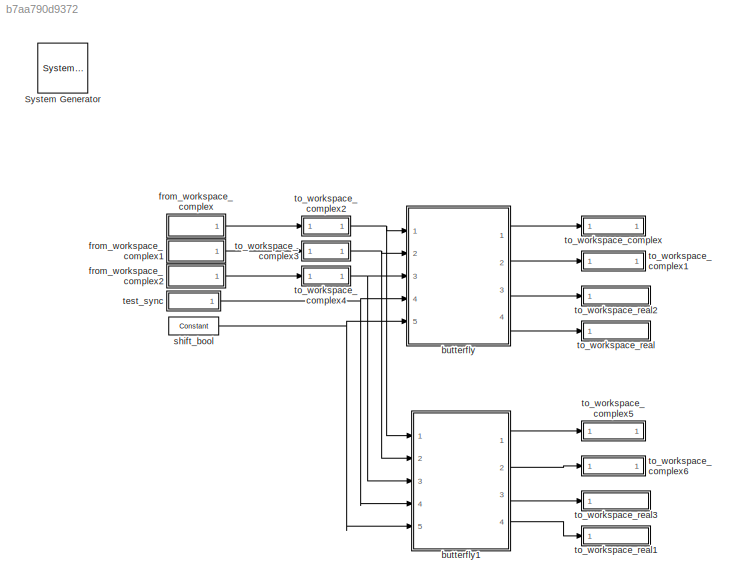
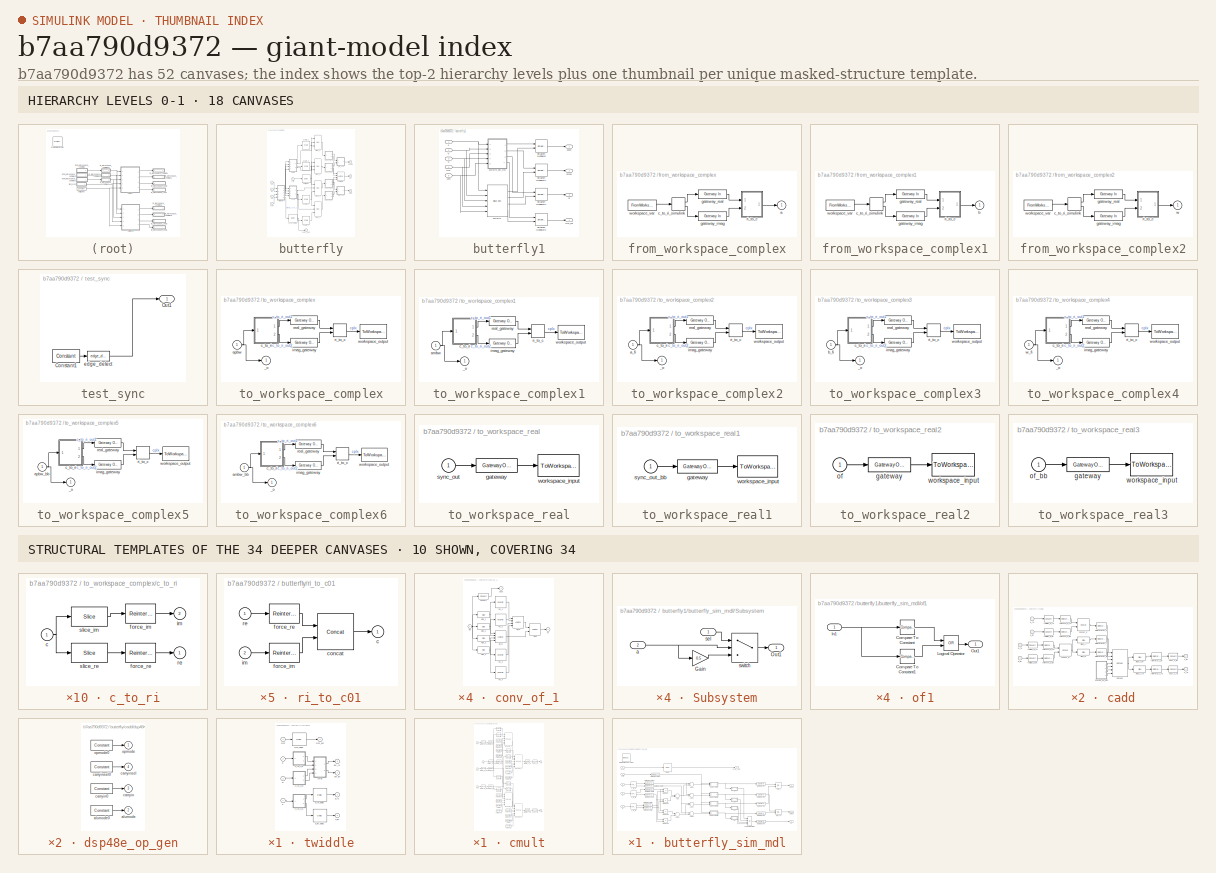
[diagram: thumbnail index - top-2 hierarchy levels (18 canvases) + 10 structural-template representatives of the remaining 34 canvases]
MODEL slx_b7aa790d9372
KIND model
BLOCK [Reference]  System Generator  REF=xbsIndex_r4/ System Generator
  AttributesFormatString = System\nGenerator
  Impl_file = ISE Defaults
  Ports = []
  SourceBlock = xbsIndex_r4/ System Generator
  SourceType = Xilinx System Generator Block
  Synth_file = XST Defaults
  Tag = genX
  UserDataPersistent = on
  block_type = sysgen
  clock_wrapper = Clock Enables
  core_generation = According to Block Masks
  dbl_ovrd = According to Block Masks
  dcm_input_clock_period = 10
  deprecated_control = off
  directory = ./netlist
  eval_field = 0
  has_advanced_control = 0
  incr_netlist = off
  infoedit = System Generator
  package = fbg676
  part = xc7k325t
  proj_type = Project Navigator
  run_coregen = off
  sg_icon_stat = 50,50,0,0,token,white,0,58c5b5770fe5f7c311f53dbc6e73f0f6,right,,[ ],[ ]
  sg_mask_display = fprintf('','COMMENT: begin icon graphics');\npatch([0 50 50 0 0 ],[0 0 50 50 0 ],[1 1 1 ]);\npatch([1.6375 16.81 27.31 37.81 48.31 27.31 12.1375 1.6375 ],[36.655 36.655 47.155 36.655 47.155 47.155 47.155 36.655 ],[0.933333 0.203922 0.141176 ]);\npatch([12.1375 27.31 16.81 1.6375 12.1375 ],[26.155 26.155 36.655 36.655 26.155 ],[0.698039 0.0313725 0.219608 ]);\npatch([1.6375 16.81 27.31 12.1375 1.6375 ]...<+327ch>
  sggui_pos = -1,-1,-1,-1
  simulink_period = 1
  speed = -3
  synthesis_tool = XST
  sysclk_period = 10
  testbench = off
  trim_vbits = Everywhere in SubSystem
  xilinxfamily = Kintex7
BLOCK [SubSystem] butterfly
  AttributesFormatString = twiddle_general_dsp48e\ncoeffs in slices\nBit growth:0
  FunctionWithSeparateData = off
  MaskHideContents = off
  MinAlgLoopOccurrences = off
  Opaque = off
  Ports = [5, 4]
  PropExecContextOutsideSubsystem = off
  RTWSystemCode = Auto
  RequestExecContextInheritance = off
BLOCK [Reference] butterfly/Logical  REF=xbsIndex_r4/Logical
  Ports = [4, 1]
  SourceBlock = xbsIndex_r4/Logical
  SourceType = Xilinx Logical Block Block
  align_bp = on
  arith_type = Unsigned
  bin_pt = 0
  block_type = logical
  dbl_ovrd = off
  en = off
  has_advanced_control = 0
  inputs = 4
  latency = 0
  logical_function = OR
  n_bits = 16
  precision = Full
  sg_icon_stat = 50,63,4,1,white,blue,0,4f3eee2e,right,,[ ],[ ]
  sg_mask_display = fprintf('','COMMENT: begin icon graphics');\npatch([0 50 50 0 0 ],[0 0 63 63 0 ],[0.77 0.82 0.91 ]);\nplot([0 50 50 0 0 ],[0 0 63 63 0 ]);\npatch([9.425 19.54 26.54 33.54 40.54 26.54 16.425 9.425 ],[38.77 38.77 45.77 38.77 45.77 45.77 45.77 38.77 ],[1 1 1 ]);\npatch([16.425 26.54 19.54 9.425 16.425 ],[31.77 31.77 38.77 38.77 31.77 ],[0.931 0.946 0.973 ]);\npatch([9.425 19.54 26.54 16.425 9.425 ],[24.77...<+310ch>
  sggui_pos = -1,-1,-1,-1
  xl_area = [0,0,0,0,0,0,0]
  xl_use_area = off
BLOCK [Inport] butterfly/a
  IconDisplay = Port number
BLOCK [Outport] butterfly/a+bw
  IconDisplay = Port number
BLOCK [Outport] butterfly/a-bw
  IconDisplay = Port number
  Port = 2
BLOCK [Inport] butterfly/b
  IconDisplay = Port number
  Port = 2
BLOCK [SubSystem] butterfly/cadd
  FunctionWithSeparateData = off
  MaskHideContents = off
  MinAlgLoopOccurrences = off
  Opaque = off
  Ports = [4, 2]
  PropExecContextOutsideSubsystem = off
  RTWSystemCode = Auto
  RequestExecContextInheritance = off
BLOCK [Reference] butterfly/cadd/DSP48E  REF=xbsIndex_r4/DSP48E
  Ports = [7, 1]
  SourceBlock = xbsIndex_r4/DSP48E
  SourceType = Xilinx DSP48E Block
  addsub_mode = ONE48
  block_type = dsp48e
  en_a1 = off
  en_a2 = off
  en_all = off
  en_alumode = off
  en_b1 = off
  en_b2 = off
  en_c = off
  en_carry_in = off
  en_ctrl = off
  en_mult = off
  en_multcarryin = off
  en_p = off
  has_advanced_control = 0
  mask_from_creg = on
  pattern = '000000000000'
  pattern_from_creg = on
  pattern_mask = '000000000000'
  pipeline_a = 1
  pipeline_acout = 1
  pipeline_alumode = on
  pipeline_b = 1
  pipeline_bcout = 1
  pipeline_c = on
  pipeline_carryin = on
  pipeline_carryinsel = on
  pipeline_mult = on
  pipeline_opmode = on
  pipeline_p = on
  reset_preg = off
  rst_a = off
  rst_all = off
  rst_alumode = off
  rst_b = off
  rst_c = off
  rst_carry_in = off
  rst_ctrl = off
  rst_mult = off
  rst_p = off
  sel_rounding_mask = Select mask
  sg_icon_stat = 75,136,7,1,white,blue,0,51584ea8,right,,[ ],[ ]
  sg_mask_display = fprintf('','COMMENT: begin icon graphics');\npatch([0 75 75 0 0 ],[0 0 136 136 0 ],[0.77 0.82 0.91 ]);\nplot([0 75 75 0 0 ],[0 0 136 136 0 ]);\npatch([14.75 29.2 39.2 49.2 59.2 39.2 24.75 14.75 ],[79.1 79.1 89.1 79.1 89.1 89.1 89.1 79.1 ],[1 1 1 ]);\npatch([24.75 39.2 29.2 14.75 24.75 ],[69.1 69.1 79.1 79.1 69.1 ],[0.931 0.946 0.973 ]);\npatch([14.75 29.2 39.2 24.75 14.75 ],[59.1 59.1 69.1 69.1 59.1 ],...<+601ch>
  sggui_pos = -1,-1,-1,-1
  use_a = Direct from A Port
  use_acout = off
  use_b = Direct from B Port
  use_bcout = off
  use_carrycascin = off
  use_carrycascout = off
  use_carryout = off
  use_creg = on
  use_multsignin = off
  use_multsignout = off
  use_op = off
  use_overflow = off
  use_patternbdetect = off
  use_patterndetect = off
  use_pcin = off
  use_pcout = off
  use_synth_model = off
  use_underflow = off
  xl_area = [0,0,0,0,0,0,0]
  xl_use_area = off
  xl_useadderonly = off
BLOCK [Reference] butterfly/cadd/Reinterpret_A  REF=xbsIndex_r4/Reinterpret
  Ports = [1, 1]
  SourceBlock = xbsIndex_r4/Reinterpret
  SourceType = Xilinx Type Reinterpreter Block
  arith_type = Signed  (2's comp)
  bin_pt = 0
  block_type = reinterpret
  force_arith_type = on
  force_bin_pt = on
  has_advanced_control = 0
  infoedit = Changes signal type without altering the binary representation.   You can change the signal between signed and unsigned, and relocate the binary point.<br><br>Hardware notes: In hardware this block costs nothing.<br><br>Example:  Suppose the input is 6 bits wide, signed, with 2 fractional bits, and the output is forced to unsigned with 0 fractional bits.  Then an input of -2.0 (1110.00 in binary 2...<+58ch>  <repeated x54 — deduplicated; at blocks: Reinterpret_A, Reinterpret_B, Reinterpret_C, reinterp_a_im, reinterp_a_re, reinterp_b_im, reinterp_b_re, reinterp_c_im, reinterp_c_re, force_im, force_re>
  sg_icon_stat = 50,32,1,1,white,blue,0,6b04d0b0,right,,[ ],[ ]
  sg_mask_display = fprintf('','COMMENT: begin icon graphics');\npatch([0 50 50 0 0 ],[0 0 32 32 0 ],[0.77 0.82 0.91 ]);\nplot([0 50 50 0 0 ],[0 0 32 32 0 ]);\npatch([16.1 21.88 25.88 29.88 33.88 25.88 20.1 16.1 ],[20.44 20.44 24.44 20.44 24.44 24.44 24.44 20.44 ],[1 1 1 ]);\npatch([20.1 25.88 21.88 16.1 20.1 ],[16.44 16.44 20.44 20.44 16.44 ],[0.931 0.946 0.973 ]);\npatch([16.1 21.88 25.88 20.1 16.1 ],[12.44 12.44 16.44 ...<+294ch>  <repeated x54 — deduplicated; at blocks: Reinterpret_A, Reinterpret_B, Reinterpret_C, reinterp_a_im, reinterp_a_re, reinterp_b_im, reinterp_b_re, reinterp_c_im, reinterp_c_re, force_im, force_re>
  sggui_pos = -1,-1,-1,-1
BLOCK [Reference] butterfly/cadd/Reinterpret_B  REF=xbsIndex_r4/Reinterpret
  Ports = [1, 1]
  SourceBlock = xbsIndex_r4/Reinterpret
  SourceType = Xilinx Type Reinterpreter Block
  arith_type = Signed  (2's comp)
  bin_pt = 0
  block_type = reinterpret
  force_arith_type = on
  force_bin_pt = on
  has_advanced_control = 0
  sg_icon_stat = 50,32,1,1,white,blue,0,6b04d0b0,right,,[ ],[ ]
  sggui_pos = -1,-1,-1,-1
BLOCK [Reference] butterfly/cadd/Reinterpret_C  REF=xbsIndex_r4/Reinterpret
  Ports = [1, 1]
  SourceBlock = xbsIndex_r4/Reinterpret
  SourceType = Xilinx Type Reinterpreter Block
  arith_type = Signed  (2's comp)
  bin_pt = 0
  block_type = reinterpret
  force_arith_type = on
  force_bin_pt = on
  has_advanced_control = 0
  sg_icon_stat = 50,32,1,1,white,blue,0,6b04d0b0,right,,[ ],[ ]
  sggui_pos = -1,-1,-1,-1
BLOCK [Reference] butterfly/cadd/Slice_A  REF=xbsIndex_r4/Slice
  Ports = [1, 1]
  SourceBlock = xbsIndex_r4/Slice
  SourceType = Xilinx Bit Slice Extractor Block
  base0 = LSB of Input
  base1 = MSB of Input
  bit0 = 0
  bit1 = 0
  block_type = slice
  boolean_output = off
  dbl_ovrd = off
  has_advanced_control = 0
  infoedit = Extracts a given range of bits from each input sample and presents it at the output.  The output type is ordinarily unsigned with binary point at zero, but can be Boolean when the slice is one bit wide.<br><br>Hardware notes: In hardware this block costs nothing.  <repeated x44 — deduplicated; at blocks: Slice_A, Slice_B, slice_c_im, slice_c_re, slice_1, slice_2, slice_3, slice_4, slice_im, slice_re>
  mode = Upper Bit Location + Width
  nbits = 30
  sg_icon_stat = 60,30,1,1,white,blue,0,1fd851a7,right,,[ ],[ ]
  sg_mask_display = fprintf('','COMMENT: begin icon graphics');\npatch([0 60 60 0 0 ],[0 0 30 30 0 ],[0.77 0.82 0.91 ]);\nplot([0 60 60 0 0 ],[0 0 30 30 0 ]);\npatch([21.1 26.88 30.88 34.88 38.88 30.88 25.1 21.1 ],[19.44 19.44 23.44 19.44 23.44 23.44 23.44 19.44 ],[1 1 1 ]);\npatch([25.1 30.88 26.88 21.1 25.1 ],[15.44 15.44 19.44 19.44 15.44 ],[0.931 0.946 0.973 ]);\npatch([21.1 26.88 30.88 25.1 21.1 ],[11.44 11.44 15.44 ...<+304ch>  <repeated x14 — deduplicated; at blocks: Slice_A, Slice_B, slice_im, slice_re>
  sggui_pos = -1,-1,-1,-1
BLOCK [Reference] butterfly/cadd/Slice_B  REF=xbsIndex_r4/Slice
  Ports = [1, 1]
  SourceBlock = xbsIndex_r4/Slice
  SourceType = Xilinx Bit Slice Extractor Block
  base0 = LSB of Input
  base1 = MSB of Input
  bit0 = 0
  bit1 = 0
  block_type = slice
  boolean_output = off
  dbl_ovrd = off
  has_advanced_control = 0
  mode = Lower Bit Location + Width
  nbits = 18
  sg_icon_stat = 60,30,1,1,white,blue,0,1fd851a7,right,,[ ],[ ]
  sggui_pos = -1,-1,-1,-1
BLOCK [Inport] butterfly/cadd/a_im
  IconDisplay = Port number
  Port = 2
BLOCK [Inport] butterfly/cadd/a_re
  IconDisplay = Port number
BLOCK [Inport] butterfly/cadd/b_im
  IconDisplay = Port number
  Port = 4
BLOCK [Inport] butterfly/cadd/b_re
  IconDisplay = Port number
  Port = 3
BLOCK [Outport] butterfly/cadd/c_im
  IconDisplay = Port number
  Port = 2
BLOCK [Outport] butterfly/cadd/c_re
  IconDisplay = Port number
BLOCK [Reference] butterfly/cadd/cast_c_im  REF=xbsIndex_r4/Convert
  Ports = [1, 1]
  SourceBlock = xbsIndex_r4/Convert
  SourceType = Xilinx Type Converter Block
  arith_type = Signed  (2's comp)
  bin_pt = 19
  block_type = convert
  dbl_ovrd = off
  en = off
  exp_bits = 8
  float_type = Single
  fraction_bits = 24
  gui_display_data_type = Fixed-point
  has_advanced_control = 0
  infoedit = Hardware notes: rounding and saturating require hardware resources; truncating and wrapping do not.
  latency = 0
  n_bits = 23
  overflow = Wrap
  pipeline = on
  quantization = Truncate
  sg_icon_stat = 45,30,1,1,white,blue,0,edca21da,right,,[ ],[ ]
  sg_mask_display = fprintf('','COMMENT: begin icon graphics');\npatch([0 45 45 0 0 ],[0 0 30 30 0 ],[0.77 0.82 0.91 ]);\nplot([0 45 45 0 0 ],[0 0 30 30 0 ]);\npatch([13.1 18.88 22.88 26.88 30.88 22.88 17.1 13.1 ],[19.44 19.44 23.44 19.44 23.44 23.44 23.44 19.44 ],[1 1 1 ]);\npatch([17.1 22.88 18.88 13.1 17.1 ],[15.44 15.44 19.44 19.44 15.44 ],[0.931 0.946 0.973 ]);\npatch([13.1 18.88 22.88 17.1 13.1 ],[11.44 11.44 15.44 ...<+303ch>  <repeated x7 — deduplicated; at blocks: cast_c_im, realign_b_re, Convert1, Convert6, Convert7>
  sggui_pos = -1,-1,-1,-1
  xl_area = [0,0,0,0,0,0,0]
  xl_use_area = off
BLOCK [Reference] butterfly/cadd/cast_c_re  REF=xbsIndex_r4/Convert
  Ports = [1, 1]
  SourceBlock = xbsIndex_r4/Convert
  SourceType = Xilinx Type Converter Block
  arith_type = Signed  (2's comp)
  bin_pt = 19
  block_type = convert
  dbl_ovrd = off
  en = off
  exp_bits = 8
  float_type = Single
  fraction_bits = 24
  gui_display_data_type = Fixed-point
  has_advanced_control = 0
  infoedit = Hardware notes: rounding and saturating require hardware resources; truncating and wrapping do not.
  latency = 0
  n_bits = 23
  overflow = Wrap
  pipeline = on
  quantization = Truncate
  sg_icon_stat = 45,32,1,1,white,blue,0,edca21da,right,,[ ],[ ]
  sg_mask_display = fprintf('','COMMENT: begin icon graphics');\npatch([0 45 45 0 0 ],[0 0 32 32 0 ],[0.77 0.82 0.91 ]);\nplot([0 45 45 0 0 ],[0 0 32 32 0 ]);\npatch([13.1 18.88 22.88 26.88 30.88 22.88 17.1 13.1 ],[20.44 20.44 24.44 20.44 24.44 24.44 24.44 20.44 ],[1 1 1 ]);\npatch([17.1 22.88 18.88 13.1 17.1 ],[16.44 16.44 20.44 20.44 16.44 ],[0.931 0.946 0.973 ]);\npatch([13.1 18.88 22.88 17.1 13.1 ],[12.44 12.44 16.44 ...<+303ch>  <repeated x17 — deduplicated; at blocks: cast_c_re, realign_a_im, realign_a_re, realign_b_im, Convert, Convert2, Convert3, Convert4, Convert5, realign_b_re>
  sggui_pos = -1,-1,-1,-1
  xl_area = [0,0,0,0,0,0,0]
  xl_use_area = off
BLOCK [Reference] butterfly/cadd/concat_a  REF=xbsIndex_r4/Concat
  Ports = [2, 1]
  SourceBlock = xbsIndex_r4/Concat
  SourceType = Xilinx Bus Concatenator Block
  block_type = concat
  dbl_ovrd = off
  has_advanced_control = 0
  infoedit = Concatenates two or more inputs.  Output will be cast to an unsigned value with the binary point at zero.
  num_inputs = 2
  sg_icon_stat = 60,60,2,1,white,blue,0,16398980,right,,[ ],[ ]
  sg_mask_display = fprintf('','COMMENT: begin icon graphics');\npatch([0 60 60 0 0 ],[0 0 60 60 0 ],[0.77 0.82 0.91 ]);\nplot([0 60 60 0 0 ],[0 0 60 60 0 ]);\npatch([12.2 23.76 31.76 39.76 47.76 31.76 20.2 12.2 ],[38.88 38.88 46.88 38.88 46.88 46.88 46.88 38.88 ],[1 1 1 ]);\npatch([20.2 31.76 23.76 12.2 20.2 ],[30.88 30.88 38.88 38.88 30.88 ],[0.931 0.946 0.973 ]);\npatch([12.2 23.76 31.76 20.2 12.2 ],[22.88 22.88 30.88 ...<+402ch>  <repeated x9 — deduplicated; at blocks: concat_a, concat_b, concat>
  sggui_pos = -1,-1,-1,-1
BLOCK [Reference] butterfly/cadd/concat_b  REF=xbsIndex_r4/Concat
  Ports = [2, 1]
  SourceBlock = xbsIndex_r4/Concat
  SourceType = Xilinx Bus Concatenator Block
  block_type = concat
  dbl_ovrd = off
  has_advanced_control = 0
  infoedit = Concatenates two or more inputs.  Output will be cast to an unsigned value with the binary point at zero.
  num_inputs = 2
  sg_icon_stat = 60,60,2,1,white,blue,0,16398980,right,,[ ],[ ]
  sggui_pos = -1,-1,-1,-1
BLOCK [SubSystem] butterfly/cadd/dsp48e_op_gen
  FunctionWithSeparateData = off
  MaskHideContents = off
  MinAlgLoopOccurrences = off
  Opaque = off
  Ports = [0, 4]
  PropExecContextOutsideSubsystem = off
  RTWSystemCode = Auto
  RequestExecContextInheritance = off
BLOCK [Outport] butterfly/cadd/dsp48e_op_gen/alumode
  IconDisplay = Port number
  Port = 2
BLOCK [Reference] butterfly/cadd/dsp48e_op_gen/alumode0  REF=xbsIndex_r4/Constant
  Ports = [0, 1]
  SourceBlock = xbsIndex_r4/Constant
  SourceType = Xilinx Constant Block Block
  arith_type = Unsigned
  bin_pt = 0
  block_type = constant
  carry = CIN
  const = 0
  dbl_ovrd = off
  dsp48_infoedit = The use of this block for DSP48 instructions is deprecated.  Please use the Opmode block.
  equ = P=C
  exp_width = 8
  explicit_period = off
  frac_width = 24
  gui_display_data_type = Fixed-point
  has_advanced_control = 0
  inp1 = P
  inp2 = PCIN>>17
  n_bits = 4
  opr = +
  opselect = C
  period = 1
  preci_type = Single
  sg_icon_stat = 55,26,0,1,white,blue,0,bf4ddd8b,right,,[ ],[ ]
  sg_mask_display = fprintf('','COMMENT: begin icon graphics');\npatch([0 55 55 0 0 ],[0 0 26 26 0 ],[0.77 0.82 0.91 ]);\nplot([0 55 55 0 0 ],[0 0 26 26 0 ]);\npatch([20.325 24.66 27.66 30.66 33.66 27.66 23.325 20.325 ],[16.33 16.33 19.33 16.33 19.33 19.33 19.33 16.33 ],[1 1 1 ]);\npatch([23.325 27.66 24.66 20.325 23.325 ],[13.33 13.33 16.33 16.33 13.33 ],[0.931 0.946 0.973 ]);\npatch([20.325 24.66 27.66 23.325 20.325 ],[...<+323ch>  <repeated x21 — deduplicated; at blocks: alumode0, carryin0, carryinsel0, alumode1, alumode2, alumode3, carryin1, carryin2, carryin3, carryinsel1, carryinsel2, carryinsel3, opmode0, opmode2, Constant1>
  sggui_pos = -1,-1,-1,-1
BLOCK [Outport] butterfly/cadd/dsp48e_op_gen/carryin
  IconDisplay = Port number
  Port = 3
BLOCK [Reference] butterfly/cadd/dsp48e_op_gen/carryin0  REF=xbsIndex_r4/Constant
  Ports = [0, 1]
  SourceBlock = xbsIndex_r4/Constant
  SourceType = Xilinx Constant Block Block
  arith_type = Unsigned
  bin_pt = 0
  block_type = constant
  carry = CIN
  const = 0
  dbl_ovrd = off
  dsp48_infoedit = The use of this block for DSP48 instructions is deprecated.  Please use the Opmode block.
  equ = P=C
  exp_width = 8
  explicit_period = off
  frac_width = 24
  gui_display_data_type = Fixed-point
  has_advanced_control = 0
  inp1 = P
  inp2 = PCIN>>17
  n_bits = 1
  opr = +
  opselect = C
  period = 1
  preci_type = Single
  sg_icon_stat = 55,26,0,1,white,blue,0,bf4ddd8b,right,,[ ],[ ]
  sggui_pos = -1,-1,-1,-1
BLOCK [Outport] butterfly/cadd/dsp48e_op_gen/carryinsel
  IconDisplay = Port number
  Port = 4
BLOCK [Reference] butterfly/cadd/dsp48e_op_gen/carryinsel0  REF=xbsIndex_r4/Constant
  Ports = [0, 1]
  SourceBlock = xbsIndex_r4/Constant
  SourceType = Xilinx Constant Block Block
  arith_type = Unsigned
  bin_pt = 0
  block_type = constant
  carry = CIN
  const = 0
  dbl_ovrd = off
  dsp48_infoedit = The use of this block for DSP48 instructions is deprecated.  Please use the Opmode block.
  equ = P=C
  exp_width = 8
  explicit_period = off
  frac_width = 24
  gui_display_data_type = Fixed-point
  has_advanced_control = 0
  inp1 = P
  inp2 = PCIN>>17
  n_bits = 3
  opr = +
  opselect = C
  period = 1
  preci_type = Single
  sg_icon_stat = 55,26,0,1,white,blue,0,bf4ddd8b,right,,[ ],[ ]
  sggui_pos = -1,-1,-1,-1
BLOCK [Outport] butterfly/cadd/dsp48e_op_gen/opmode
  IconDisplay = Port number
BLOCK [Reference] butterfly/cadd/dsp48e_op_gen/opmode0  REF=xbsIndex_r4/Constant
  Ports = [0, 1]
  SourceBlock = xbsIndex_r4/Constant
  SourceType = Xilinx Constant Block Block
  arith_type = Unsigned
  bin_pt = 0
  block_type = constant
  carry = CIN
  const = 51
  dbl_ovrd = off
  dsp48_infoedit = The use of this block for DSP48 instructions is deprecated.  Please use the Opmode block.
  equ = P=C
  exp_width = 8
  explicit_period = off
  frac_width = 24
  gui_display_data_type = Fixed-point
  has_advanced_control = 0
  inp1 = P
  inp2 = PCIN>>17
  n_bits = 7
  opr = +
  opselect = C
  period = 1
  preci_type = Single
  sg_icon_stat = 55,26,0,1,white,blue,0,b654bd3a,right,,[ ],[ ]
  sg_mask_display = fprintf('','COMMENT: begin icon graphics');\npatch([0 55 55 0 0 ],[0 0 26 26 0 ],[0.77 0.82 0.91 ]);\nplot([0 55 55 0 0 ],[0 0 26 26 0 ]);\npatch([20.325 24.66 27.66 30.66 33.66 27.66 23.325 20.325 ],[16.33 16.33 19.33 16.33 19.33 19.33 19.33 16.33 ],[1 1 1 ]);\npatch([23.325 27.66 24.66 20.325 23.325 ],[13.33 13.33 16.33 16.33 13.33 ],[0.931 0.946 0.973 ]);\npatch([20.325 24.66 27.66 23.325 20.325 ],[...<+324ch>  <repeated x4 — deduplicated; at blocks: opmode0, opmode1, opmode3>
  sggui_pos = -1,-1,-1,-1
BLOCK [Reference] butterfly/cadd/realign_a_im  REF=xbsIndex_r4/Convert
  Ports = [1, 1]
  SourceBlock = xbsIndex_r4/Convert
  SourceType = Xilinx Type Converter Block
  arith_type = Signed  (2's comp)
  bin_pt = 19
  block_type = convert
  dbl_ovrd = off
  en = off
  exp_bits = 8
  float_type = Single
  fraction_bits = 24
  gui_display_data_type = Fixed-point
  has_advanced_control = 0
  infoedit = Hardware notes: rounding and saturating require hardware resources; truncating and wrapping do not.
  latency = 0
  n_bits = 24
  overflow = Wrap
  pipeline = on
  quantization = Truncate
  sg_icon_stat = 45,32,1,1,white,blue,0,edca21da,right,,[ ],[ ]
  sggui_pos = -1,-1,-1,-1
  xl_area = [0,0,0,0,0,0,0]
  xl_use_area = off
BLOCK [Reference] butterfly/cadd/realign_a_re  REF=xbsIndex_r4/Convert
  Ports = [1, 1]
  SourceBlock = xbsIndex_r4/Convert
  SourceType = Xilinx Type Converter Block
  arith_type = Signed  (2's comp)
  bin_pt = 19
  block_type = convert
  dbl_ovrd = off
  en = off
  exp_bits = 8
  float_type = Single
  fraction_bits = 24
  gui_display_data_type = Fixed-point
  has_advanced_control = 0
  infoedit = Hardware notes: rounding and saturating require hardware resources; truncating and wrapping do not.
  latency = 0
  n_bits = 24
  overflow = Wrap
  pipeline = on
  quantization = Truncate
  sg_icon_stat = 45,32,1,1,white,blue,0,edca21da,right,,[ ],[ ]
  sggui_pos = -1,-1,-1,-1
  xl_area = [0,0,0,0,0,0,0]
  xl_use_area = off
BLOCK [Reference] butterfly/cadd/realign_b_im  REF=xbsIndex_r4/Convert
  Ports = [1, 1]
  SourceBlock = xbsIndex_r4/Convert
  SourceType = Xilinx Type Converter Block
  arith_type = Signed  (2's comp)
  bin_pt = 19
  block_type = convert
  dbl_ovrd = off
  en = off
  exp_bits = 8
  float_type = Single
  fraction_bits = 24
  gui_display_data_type = Fixed-point
  has_advanced_control = 0
  infoedit = Hardware notes: rounding and saturating require hardware resources; truncating and wrapping do not.
  latency = 0
  n_bits = 24
  overflow = Wrap
  pipeline = on
  quantization = Truncate
  sg_icon_stat = 45,32,1,1,white,blue,0,edca21da,right,,[ ],[ ]
  sggui_pos = -1,-1,-1,-1
  xl_area = [0,0,0,0,0,0,0]
  xl_use_area = off
BLOCK [Reference] butterfly/cadd/realign_b_re  REF=xbsIndex_r4/Convert
  Ports = [1, 1]
  SourceBlock = xbsIndex_r4/Convert
  SourceType = Xilinx Type Converter Block
  arith_type = Signed  (2's comp)
  bin_pt = 19
  block_type = convert
  dbl_ovrd = off
  en = off
  exp_bits = 8
  float_type = Single
  fraction_bits = 24
  gui_display_data_type = Fixed-point
  has_advanced_control = 0
  infoedit = Hardware notes: rounding and saturating require hardware resources; truncating and wrapping do not.
  latency = 0
  n_bits = 24
  overflow = Wrap
  pipeline = on
  quantization = Truncate
  sg_icon_stat = 45,30,1,1,white,blue,0,edca21da,right,,[ ],[ ]
  sggui_pos = -1,-1,-1,-1
  xl_area = [0,0,0,0,0,0,0]
  xl_use_area = off
BLOCK [Reference] butterfly/cadd/reinterp_a_im  REF=xbsIndex_r4/Reinterpret
  Ports = [1, 1]
  SourceBlock = xbsIndex_r4/Reinterpret
  SourceType = Xilinx Type Reinterpreter Block
  arith_type = Unsigned
  bin_pt = 0
  block_type = reinterpret
  force_arith_type = on
  force_bin_pt = on
  has_advanced_control = 0
  sg_icon_stat = 50,32,1,1,white,blue,0,6b04d0b0,right,,[ ],[ ]
  sggui_pos = -1,-1,-1,-1
BLOCK [Reference] butterfly/cadd/reinterp_a_re  REF=xbsIndex_r4/Reinterpret
  Ports = [1, 1]
  SourceBlock = xbsIndex_r4/Reinterpret
  SourceType = Xilinx Type Reinterpreter Block
  arith_type = Unsigned
  bin_pt = 0
  block_type = reinterpret
  force_arith_type = on
  force_bin_pt = on
  has_advanced_control = 0
  sg_icon_stat = 50,32,1,1,white,blue,0,6b04d0b0,right,,[ ],[ ]
  sggui_pos = -1,-1,-1,-1
BLOCK [Reference] butterfly/cadd/reinterp_b_im  REF=xbsIndex_r4/Reinterpret
  Ports = [1, 1]
  SourceBlock = xbsIndex_r4/Reinterpret
  SourceType = Xilinx Type Reinterpreter Block
  arith_type = Unsigned
  bin_pt = 0
  block_type = reinterpret
  force_arith_type = on
  force_bin_pt = on
  has_advanced_control = 0
  sg_icon_stat = 50,32,1,1,white,blue,0,6b04d0b0,right,,[ ],[ ]
  sggui_pos = -1,-1,-1,-1
BLOCK [Reference] butterfly/cadd/reinterp_b_re  REF=xbsIndex_r4/Reinterpret
  Ports = [1, 1]
  SourceBlock = xbsIndex_r4/Reinterpret
  SourceType = Xilinx Type Reinterpreter Block
  arith_type = Unsigned
  bin_pt = 0
  block_type = reinterpret
  force_arith_type = on
  force_bin_pt = on
  has_advanced_control = 0
  sg_icon_stat = 50,32,1,1,white,blue,0,6b04d0b0,right,,[ ],[ ]
  sggui_pos = -1,-1,-1,-1
BLOCK [Reference] butterfly/cadd/reinterp_c_im  REF=xbsIndex_r4/Reinterpret
  Ports = [1, 1]
  SourceBlock = xbsIndex_r4/Reinterpret
  SourceType = Xilinx Type Reinterpreter Block
  arith_type = Signed  (2's comp)
  bin_pt = 19
  block_type = reinterpret
  force_arith_type = on
  force_bin_pt = on
  has_advanced_control = 0
  sg_icon_stat = 50,32,1,1,white,blue,0,6b04d0b0,right,,[ ],[ ]
  sggui_pos = -1,-1,-1,-1
BLOCK [Reference] butterfly/cadd/reinterp_c_re  REF=xbsIndex_r4/Reinterpret
  Ports = [1, 1]
  SourceBlock = xbsIndex_r4/Reinterpret
  SourceType = Xilinx Type Reinterpreter Block
  arith_type = Signed  (2's comp)
  bin_pt = 19
  block_type = reinterpret
  force_arith_type = on
  force_bin_pt = on
  has_advanced_control = 0
  sg_icon_stat = 50,32,1,1,white,blue,0,6b04d0b0,right,,[ ],[ ]
  sggui_pos = -1,-1,-1,-1
BLOCK [Reference] butterfly/cadd/slice_c_im  REF=xbsIndex_r4/Slice
  Ports = [1, 1]
  SourceBlock = xbsIndex_r4/Slice
  SourceType = Xilinx Bit Slice Extractor Block
  base0 = LSB of Input
  base1 = MSB of Input
  bit0 = 0
  bit1 = 0
  block_type = slice
  boolean_output = off
  dbl_ovrd = off
  has_advanced_control = 0
  mode = Lower Bit Location + Width
  nbits = 24
  sg_icon_stat = 60,32,1,1,white,blue,0,1fd851a7,right,,[ ],[ ]
  sg_mask_display = fprintf('','COMMENT: begin icon graphics');\npatch([0 60 60 0 0 ],[0 0 32 32 0 ],[0.77 0.82 0.91 ]);\nplot([0 60 60 0 0 ],[0 0 32 32 0 ]);\npatch([21.1 26.88 30.88 34.88 38.88 30.88 25.1 21.1 ],[20.44 20.44 24.44 20.44 24.44 24.44 24.44 20.44 ],[1 1 1 ]);\npatch([25.1 30.88 26.88 21.1 25.1 ],[16.44 16.44 20.44 20.44 16.44 ],[0.931 0.946 0.973 ]);\npatch([21.1 26.88 30.88 25.1 21.1 ],[12.44 12.44 16.44 ...<+304ch>  <repeated x30 — deduplicated; at blocks: slice_c_im, slice_c_re, slice_1, slice_2, slice_3, slice_4, slice_im, slice_re>
  sggui_pos = -1,-1,-1,-1
BLOCK [Reference] butterfly/cadd/slice_c_re  REF=xbsIndex_r4/Slice
  Ports = [1, 1]
  SourceBlock = xbsIndex_r4/Slice
  SourceType = Xilinx Bit Slice Extractor Block
  base0 = LSB of Input
  base1 = MSB of Input
  bit0 = 24
  bit1 = 0
  block_type = slice
  boolean_output = off
  dbl_ovrd = off
  has_advanced_control = 0
  mode = Lower Bit Location + Width
  nbits = 24
  sg_icon_stat = 60,32,1,1,white,blue,0,1fd851a7,right,,[ ],[ ]
  sggui_pos = -1,-1,-1,-1
BLOCK [SubSystem] butterfly/conv_of_1
  AttributesFormatString = [24,20]->[18,17]
  FunctionWithSeparateData = off
  MaskHideContents = off
  MinAlgLoopOccurrences = off
  Opaque = off
  Ports = [1, 2]
  PropExecContextOutsideSubsystem = off
  RTWSystemCode = Auto
  RequestExecContextInheritance = off
BLOCK [Reference] butterfly/conv_of_1/all_0s  REF=xbsIndex_r4/Logical
  Ports = [4, 1]
  SourceBlock = xbsIndex_r4/Logical
  SourceType = Xilinx Logical Block Block
  align_bp = on
  arith_type = Unsigned
  bin_pt = 0
  block_type = logical
  dbl_ovrd = off
  en = off
  has_advanced_control = 0
  inputs = 4
  latency = 1
  logical_function = NAND
  n_bits = 16
  precision = Full
  sg_icon_stat = 55,61,4,1,white,blue,0,179a3c8b,right,,[ ],[ ]
  sg_mask_display = fprintf('','COMMENT: begin icon graphics');\npatch([0 55 55 0 0 ],[0 0 61 61 0 ],[0.77 0.82 0.91 ]);\nplot([0 55 55 0 0 ],[0 0 61 61 0 ]);\npatch([11.425 21.54 28.54 35.54 42.54 28.54 18.425 11.425 ],[37.77 37.77 44.77 37.77 44.77 44.77 44.77 37.77 ],[1 1 1 ]);\npatch([18.425 28.54 21.54 11.425 18.425 ],[30.77 30.77 37.77 37.77 30.77 ],[0.931 0.946 0.973 ]);\npatch([11.425 21.54 28.54 18.425 11.425 ],[...<+376ch>  <repeated x8 — deduplicated; at blocks: all_0s, all_1s>
  sggui_pos = -1,-1,-1,-1
  xl_area = [0,0,0,0,0,0,0]
  xl_use_area = off
BLOCK [Reference] butterfly/conv_of_1/all_1s  REF=xbsIndex_r4/Logical
  Ports = [4, 1]
  SourceBlock = xbsIndex_r4/Logical
  SourceType = Xilinx Logical Block Block
  align_bp = on
  arith_type = Unsigned
  bin_pt = 0
  block_type = logical
  dbl_ovrd = off
  en = off
  has_advanced_control = 0
  inputs = 4
  latency = 1
  logical_function = NAND
  n_bits = 16
  precision = Full
  sg_icon_stat = 55,61,4,1,white,blue,0,179a3c8b,right,,[ ],[ ]
  sggui_pos = -1,-1,-1,-1
  xl_area = [0,0,0,0,0,0,0]
  xl_use_area = off
BLOCK [Reference] butterfly/conv_of_1/and  REF=xbsIndex_r4/Logical
  Ports = [2, 1]
  SourceBlock = xbsIndex_r4/Logical
  SourceType = Xilinx Logical Block Block
  align_bp = on
  arith_type = Unsigned
  bin_pt = 0
  block_type = logical
  dbl_ovrd = off
  en = off
  has_advanced_control = 0
  inputs = 2
  latency = 0
  logical_function = AND
  n_bits = 16
  precision = Full
  sg_icon_stat = 55,60,2,1,white,blue,0,83a4b621,right,,[ ],[ ]
  sg_mask_display = fprintf('','COMMENT: begin icon graphics');\npatch([0 55 55 0 0 ],[0 0 60 60 0 ],[0.77 0.82 0.91 ]);\nplot([0 55 55 0 0 ],[0 0 60 60 0 ]);\npatch([11.425 21.54 28.54 35.54 42.54 28.54 18.425 11.425 ],[37.77 37.77 44.77 37.77 44.77 44.77 44.77 37.77 ],[1 1 1 ]);\npatch([18.425 28.54 21.54 11.425 18.425 ],[30.77 30.77 37.77 37.77 30.77 ],[0.931 0.946 0.973 ]);\npatch([11.425 21.54 28.54 18.425 11.425 ],[...<+315ch>  <repeated x4 — deduplicated; at blocks: and>
  sggui_pos = -1,-1,-1,-1
  xl_area = [0,0,0,0,0,0,0]
  xl_use_area = off
BLOCK [Reference] butterfly/conv_of_1/convert  REF=xbsIndex_r4/Convert
  Ports = [1, 1]
  SourceBlock = xbsIndex_r4/Convert
  SourceType = Xilinx Type Converter Block
  arith_type = Signed  (2's comp)
  bin_pt = 17
  block_type = convert
  dbl_ovrd = off
  en = off
  exp_bits = 8
  float_type = Single
  fraction_bits = 24
  gui_display_data_type = Fixed-point
  has_advanced_control = 0
  infoedit = Hardware notes: rounding and saturating require hardware resources; truncating and wrapping do not.
  latency = 1
  n_bits = 18
  overflow = Saturate
  pipeline = on
  quantization = Round  (unbiased: +/- Inf)
  sg_icon_stat = 50,30,1,1,white,blue,0,0c6bad53,right,,[ ],[ ]
  sg_mask_display = fprintf('','COMMENT: begin icon graphics');\npatch([0 50 50 0 0 ],[0 0 30 30 0 ],[0.77 0.82 0.91 ]);\nplot([0 50 50 0 0 ],[0 0 30 30 0 ]);\npatch([16.1 21.88 25.88 29.88 33.88 25.88 20.1 16.1 ],[19.44 19.44 23.44 19.44 23.44 23.44 23.44 19.44 ],[1 1 1 ]);\npatch([20.1 25.88 21.88 16.1 20.1 ],[15.44 15.44 19.44 19.44 15.44 ],[0.931 0.946 0.973 ]);\npatch([16.1 21.88 25.88 20.1 16.1 ],[11.44 11.44 15.44 ...<+387ch>  <repeated x4 — deduplicated; at blocks: convert>
  sggui_pos = -1,-1,-1,-1
  xl_area = [0,0,0,0,0,0,0]
  xl_use_area = off
BLOCK [Inport] butterfly/conv_of_1/din
  IconDisplay = Port number
BLOCK [Outport] butterfly/conv_of_1/dout
  IconDisplay = Port number
BLOCK [Reference] butterfly/conv_of_1/inv_1  REF=xbsIndex_r4/Inverter
  Ports = [1, 1]
  SourceBlock = xbsIndex_r4/Inverter
  SourceType = Xilinx Inverter Block
  block_type = inv
  dbl_ovrd = off
  en = off
  has_advanced_control = 0
  infoedit = Bitwise logical negation (one's complement) operator.
  latency = 0
  sg_icon_stat = 55,60,1,1,white,blue,0,267846e5,right,,[ ],[ ]
  sg_mask_display = fprintf('','COMMENT: begin icon graphics');\npatch([0 55 55 0 0 ],[0 0 60 60 0 ],[0.77 0.82 0.91 ]);\nplot([0 55 55 0 0 ],[0 0 60 60 0 ]);\npatch([11.425 21.54 28.54 35.54 42.54 28.54 18.425 11.425 ],[37.77 37.77 44.77 37.77 44.77 44.77 44.77 37.77 ],[1 1 1 ]);\npatch([18.425 28.54 21.54 11.425 18.425 ],[30.77 30.77 37.77 37.77 30.77 ],[0.931 0.946 0.973 ]);\npatch([11.425 21.54 28.54 18.425 11.425 ],[...<+314ch>  <repeated x12 — deduplicated; at blocks: inv_1, inv_3, inv_4>
  sggui_pos = -1,-1,-1,-1
  xl_area = [0,0,0,0,0,0,0]
  xl_use_area = off
BLOCK [Reference] butterfly/conv_of_1/inv_2  REF=xbsIndex_r4/Inverter
  Ports = [1, 1]
  SourceBlock = xbsIndex_r4/Inverter
  SourceType = Xilinx Inverter Block
  block_type = inv
  dbl_ovrd = off
  en = off
  has_advanced_control = 0
  infoedit = Bitwise logical negation (one's complement) operator.
  latency = 0
  sg_icon_stat = 55,58,1,1,white,blue,0,267846e5,right,,[ ],[ ]
  sg_mask_display = fprintf('','COMMENT: begin icon graphics');\npatch([0 55 55 0 0 ],[0 0 58 58 0 ],[0.77 0.82 0.91 ]);\nplot([0 55 55 0 0 ],[0 0 58 58 0 ]);\npatch([11.425 21.54 28.54 35.54 42.54 28.54 18.425 11.425 ],[36.77 36.77 43.77 36.77 43.77 43.77 43.77 36.77 ],[1 1 1 ]);\npatch([18.425 28.54 21.54 11.425 18.425 ],[29.77 29.77 36.77 36.77 29.77 ],[0.931 0.946 0.973 ]);\npatch([11.425 21.54 28.54 18.425 11.425 ],[...<+314ch>  <repeated x4 — deduplicated; at blocks: inv_2>
  sggui_pos = -1,-1,-1,-1
  xl_area = [0,0,0,0,0,0,0]
  xl_use_area = off
BLOCK [Reference] butterfly/conv_of_1/inv_3  REF=xbsIndex_r4/Inverter
  Ports = [1, 1]
  SourceBlock = xbsIndex_r4/Inverter
  SourceType = Xilinx Inverter Block
  block_type = inv
  dbl_ovrd = off
  en = off
  has_advanced_control = 0
  infoedit = Bitwise logical negation (one's complement) operator.
  latency = 0
  sg_icon_stat = 55,60,1,1,white,blue,0,267846e5,right,,[ ],[ ]
  sggui_pos = -1,-1,-1,-1
  xl_area = [0,0,0,0,0,0,0]
  xl_use_area = off
BLOCK [Reference] butterfly/conv_of_1/inv_4  REF=xbsIndex_r4/Inverter
  Ports = [1, 1]
  SourceBlock = xbsIndex_r4/Inverter
  SourceType = Xilinx Inverter Block
  block_type = inv
  dbl_ovrd = off
  en = off
  has_advanced_control = 0
  infoedit = Bitwise logical negation (one's complement) operator.
  latency = 0
  sg_icon_stat = 55,60,1,1,white,blue,0,267846e5,right,,[ ],[ ]
  sggui_pos = -1,-1,-1,-1
  xl_area = [0,0,0,0,0,0,0]
  xl_use_area = off
BLOCK [Outport] butterfly/conv_of_1/of
  IconDisplay = Port number
  Port = 2
BLOCK [Reference] butterfly/conv_of_1/slice_1  REF=xbsIndex_r4/Slice
  Ports = [1, 1]
  SourceBlock = xbsIndex_r4/Slice
  SourceType = Xilinx Bit Slice Extractor Block
  base0 = LSB of Input
  base1 = MSB of Input
  bit0 = 0
  bit1 = 0
  block_type = slice
  boolean_output = on
  dbl_ovrd = off
  has_advanced_control = 0
  mode = Upper Bit Location + Width
  nbits = 1
  sg_icon_stat = 60,32,1,1,white,blue,0,1fd851a7,right,,[ ],[ ]
  sggui_pos = -1,-1,-1,-1
BLOCK [Reference] butterfly/conv_of_1/slice_2  REF=xbsIndex_r4/Slice
  Ports = [1, 1]
  SourceBlock = xbsIndex_r4/Slice
  SourceType = Xilinx Bit Slice Extractor Block
  base0 = LSB of Input
  base1 = MSB of Input
  bit0 = 0
  bit1 = -1
  block_type = slice
  boolean_output = on
  dbl_ovrd = off
  has_advanced_control = 0
  mode = Upper Bit Location + Width
  nbits = 1
  sg_icon_stat = 60,32,1,1,white,blue,0,1fd851a7,right,,[ ],[ ]
  sggui_pos = -1,-1,-1,-1
BLOCK [Reference] butterfly/conv_of_1/slice_3  REF=xbsIndex_r4/Slice
  Ports = [1, 1]
  SourceBlock = xbsIndex_r4/Slice
  SourceType = Xilinx Bit Slice Extractor Block
  base0 = LSB of Input
  base1 = MSB of Input
  bit0 = 0
  bit1 = -2
  block_type = slice
  boolean_output = on
  dbl_ovrd = off
  has_advanced_control = 0
  mode = Upper Bit Location + Width
  nbits = 1
  sg_icon_stat = 60,32,1,1,white,blue,0,1fd851a7,right,,[ ],[ ]
  sggui_pos = -1,-1,-1,-1
BLOCK [Reference] butterfly/conv_of_1/slice_4  REF=xbsIndex_r4/Slice
  Ports = [1, 1]
  SourceBlock = xbsIndex_r4/Slice
  SourceType = Xilinx Bit Slice Extractor Block
  base0 = LSB of Input
  base1 = MSB of Input
  bit0 = 0
  bit1 = -3
  block_type = slice
  boolean_output = on
  dbl_ovrd = off
  has_advanced_control = 0
  mode = Upper Bit Location + Width
  nbits = 1
  sg_icon_stat = 60,32,1,1,white,blue,0,1fd851a7,right,,[ ],[ ]
  sggui_pos = -1,-1,-1,-1
BLOCK [SubSystem] butterfly/conv_of_2
  AttributesFormatString = [24,20]->[18,17]
  FunctionWithSeparateData = off
  MaskHideContents = off
  MinAlgLoopOccurrences = off
  Opaque = off
  Ports = [1, 2]
  PropExecContextOutsideSubsystem = off
  RTWSystemCode = Auto
  RequestExecContextInheritance = off
BLOCK [Reference] butterfly/conv_of_2/all_0s  REF=xbsIndex_r4/Logical
  Ports = [4, 1]
  SourceBlock = xbsIndex_r4/Logical
  SourceType = Xilinx Logical Block Block
  align_bp = on
  arith_type = Unsigned
  bin_pt = 0
  block_type = logical
  dbl_ovrd = off
  en = off
  has_advanced_control = 0
  inputs = 4
  latency = 1
  logical_function = NAND
  n_bits = 16
  precision = Full
  sg_icon_stat = 55,61,4,1,white,blue,0,179a3c8b,right,,[ ],[ ]
  sggui_pos = -1,-1,-1,-1
  xl_area = [0,0,0,0,0,0,0]
  xl_use_area = off
BLOCK [Reference] butterfly/conv_of_2/all_1s  REF=xbsIndex_r4/Logical
  Ports = [4, 1]
  SourceBlock = xbsIndex_r4/Logical
  SourceType = Xilinx Logical Block Block
  align_bp = on
  arith_type = Unsigned
  bin_pt = 0
  block_type = logical
  dbl_ovrd = off
  en = off
  has_advanced_control = 0
  inputs = 4
  latency = 1
  logical_function = NAND
  n_bits = 16
  precision = Full
  sg_icon_stat = 55,61,4,1,white,blue,0,179a3c8b,right,,[ ],[ ]
  sggui_pos = -1,-1,-1,-1
  xl_area = [0,0,0,0,0,0,0]
  xl_use_area = off
BLOCK [Reference] butterfly/conv_of_2/and  REF=xbsIndex_r4/Logical
  Ports = [2, 1]
  SourceBlock = xbsIndex_r4/Logical
  SourceType = Xilinx Logical Block Block
  align_bp = on
  arith_type = Unsigned
  bin_pt = 0
  block_type = logical
  dbl_ovrd = off
  en = off
  has_advanced_control = 0
  inputs = 2
  latency = 0
  logical_function = AND
  n_bits = 16
  precision = Full
  sg_icon_stat = 55,60,2,1,white,blue,0,83a4b621,right,,[ ],[ ]
  sggui_pos = -1,-1,-1,-1
  xl_area = [0,0,0,0,0,0,0]
  xl_use_area = off
BLOCK [Reference] butterfly/conv_of_2/convert  REF=xbsIndex_r4/Convert
  Ports = [1, 1]
  SourceBlock = xbsIndex_r4/Convert
  SourceType = Xilinx Type Converter Block
  arith_type = Signed  (2's comp)
  bin_pt = 17
  block_type = convert
  dbl_ovrd = off
  en = off
  exp_bits = 8
  float_type = Single
  fraction_bits = 24
  gui_display_data_type = Fixed-point
  has_advanced_control = 0
  infoedit = Hardware notes: rounding and saturating require hardware resources; truncating and wrapping do not.
  latency = 1
  n_bits = 18
  overflow = Saturate
  pipeline = on
  quantization = Round  (unbiased: +/- Inf)
  sg_icon_stat = 50,30,1,1,white,blue,0,0c6bad53,right,,[ ],[ ]
  sggui_pos = -1,-1,-1,-1
  xl_area = [0,0,0,0,0,0,0]
  xl_use_area = off
BLOCK [Inport] butterfly/conv_of_2/din
  IconDisplay = Port number
BLOCK [Outport] butterfly/conv_of_2/dout
  IconDisplay = Port number
BLOCK [Reference] butterfly/conv_of_2/inv_1  REF=xbsIndex_r4/Inverter
  Ports = [1, 1]
  SourceBlock = xbsIndex_r4/Inverter
  SourceType = Xilinx Inverter Block
  block_type = inv
  dbl_ovrd = off
  en = off
  has_advanced_control = 0
  infoedit = Bitwise logical negation (one's complement) operator.
  latency = 0
  sg_icon_stat = 55,60,1,1,white,blue,0,267846e5,right,,[ ],[ ]
  sggui_pos = -1,-1,-1,-1
  xl_area = [0,0,0,0,0,0,0]
  xl_use_area = off
BLOCK [Reference] butterfly/conv_of_2/inv_2  REF=xbsIndex_r4/Inverter
  Ports = [1, 1]
  SourceBlock = xbsIndex_r4/Inverter
  SourceType = Xilinx Inverter Block
  block_type = inv
  dbl_ovrd = off
  en = off
  has_advanced_control = 0
  infoedit = Bitwise logical negation (one's complement) operator.
  latency = 0
  sg_icon_stat = 55,58,1,1,white,blue,0,267846e5,right,,[ ],[ ]
  sggui_pos = -1,-1,-1,-1
  xl_area = [0,0,0,0,0,0,0]
  xl_use_area = off
BLOCK [Reference] butterfly/conv_of_2/inv_3  REF=xbsIndex_r4/Inverter
  Ports = [1, 1]
  SourceBlock = xbsIndex_r4/Inverter
  SourceType = Xilinx Inverter Block
  block_type = inv
  dbl_ovrd = off
  en = off
  has_advanced_control = 0
  infoedit = Bitwise logical negation (one's complement) operator.
  latency = 0
  sg_icon_stat = 55,60,1,1,white,blue,0,267846e5,right,,[ ],[ ]
  sggui_pos = -1,-1,-1,-1
  xl_area = [0,0,0,0,0,0,0]
  xl_use_area = off
BLOCK [Reference] butterfly/conv_of_2/inv_4  REF=xbsIndex_r4/Inverter
  Ports = [1, 1]
  SourceBlock = xbsIndex_r4/Inverter
  SourceType = Xilinx Inverter Block
  block_type = inv
  dbl_ovrd = off
  en = off
  has_advanced_control = 0
  infoedit = Bitwise logical negation (one's complement) operator.
  latency = 0
  sg_icon_stat = 55,60,1,1,white,blue,0,267846e5,right,,[ ],[ ]
  sggui_pos = -1,-1,-1,-1
  xl_area = [0,0,0,0,0,0,0]
  xl_use_area = off
BLOCK [Outport] butterfly/conv_of_2/of
  IconDisplay = Port number
  Port = 2
BLOCK [Reference] butterfly/conv_of_2/slice_1  REF=xbsIndex_r4/Slice
  Ports = [1, 1]
  SourceBlock = xbsIndex_r4/Slice
  SourceType = Xilinx Bit Slice Extractor Block
  base0 = LSB of Input
  base1 = MSB of Input
  bit0 = 0
  bit1 = 0
  block_type = slice
  boolean_output = on
  dbl_ovrd = off
  has_advanced_control = 0
  mode = Upper Bit Location + Width
  nbits = 1
  sg_icon_stat = 60,32,1,1,white,blue,0,1fd851a7,right,,[ ],[ ]
  sggui_pos = -1,-1,-1,-1
BLOCK [Reference] butterfly/conv_of_2/slice_2  REF=xbsIndex_r4/Slice
  Ports = [1, 1]
  SourceBlock = xbsIndex_r4/Slice
  SourceType = Xilinx Bit Slice Extractor Block
  base0 = LSB of Input
  base1 = MSB of Input
  bit0 = 0
  bit1 = -1
  block_type = slice
  boolean_output = on
  dbl_ovrd = off
  has_advanced_control = 0
  mode = Upper Bit Location + Width
  nbits = 1
  sg_icon_stat = 60,32,1,1,white,blue,0,1fd851a7,right,,[ ],[ ]
  sggui_pos = -1,-1,-1,-1
BLOCK [Reference] butterfly/conv_of_2/slice_3  REF=xbsIndex_r4/Slice
  Ports = [1, 1]
  SourceBlock = xbsIndex_r4/Slice
  SourceType = Xilinx Bit Slice Extractor Block
  base0 = LSB of Input
  base1 = MSB of Input
  bit0 = 0
  bit1 = -2
  block_type = slice
  boolean_output = on
  dbl_ovrd = off
  has_advanced_control = 0
  mode = Upper Bit Location + Width
  nbits = 1
  sg_icon_stat = 60,32,1,1,white,blue,0,1fd851a7,right,,[ ],[ ]
  sggui_pos = -1,-1,-1,-1
BLOCK [Reference] butterfly/conv_of_2/slice_4  REF=xbsIndex_r4/Slice
  Ports = [1, 1]
  SourceBlock = xbsIndex_r4/Slice
  SourceType = Xilinx Bit Slice Extractor Block
  base0 = LSB of Input
  base1 = MSB of Input
  bit0 = 0
  bit1 = -3
  block_type = slice
  boolean_output = on
  dbl_ovrd = off
  has_advanced_control = 0
  mode = Upper Bit Location + Width
  nbits = 1
  sg_icon_stat = 60,32,1,1,white,blue,0,1fd851a7,right,,[ ],[ ]
  sggui_pos = -1,-1,-1,-1
BLOCK [SubSystem] butterfly/conv_of_3
  AttributesFormatString = [24,20]->[18,17]
  FunctionWithSeparateData = off
  MaskHideContents = off
  MinAlgLoopOccurrences = off
  Opaque = off
  Ports = [1, 2]
  PropExecContextOutsideSubsystem = off
  RTWSystemCode = Auto
  RequestExecContextInheritance = off
BLOCK [Reference] butterfly/conv_of_3/all_0s  REF=xbsIndex_r4/Logical
  Ports = [4, 1]
  SourceBlock = xbsIndex_r4/Logical
  SourceType = Xilinx Logical Block Block
  align_bp = on
  arith_type = Unsigned
  bin_pt = 0
  block_type = logical
  dbl_ovrd = off
  en = off
  has_advanced_control = 0
  inputs = 4
  latency = 1
  logical_function = NAND
  n_bits = 16
  precision = Full
  sg_icon_stat = 55,61,4,1,white,blue,0,179a3c8b,right,,[ ],[ ]
  sggui_pos = -1,-1,-1,-1
  xl_area = [0,0,0,0,0,0,0]
  xl_use_area = off
BLOCK [Reference] butterfly/conv_of_3/all_1s  REF=xbsIndex_r4/Logical
  Ports = [4, 1]
  SourceBlock = xbsIndex_r4/Logical
  SourceType = Xilinx Logical Block Block
  align_bp = on
  arith_type = Unsigned
  bin_pt = 0
  block_type = logical
  dbl_ovrd = off
  en = off
  has_advanced_control = 0
  inputs = 4
  latency = 1
  logical_function = NAND
  n_bits = 16
  precision = Full
  sg_icon_stat = 55,61,4,1,white,blue,0,179a3c8b,right,,[ ],[ ]
  sggui_pos = -1,-1,-1,-1
  xl_area = [0,0,0,0,0,0,0]
  xl_use_area = off
BLOCK [Reference] butterfly/conv_of_3/and  REF=xbsIndex_r4/Logical
  Ports = [2, 1]
  SourceBlock = xbsIndex_r4/Logical
  SourceType = Xilinx Logical Block Block
  align_bp = on
  arith_type = Unsigned
  bin_pt = 0
  block_type = logical
  dbl_ovrd = off
  en = off
  has_advanced_control = 0
  inputs = 2
  latency = 0
  logical_function = AND
  n_bits = 16
  precision = Full
  sg_icon_stat = 55,60,2,1,white,blue,0,83a4b621,right,,[ ],[ ]
  sggui_pos = -1,-1,-1,-1
  xl_area = [0,0,0,0,0,0,0]
  xl_use_area = off
BLOCK [Reference] butterfly/conv_of_3/convert  REF=xbsIndex_r4/Convert
  Ports = [1, 1]
  SourceBlock = xbsIndex_r4/Convert
  SourceType = Xilinx Type Converter Block
  arith_type = Signed  (2's comp)
  bin_pt = 17
  block_type = convert
  dbl_ovrd = off
  en = off
  exp_bits = 8
  float_type = Single
  fraction_bits = 24
  gui_display_data_type = Fixed-point
  has_advanced_control = 0
  infoedit = Hardware notes: rounding and saturating require hardware resources; truncating and wrapping do not.
  latency = 1
  n_bits = 18
  overflow = Saturate
  pipeline = on
  quantization = Round  (unbiased: +/- Inf)
  sg_icon_stat = 50,30,1,1,white,blue,0,0c6bad53,right,,[ ],[ ]
  sggui_pos = -1,-1,-1,-1
  xl_area = [0,0,0,0,0,0,0]
  xl_use_area = off
BLOCK [Inport] butterfly/conv_of_3/din
  IconDisplay = Port number
BLOCK [Outport] butterfly/conv_of_3/dout
  IconDisplay = Port number
BLOCK [Reference] butterfly/conv_of_3/inv_1  REF=xbsIndex_r4/Inverter
  Ports = [1, 1]
  SourceBlock = xbsIndex_r4/Inverter
  SourceType = Xilinx Inverter Block
  block_type = inv
  dbl_ovrd = off
  en = off
  has_advanced_control = 0
  infoedit = Bitwise logical negation (one's complement) operator.
  latency = 0
  sg_icon_stat = 55,60,1,1,white,blue,0,267846e5,right,,[ ],[ ]
  sggui_pos = -1,-1,-1,-1
  xl_area = [0,0,0,0,0,0,0]
  xl_use_area = off
BLOCK [Reference] butterfly/conv_of_3/inv_2  REF=xbsIndex_r4/Inverter
  Ports = [1, 1]
  SourceBlock = xbsIndex_r4/Inverter
  SourceType = Xilinx Inverter Block
  block_type = inv
  dbl_ovrd = off
  en = off
  has_advanced_control = 0
  infoedit = Bitwise logical negation (one's complement) operator.
  latency = 0
  sg_icon_stat = 55,58,1,1,white,blue,0,267846e5,right,,[ ],[ ]
  sggui_pos = -1,-1,-1,-1
  xl_area = [0,0,0,0,0,0,0]
  xl_use_area = off
BLOCK [Reference] butterfly/conv_of_3/inv_3  REF=xbsIndex_r4/Inverter
  Ports = [1, 1]
  SourceBlock = xbsIndex_r4/Inverter
  SourceType = Xilinx Inverter Block
  block_type = inv
  dbl_ovrd = off
  en = off
  has_advanced_control = 0
  infoedit = Bitwise logical negation (one's complement) operator.
  latency = 0
  sg_icon_stat = 55,60,1,1,white,blue,0,267846e5,right,,[ ],[ ]
  sggui_pos = -1,-1,-1,-1
  xl_area = [0,0,0,0,0,0,0]
  xl_use_area = off
BLOCK [Reference] butterfly/conv_of_3/inv_4  REF=xbsIndex_r4/Inverter
  Ports = [1, 1]
  SourceBlock = xbsIndex_r4/Inverter
  SourceType = Xilinx Inverter Block
  block_type = inv
  dbl_ovrd = off
  en = off
  has_advanced_control = 0
  infoedit = Bitwise logical negation (one's complement) operator.
  latency = 0
  sg_icon_stat = 55,60,1,1,white,blue,0,267846e5,right,,[ ],[ ]
  sggui_pos = -1,-1,-1,-1
  xl_area = [0,0,0,0,0,0,0]
  xl_use_area = off
BLOCK [Outport] butterfly/conv_of_3/of
  IconDisplay = Port number
  Port = 2
BLOCK [Reference] butterfly/conv_of_3/slice_1  REF=xbsIndex_r4/Slice
  Ports = [1, 1]
  SourceBlock = xbsIndex_r4/Slice
  SourceType = Xilinx Bit Slice Extractor Block
  base0 = LSB of Input
  base1 = MSB of Input
  bit0 = 0
  bit1 = 0
  block_type = slice
  boolean_output = on
  dbl_ovrd = off
  has_advanced_control = 0
  mode = Upper Bit Location + Width
  nbits = 1
  sg_icon_stat = 60,32,1,1,white,blue,0,1fd851a7,right,,[ ],[ ]
  sggui_pos = -1,-1,-1,-1
BLOCK [Reference] butterfly/conv_of_3/slice_2  REF=xbsIndex_r4/Slice
  Ports = [1, 1]
  SourceBlock = xbsIndex_r4/Slice
  SourceType = Xilinx Bit Slice Extractor Block
  base0 = LSB of Input
  base1 = MSB of Input
  bit0 = 0
  bit1 = -1
  block_type = slice
  boolean_output = on
  dbl_ovrd = off
  has_advanced_control = 0
  mode = Upper Bit Location + Width
  nbits = 1
  sg_icon_stat = 60,32,1,1,white,blue,0,1fd851a7,right,,[ ],[ ]
  sggui_pos = -1,-1,-1,-1
BLOCK [Reference] butterfly/conv_of_3/slice_3  REF=xbsIndex_r4/Slice
  Ports = [1, 1]
  SourceBlock = xbsIndex_r4/Slice
  SourceType = Xilinx Bit Slice Extractor Block
  base0 = LSB of Input
  base1 = MSB of Input
  bit0 = 0
  bit1 = -2
  block_type = slice
  boolean_output = on
  dbl_ovrd = off
  has_advanced_control = 0
  mode = Upper Bit Location + Width
  nbits = 1
  sg_icon_stat = 60,32,1,1,white,blue,0,1fd851a7,right,,[ ],[ ]
  sggui_pos = -1,-1,-1,-1
BLOCK [Reference] butterfly/conv_of_3/slice_4  REF=xbsIndex_r4/Slice
  Ports = [1, 1]
  SourceBlock = xbsIndex_r4/Slice
  SourceType = Xilinx Bit Slice Extractor Block
  base0 = LSB of Input
  base1 = MSB of Input
  bit0 = 0
  bit1 = -3
  block_type = slice
  boolean_output = on
  dbl_ovrd = off
  has_advanced_control = 0
  mode = Upper Bit Location + Width
  nbits = 1
  sg_icon_stat = 60,32,1,1,white,blue,0,1fd851a7,right,,[ ],[ ]
  sggui_pos = -1,-1,-1,-1
BLOCK [SubSystem] butterfly/conv_of_4
  AttributesFormatString = [24,20]->[18,17]
  FunctionWithSeparateData = off
  MaskHideContents = off
  MinAlgLoopOccurrences = off
  Opaque = off
  Ports = [1, 2]
  PropExecContextOutsideSubsystem = off
  RTWSystemCode = Auto
  RequestExecContextInheritance = off
BLOCK [Reference] butterfly/conv_of_4/all_0s  REF=xbsIndex_r4/Logical
  Ports = [4, 1]
  SourceBlock = xbsIndex_r4/Logical
  SourceType = Xilinx Logical Block Block
  align_bp = on
  arith_type = Unsigned
  bin_pt = 0
  block_type = logical
  dbl_ovrd = off
  en = off
  has_advanced_control = 0
  inputs = 4
  latency = 1
  logical_function = NAND
  n_bits = 16
  precision = Full
  sg_icon_stat = 55,61,4,1,white,blue,0,179a3c8b,right,,[ ],[ ]
  sggui_pos = -1,-1,-1,-1
  xl_area = [0,0,0,0,0,0,0]
  xl_use_area = off
BLOCK [Reference] butterfly/conv_of_4/all_1s  REF=xbsIndex_r4/Logical
  Ports = [4, 1]
  SourceBlock = xbsIndex_r4/Logical
  SourceType = Xilinx Logical Block Block
  align_bp = on
  arith_type = Unsigned
  bin_pt = 0
  block_type = logical
  dbl_ovrd = off
  en = off
  has_advanced_control = 0
  inputs = 4
  latency = 1
  logical_function = NAND
  n_bits = 16
  precision = Full
  sg_icon_stat = 55,61,4,1,white,blue,0,179a3c8b,right,,[ ],[ ]
  sggui_pos = -1,-1,-1,-1
  xl_area = [0,0,0,0,0,0,0]
  xl_use_area = off
BLOCK [Reference] butterfly/conv_of_4/and  REF=xbsIndex_r4/Logical
  Ports = [2, 1]
  SourceBlock = xbsIndex_r4/Logical
  SourceType = Xilinx Logical Block Block
  align_bp = on
  arith_type = Unsigned
  bin_pt = 0
  block_type = logical
  dbl_ovrd = off
  en = off
  has_advanced_control = 0
  inputs = 2
  latency = 0
  logical_function = AND
  n_bits = 16
  precision = Full
  sg_icon_stat = 55,60,2,1,white,blue,0,83a4b621,right,,[ ],[ ]
  sggui_pos = -1,-1,-1,-1
  xl_area = [0,0,0,0,0,0,0]
  xl_use_area = off
BLOCK [Reference] butterfly/conv_of_4/convert  REF=xbsIndex_r4/Convert
  Ports = [1, 1]
  SourceBlock = xbsIndex_r4/Convert
  SourceType = Xilinx Type Converter Block
  arith_type = Signed  (2's comp)
  bin_pt = 17
  block_type = convert
  dbl_ovrd = off
  en = off
  exp_bits = 8
  float_type = Single
  fraction_bits = 24
  gui_display_data_type = Fixed-point
  has_advanced_control = 0
  infoedit = Hardware notes: rounding and saturating require hardware resources; truncating and wrapping do not.
  latency = 1
  n_bits = 18
  overflow = Saturate
  pipeline = on
  quantization = Round  (unbiased: +/- Inf)
  sg_icon_stat = 50,30,1,1,white,blue,0,0c6bad53,right,,[ ],[ ]
  sggui_pos = -1,-1,-1,-1
  xl_area = [0,0,0,0,0,0,0]
  xl_use_area = off
BLOCK [Inport] butterfly/conv_of_4/din
  IconDisplay = Port number
BLOCK [Outport] butterfly/conv_of_4/dout
  IconDisplay = Port number
BLOCK [Reference] butterfly/conv_of_4/inv_1  REF=xbsIndex_r4/Inverter
  Ports = [1, 1]
  SourceBlock = xbsIndex_r4/Inverter
  SourceType = Xilinx Inverter Block
  block_type = inv
  dbl_ovrd = off
  en = off
  has_advanced_control = 0
  infoedit = Bitwise logical negation (one's complement) operator.
  latency = 0
  sg_icon_stat = 55,60,1,1,white,blue,0,267846e5,right,,[ ],[ ]
  sggui_pos = -1,-1,-1,-1
  xl_area = [0,0,0,0,0,0,0]
  xl_use_area = off
BLOCK [Reference] butterfly/conv_of_4/inv_2  REF=xbsIndex_r4/Inverter
  Ports = [1, 1]
  SourceBlock = xbsIndex_r4/Inverter
  SourceType = Xilinx Inverter Block
  block_type = inv
  dbl_ovrd = off
  en = off
  has_advanced_control = 0
  infoedit = Bitwise logical negation (one's complement) operator.
  latency = 0
  sg_icon_stat = 55,58,1,1,white,blue,0,267846e5,right,,[ ],[ ]
  sggui_pos = -1,-1,-1,-1
  xl_area = [0,0,0,0,0,0,0]
  xl_use_area = off
BLOCK [Reference] butterfly/conv_of_4/inv_3  REF=xbsIndex_r4/Inverter
  Ports = [1, 1]
  SourceBlock = xbsIndex_r4/Inverter
  SourceType = Xilinx Inverter Block
  block_type = inv
  dbl_ovrd = off
  en = off
  has_advanced_control = 0
  infoedit = Bitwise logical negation (one's complement) operator.
  latency = 0
  sg_icon_stat = 55,60,1,1,white,blue,0,267846e5,right,,[ ],[ ]
  sggui_pos = -1,-1,-1,-1
  xl_area = [0,0,0,0,0,0,0]
  xl_use_area = off
BLOCK [Reference] butterfly/conv_of_4/inv_4  REF=xbsIndex_r4/Inverter
  Ports = [1, 1]
  SourceBlock = xbsIndex_r4/Inverter
  SourceType = Xilinx Inverter Block
  block_type = inv
  dbl_ovrd = off
  en = off
  has_advanced_control = 0
  infoedit = Bitwise logical negation (one's complement) operator.
  latency = 0
  sg_icon_stat = 55,60,1,1,white,blue,0,267846e5,right,,[ ],[ ]
  sggui_pos = -1,-1,-1,-1
  xl_area = [0,0,0,0,0,0,0]
  xl_use_area = off
BLOCK [Outport] butterfly/conv_of_4/of
  IconDisplay = Port number
  Port = 2
BLOCK [Reference] butterfly/conv_of_4/slice_1  REF=xbsIndex_r4/Slice
  Ports = [1, 1]
  SourceBlock = xbsIndex_r4/Slice
  SourceType = Xilinx Bit Slice Extractor Block
  base0 = LSB of Input
  base1 = MSB of Input
  bit0 = 0
  bit1 = 0
  block_type = slice
  boolean_output = on
  dbl_ovrd = off
  has_advanced_control = 0
  mode = Upper Bit Location + Width
  nbits = 1
  sg_icon_stat = 60,32,1,1,white,blue,0,1fd851a7,right,,[ ],[ ]
  sggui_pos = -1,-1,-1,-1
BLOCK [Reference] butterfly/conv_of_4/slice_2  REF=xbsIndex_r4/Slice
  Ports = [1, 1]
  SourceBlock = xbsIndex_r4/Slice
  SourceType = Xilinx Bit Slice Extractor Block
  base0 = LSB of Input
  base1 = MSB of Input
  bit0 = 0
  bit1 = -1
  block_type = slice
  boolean_output = on
  dbl_ovrd = off
  has_advanced_control = 0
  mode = Upper Bit Location + Width
  nbits = 1
  sg_icon_stat = 60,32,1,1,white,blue,0,1fd851a7,right,,[ ],[ ]
  sggui_pos = -1,-1,-1,-1
BLOCK [Reference] butterfly/conv_of_4/slice_3  REF=xbsIndex_r4/Slice
  Ports = [1, 1]
  SourceBlock = xbsIndex_r4/Slice
  SourceType = Xilinx Bit Slice Extractor Block
  base0 = LSB of Input
  base1 = MSB of Input
  bit0 = 0
  bit1 = -2
  block_type = slice
  boolean_output = on
  dbl_ovrd = off
  has_advanced_control = 0
  mode = Upper Bit Location + Width
  nbits = 1
  sg_icon_stat = 60,32,1,1,white,blue,0,1fd851a7,right,,[ ],[ ]
  sggui_pos = -1,-1,-1,-1
BLOCK [Reference] butterfly/conv_of_4/slice_4  REF=xbsIndex_r4/Slice
  Ports = [1, 1]
  SourceBlock = xbsIndex_r4/Slice
  SourceType = Xilinx Bit Slice Extractor Block
  base0 = LSB of Input
  base1 = MSB of Input
  bit0 = 0
  bit1 = -3
  block_type = slice
  boolean_output = on
  dbl_ovrd = off
  has_advanced_control = 0
  mode = Upper Bit Location + Width
  nbits = 1
  sg_icon_stat = 60,32,1,1,white,blue,0,1fd851a7,right,,[ ],[ ]
  sggui_pos = -1,-1,-1,-1
BLOCK [SubSystem] butterfly/csub
  FunctionWithSeparateData = off
  MaskHideContents = off
  MinAlgLoopOccurrences = off
  Opaque = off
  Ports = [4, 2]
  PropExecContextOutsideSubsystem = off
  RTWSystemCode = Auto
  RequestExecContextInheritance = off
BLOCK [Reference] butterfly/csub/DSP48E  REF=xbsIndex_r4/DSP48E
  Ports = [7, 1]
  SourceBlock = xbsIndex_r4/DSP48E
  SourceType = Xilinx DSP48E Block
  addsub_mode = ONE48
  block_type = dsp48e
  en_a1 = off
  en_a2 = off
  en_all = off
  en_alumode = off
  en_b1 = off
  en_b2 = off
  en_c = off
  en_carry_in = off
  en_ctrl = off
  en_mult = off
  en_multcarryin = off
  en_p = off
  has_advanced_control = 0
  mask_from_creg = on
  pattern = '000000000000'
  pattern_from_creg = on
  pattern_mask = '000000000000'
  pipeline_a = 1
  pipeline_acout = 1
  pipeline_alumode = on
  pipeline_b = 1
  pipeline_bcout = 1
  pipeline_c = on
  pipeline_carryin = on
  pipeline_carryinsel = on
  pipeline_mult = on
  pipeline_opmode = on
  pipeline_p = on
  reset_preg = off
  rst_a = off
  rst_all = off
  rst_alumode = off
  rst_b = off
  rst_c = off
  rst_carry_in = off
  rst_ctrl = off
  rst_mult = off
  rst_p = off
  sel_rounding_mask = Select mask
  sg_icon_stat = 75,136,7,1,white,blue,0,51584ea8,right,,[ ],[ ]
  sg_mask_display = fprintf('','COMMENT: begin icon graphics');\npatch([0 75 75 0 0 ],[0 0 136 136 0 ],[0.77 0.82 0.91 ]);\nplot([0 75 75 0 0 ],[0 0 136 136 0 ]);\npatch([14.75 29.2 39.2 49.2 59.2 39.2 24.75 14.75 ],[79.1 79.1 89.1 79.1 89.1 89.1 89.1 79.1 ],[1 1 1 ]);\npatch([24.75 39.2 29.2 14.75 24.75 ],[69.1 69.1 79.1 79.1 69.1 ],[0.931 0.946 0.973 ]);\npatch([14.75 29.2 39.2 24.75 14.75 ],[59.1 59.1 69.1 69.1 59.1 ],...<+601ch>
  sggui_pos = -1,-1,-1,-1
  use_a = Direct from A Port
  use_acout = off
  use_b = Direct from B Port
  use_bcout = off
  use_carrycascin = off
  use_carrycascout = off
  use_carryout = off
  use_creg = on
  use_multsignin = off
  use_multsignout = off
  use_op = off
  use_overflow = off
  use_patternbdetect = off
  use_patterndetect = off
  use_pcin = off
  use_pcout = off
  use_synth_model = off
  use_underflow = off
  xl_area = [0,0,0,0,0,0,0]
  xl_use_area = off
  xl_useadderonly = off
BLOCK [Reference] butterfly/csub/Reinterpret_A  REF=xbsIndex_r4/Reinterpret
  Ports = [1, 1]
  SourceBlock = xbsIndex_r4/Reinterpret
  SourceType = Xilinx Type Reinterpreter Block
  arith_type = Signed  (2's comp)
  bin_pt = 0
  block_type = reinterpret
  force_arith_type = on
  force_bin_pt = on
  has_advanced_control = 0
  sg_icon_stat = 50,32,1,1,white,blue,0,6b04d0b0,right,,[ ],[ ]
  sggui_pos = -1,-1,-1,-1
BLOCK [Reference] butterfly/csub/Reinterpret_B  REF=xbsIndex_r4/Reinterpret
  Ports = [1, 1]
  SourceBlock = xbsIndex_r4/Reinterpret
  SourceType = Xilinx Type Reinterpreter Block
  arith_type = Signed  (2's comp)
  bin_pt = 0
  block_type = reinterpret
  force_arith_type = on
  force_bin_pt = on
  has_advanced_control = 0
  sg_icon_stat = 50,32,1,1,white,blue,0,6b04d0b0,right,,[ ],[ ]
  sggui_pos = -1,-1,-1,-1
BLOCK [Reference] butterfly/csub/Reinterpret_C  REF=xbsIndex_r4/Reinterpret
  Ports = [1, 1]
  SourceBlock = xbsIndex_r4/Reinterpret
  SourceType = Xilinx Type Reinterpreter Block
  arith_type = Signed  (2's comp)
  bin_pt = 0
  block_type = reinterpret
  force_arith_type = on
  force_bin_pt = on
  has_advanced_control = 0
  sg_icon_stat = 50,32,1,1,white,blue,0,6b04d0b0,right,,[ ],[ ]
  sggui_pos = -1,-1,-1,-1
BLOCK [Reference] butterfly/csub/Slice_A  REF=xbsIndex_r4/Slice
  Ports = [1, 1]
  SourceBlock = xbsIndex_r4/Slice
  SourceType = Xilinx Bit Slice Extractor Block
  base0 = LSB of Input
  base1 = MSB of Input
  bit0 = 0
  bit1 = 0
  block_type = slice
  boolean_output = off
  dbl_ovrd = off
  has_advanced_control = 0
  mode = Upper Bit Location + Width
  nbits = 30
  sg_icon_stat = 60,30,1,1,white,blue,0,1fd851a7,right,,[ ],[ ]
  sggui_pos = -1,-1,-1,-1
BLOCK [Reference] butterfly/csub/Slice_B  REF=xbsIndex_r4/Slice
  Ports = [1, 1]
  SourceBlock = xbsIndex_r4/Slice
  SourceType = Xilinx Bit Slice Extractor Block
  base0 = LSB of Input
  base1 = MSB of Input
  bit0 = 0
  bit1 = 0
  block_type = slice
  boolean_output = off
  dbl_ovrd = off
  has_advanced_control = 0
  mode = Lower Bit Location + Width
  nbits = 18
  sg_icon_stat = 60,30,1,1,white,blue,0,1fd851a7,right,,[ ],[ ]
  sggui_pos = -1,-1,-1,-1
BLOCK [Inport] butterfly/csub/a_im
  IconDisplay = Port number
  Port = 2
BLOCK [Inport] butterfly/csub/a_re
  IconDisplay = Port number
BLOCK [Inport] butterfly/csub/b_im
  IconDisplay = Port number
  Port = 4
BLOCK [Inport] butterfly/csub/b_re
  IconDisplay = Port number
  Port = 3
BLOCK [Outport] butterfly/csub/c_im
  IconDisplay = Port number
  Port = 2
BLOCK [Outport] butterfly/csub/c_re
  IconDisplay = Port number
BLOCK [Reference] butterfly/csub/cast_c_im  REF=xbsIndex_r4/Convert
  Ports = [1, 1]
  SourceBlock = xbsIndex_r4/Convert
  SourceType = Xilinx Type Converter Block
  arith_type = Signed  (2's comp)
  bin_pt = 19
  block_type = convert
  dbl_ovrd = off
  en = off
  exp_bits = 8
  float_type = Single
  fraction_bits = 24
  gui_display_data_type = Fixed-point
  has_advanced_control = 0
  infoedit = Hardware notes: rounding and saturating require hardware resources; truncating and wrapping do not.
  latency = 0
  n_bits = 23
  overflow = Wrap
  pipeline = on
  quantization = Truncate
  sg_icon_stat = 45,30,1,1,white,blue,0,edca21da,right,,[ ],[ ]
  sggui_pos = -1,-1,-1,-1
  xl_area = [0,0,0,0,0,0,0]
  xl_use_area = off
BLOCK [Reference] butterfly/csub/cast_c_re  REF=xbsIndex_r4/Convert
  Ports = [1, 1]
  SourceBlock = xbsIndex_r4/Convert
  SourceType = Xilinx Type Converter Block
  arith_type = Signed  (2's comp)
  bin_pt = 19
  block_type = convert
  dbl_ovrd = off
  en = off
  exp_bits = 8
  float_type = Single
  fraction_bits = 24
  gui_display_data_type = Fixed-point
  has_advanced_control = 0
  infoedit = Hardware notes: rounding and saturating require hardware resources; truncating and wrapping do not.
  latency = 0
  n_bits = 23
  overflow = Wrap
  pipeline = on
  quantization = Truncate
  sg_icon_stat = 45,32,1,1,white,blue,0,edca21da,right,,[ ],[ ]
  sggui_pos = -1,-1,-1,-1
  xl_area = [0,0,0,0,0,0,0]
  xl_use_area = off
BLOCK [Reference] butterfly/csub/concat_a  REF=xbsIndex_r4/Concat
  Ports = [2, 1]
  SourceBlock = xbsIndex_r4/Concat
  SourceType = Xilinx Bus Concatenator Block
  block_type = concat
  dbl_ovrd = off
  has_advanced_control = 0
  infoedit = Concatenates two or more inputs.  Output will be cast to an unsigned value with the binary point at zero.
  num_inputs = 2
  sg_icon_stat = 60,60,2,1,white,blue,0,16398980,right,,[ ],[ ]
  sggui_pos = -1,-1,-1,-1
BLOCK [Reference] butterfly/csub/concat_b  REF=xbsIndex_r4/Concat
  Ports = [2, 1]
  SourceBlock = xbsIndex_r4/Concat
  SourceType = Xilinx Bus Concatenator Block
  block_type = concat
  dbl_ovrd = off
  has_advanced_control = 0
  infoedit = Concatenates two or more inputs.  Output will be cast to an unsigned value with the binary point at zero.
  num_inputs = 2
  sg_icon_stat = 60,60,2,1,white,blue,0,16398980,right,,[ ],[ ]
  sggui_pos = -1,-1,-1,-1
BLOCK [SubSystem] butterfly/csub/dsp48e_op_gen
  FunctionWithSeparateData = off
  MaskHideContents = off
  MinAlgLoopOccurrences = off
  Opaque = off
  Ports = [0, 4]
  PropExecContextOutsideSubsystem = off
  RTWSystemCode = Auto
  RequestExecContextInheritance = off
BLOCK [Outport] butterfly/csub/dsp48e_op_gen/alumode
  IconDisplay = Port number
  Port = 2
BLOCK [Reference] butterfly/csub/dsp48e_op_gen/alumode0  REF=xbsIndex_r4/Constant
  Ports = [0, 1]
  SourceBlock = xbsIndex_r4/Constant
  SourceType = Xilinx Constant Block Block
  arith_type = Unsigned
  bin_pt = 0
  block_type = constant
  carry = CIN
  const = 3
  dbl_ovrd = off
  dsp48_infoedit = The use of this block for DSP48 instructions is deprecated.  Please use the Opmode block.
  equ = P=C
  exp_width = 8
  explicit_period = off
  frac_width = 24
  gui_display_data_type = Fixed-point
  has_advanced_control = 0
  inp1 = P
  inp2 = PCIN>>17
  n_bits = 4
  opr = +
  opselect = C
  period = 1
  preci_type = Single
  sg_icon_stat = 55,26,0,1,white,blue,0,279a71c8,right,,[ ],[ ]
  sggui_pos = -1,-1,-1,-1
BLOCK [Outport] butterfly/csub/dsp48e_op_gen/carryin
  IconDisplay = Port number
  Port = 3
BLOCK [Reference] butterfly/csub/dsp48e_op_gen/carryin0  REF=xbsIndex_r4/Constant
  Ports = [0, 1]
  SourceBlock = xbsIndex_r4/Constant
  SourceType = Xilinx Constant Block Block
  arith_type = Unsigned
  bin_pt = 0
  block_type = constant
  carry = CIN
  const = 0
  dbl_ovrd = off
  dsp48_infoedit = The use of this block for DSP48 instructions is deprecated.  Please use the Opmode block.
  equ = P=C
  exp_width = 8
  explicit_period = off
  frac_width = 24
  gui_display_data_type = Fixed-point
  has_advanced_control = 0
  inp1 = P
  inp2 = PCIN>>17
  n_bits = 1
  opr = +
  opselect = C
  period = 1
  preci_type = Single
  sg_icon_stat = 55,26,0,1,white,blue,0,bf4ddd8b,right,,[ ],[ ]
  sggui_pos = -1,-1,-1,-1
BLOCK [Outport] butterfly/csub/dsp48e_op_gen/carryinsel
  IconDisplay = Port number
  Port = 4
BLOCK [Reference] butterfly/csub/dsp48e_op_gen/carryinsel0  REF=xbsIndex_r4/Constant
  Ports = [0, 1]
  SourceBlock = xbsIndex_r4/Constant
  SourceType = Xilinx Constant Block Block
  arith_type = Unsigned
  bin_pt = 0
  block_type = constant
  carry = CIN
  const = 0
  dbl_ovrd = off
  dsp48_infoedit = The use of this block for DSP48 instructions is deprecated.  Please use the Opmode block.
  equ = P=C
  exp_width = 8
  explicit_period = off
  frac_width = 24
  gui_display_data_type = Fixed-point
  has_advanced_control = 0
  inp1 = P
  inp2 = PCIN>>17
  n_bits = 3
  opr = +
  opselect = C
  period = 1
  preci_type = Single
  sg_icon_stat = 55,26,0,1,white,blue,0,bf4ddd8b,right,,[ ],[ ]
  sggui_pos = -1,-1,-1,-1
BLOCK [Outport] butterfly/csub/dsp48e_op_gen/opmode
  IconDisplay = Port number
BLOCK [Reference] butterfly/csub/dsp48e_op_gen/opmode0  REF=xbsIndex_r4/Constant
  Ports = [0, 1]
  SourceBlock = xbsIndex_r4/Constant
  SourceType = Xilinx Constant Block Block
  arith_type = Unsigned
  bin_pt = 0
  block_type = constant
  carry = CIN
  const = 51
  dbl_ovrd = off
  dsp48_infoedit = The use of this block for DSP48 instructions is deprecated.  Please use the Opmode block.
  equ = P=C
  exp_width = 8
  explicit_period = off
  frac_width = 24
  gui_display_data_type = Fixed-point
  has_advanced_control = 0
  inp1 = P
  inp2 = PCIN>>17
  n_bits = 7
  opr = +
  opselect = C
  period = 1
  preci_type = Single
  sg_icon_stat = 55,26,0,1,white,blue,0,b654bd3a,right,,[ ],[ ]
  sggui_pos = -1,-1,-1,-1
BLOCK [Reference] butterfly/csub/realign_a_im  REF=xbsIndex_r4/Convert
  Ports = [1, 1]
  SourceBlock = xbsIndex_r4/Convert
  SourceType = Xilinx Type Converter Block
  arith_type = Signed  (2's comp)
  bin_pt = 19
  block_type = convert
  dbl_ovrd = off
  en = off
  exp_bits = 8
  float_type = Single
  fraction_bits = 24
  gui_display_data_type = Fixed-point
  has_advanced_control = 0
  infoedit = Hardware notes: rounding and saturating require hardware resources; truncating and wrapping do not.
  latency = 0
  n_bits = 24
  overflow = Wrap
  pipeline = on
  quantization = Truncate
  sg_icon_stat = 45,32,1,1,white,blue,0,edca21da,right,,[ ],[ ]
  sggui_pos = -1,-1,-1,-1
  xl_area = [0,0,0,0,0,0,0]
  xl_use_area = off
BLOCK [Reference] butterfly/csub/realign_a_re  REF=xbsIndex_r4/Convert
  Ports = [1, 1]
  SourceBlock = xbsIndex_r4/Convert
  SourceType = Xilinx Type Converter Block
  arith_type = Signed  (2's comp)
  bin_pt = 19
  block_type = convert
  dbl_ovrd = off
  en = off
  exp_bits = 8
  float_type = Single
  fraction_bits = 24
  gui_display_data_type = Fixed-point
  has_advanced_control = 0
  infoedit = Hardware notes: rounding and saturating require hardware resources; truncating and wrapping do not.
  latency = 0
  n_bits = 24
  overflow = Wrap
  pipeline = on
  quantization = Truncate
  sg_icon_stat = 45,32,1,1,white,blue,0,edca21da,right,,[ ],[ ]
  sggui_pos = -1,-1,-1,-1
  xl_area = [0,0,0,0,0,0,0]
  xl_use_area = off
BLOCK [Reference] butterfly/csub/realign_b_im  REF=xbsIndex_r4/Convert
  Ports = [1, 1]
  SourceBlock = xbsIndex_r4/Convert
  SourceType = Xilinx Type Converter Block
  arith_type = Signed  (2's comp)
  bin_pt = 19
  block_type = convert
  dbl_ovrd = off
  en = off
  exp_bits = 8
  float_type = Single
  fraction_bits = 24
  gui_display_data_type = Fixed-point
  has_advanced_control = 0
  infoedit = Hardware notes: rounding and saturating require hardware resources; truncating and wrapping do not.
  latency = 0
  n_bits = 24
  overflow = Wrap
  pipeline = on
  quantization = Truncate
  sg_icon_stat = 45,32,1,1,white,blue,0,edca21da,right,,[ ],[ ]
  sggui_pos = -1,-1,-1,-1
  xl_area = [0,0,0,0,0,0,0]
  xl_use_area = off
BLOCK [Reference] butterfly/csub/realign_b_re  REF=xbsIndex_r4/Convert
  Ports = [1, 1]
  SourceBlock = xbsIndex_r4/Convert
  SourceType = Xilinx Type Converter Block
  arith_type = Signed  (2's comp)
  bin_pt = 19
  block_type = convert
  dbl_ovrd = off
  en = off
  exp_bits = 8
  float_type = Single
  fraction_bits = 24
  gui_display_data_type = Fixed-point
  has_advanced_control = 0
  infoedit = Hardware notes: rounding and saturating require hardware resources; truncating and wrapping do not.
  latency = 0
  n_bits = 24
  overflow = Wrap
  pipeline = on
  quantization = Truncate
  sg_icon_stat = 45,30,1,1,white,blue,0,edca21da,right,,[ ],[ ]
  sggui_pos = -1,-1,-1,-1
  xl_area = [0,0,0,0,0,0,0]
  xl_use_area = off
BLOCK [Reference] butterfly/csub/reinterp_a_im  REF=xbsIndex_r4/Reinterpret
  Ports = [1, 1]
  SourceBlock = xbsIndex_r4/Reinterpret
  SourceType = Xilinx Type Reinterpreter Block
  arith_type = Unsigned
  bin_pt = 0
  block_type = reinterpret
  force_arith_type = on
  force_bin_pt = on
  has_advanced_control = 0
  sg_icon_stat = 50,32,1,1,white,blue,0,6b04d0b0,right,,[ ],[ ]
  sggui_pos = -1,-1,-1,-1
BLOCK [Reference] butterfly/csub/reinterp_a_re  REF=xbsIndex_r4/Reinterpret
  Ports = [1, 1]
  SourceBlock = xbsIndex_r4/Reinterpret
  SourceType = Xilinx Type Reinterpreter Block
  arith_type = Unsigned
  bin_pt = 0
  block_type = reinterpret
  force_arith_type = on
  force_bin_pt = on
  has_advanced_control = 0
  sg_icon_stat = 50,32,1,1,white,blue,0,6b04d0b0,right,,[ ],[ ]
  sggui_pos = -1,-1,-1,-1
BLOCK [Reference] butterfly/csub/reinterp_b_im  REF=xbsIndex_r4/Reinterpret
  Ports = [1, 1]
  SourceBlock = xbsIndex_r4/Reinterpret
  SourceType = Xilinx Type Reinterpreter Block
  arith_type = Unsigned
  bin_pt = 0
  block_type = reinterpret
  force_arith_type = on
  force_bin_pt = on
  has_advanced_control = 0
  sg_icon_stat = 50,32,1,1,white,blue,0,6b04d0b0,right,,[ ],[ ]
  sggui_pos = -1,-1,-1,-1
BLOCK [Reference] butterfly/csub/reinterp_b_re  REF=xbsIndex_r4/Reinterpret
  Ports = [1, 1]
  SourceBlock = xbsIndex_r4/Reinterpret
  SourceType = Xilinx Type Reinterpreter Block
  arith_type = Unsigned
  bin_pt = 0
  block_type = reinterpret
  force_arith_type = on
  force_bin_pt = on
  has_advanced_control = 0
  sg_icon_stat = 50,32,1,1,white,blue,0,6b04d0b0,right,,[ ],[ ]
  sggui_pos = -1,-1,-1,-1
BLOCK [Reference] butterfly/csub/reinterp_c_im  REF=xbsIndex_r4/Reinterpret
  Ports = [1, 1]
  SourceBlock = xbsIndex_r4/Reinterpret
  SourceType = Xilinx Type Reinterpreter Block
  arith_type = Signed  (2's comp)
  bin_pt = 19
  block_type = reinterpret
  force_arith_type = on
  force_bin_pt = on
  has_advanced_control = 0
  sg_icon_stat = 50,32,1,1,white,blue,0,6b04d0b0,right,,[ ],[ ]
  sggui_pos = -1,-1,-1,-1
BLOCK [Reference] butterfly/csub/reinterp_c_re  REF=xbsIndex_r4/Reinterpret
  Ports = [1, 1]
  SourceBlock = xbsIndex_r4/Reinterpret
  SourceType = Xilinx Type Reinterpreter Block
  arith_type = Signed  (2's comp)
  bin_pt = 19
  block_type = reinterpret
  force_arith_type = on
  force_bin_pt = on
  has_advanced_control = 0
  sg_icon_stat = 50,32,1,1,white,blue,0,6b04d0b0,right,,[ ],[ ]
  sggui_pos = -1,-1,-1,-1
BLOCK [Reference] butterfly/csub/slice_c_im  REF=xbsIndex_r4/Slice
  Ports = [1, 1]
  SourceBlock = xbsIndex_r4/Slice
  SourceType = Xilinx Bit Slice Extractor Block
  base0 = LSB of Input
  base1 = MSB of Input
  bit0 = 0
  bit1 = 0
  block_type = slice
  boolean_output = off
  dbl_ovrd = off
  has_advanced_control = 0
  mode = Lower Bit Location + Width
  nbits = 24
  sg_icon_stat = 60,32,1,1,white,blue,0,1fd851a7,right,,[ ],[ ]
  sggui_pos = -1,-1,-1,-1
BLOCK [Reference] butterfly/csub/slice_c_re  REF=xbsIndex_r4/Slice
  Ports = [1, 1]
  SourceBlock = xbsIndex_r4/Slice
  SourceType = Xilinx Bit Slice Extractor Block
  base0 = LSB of Input
  base1 = MSB of Input
  bit0 = 24
  bit1 = 0
  block_type = slice
  boolean_output = off
  dbl_ovrd = off
  has_advanced_control = 0
  mode = Lower Bit Location + Width
  nbits = 24
  sg_icon_stat = 60,32,1,1,white,blue,0,1fd851a7,right,,[ ],[ ]
  sggui_pos = -1,-1,-1,-1
BLOCK [Reference] butterfly/mux_1  REF=xbsIndex_r4/Mux
  Ports = [3, 1]
  SourceBlock = xbsIndex_r4/Mux
  SourceType = Xilinx Bus Multiplexer Block
  arith_type = Unsigned
  bin_pt = 14
  block_type = mux
  dbl_ovrd = off
  en = off
  has_advanced_control = 0
  inputs = 2
  latency = 1
  n_bits = 16
  overflow = Wrap
  precision = Full
  quantization = Truncate
  sg_icon_stat = 45,104,3,1,white,blue,3,a150fb03,right,,[ ],[ ]
  sg_mask_display = fprintf('','COMMENT: begin icon graphics');\npatch([0 45 45 0 0 ],[0 14.8571 89.1429 104 0 ],[0.77 0.82 0.91 ]);\nplot([0 45 45 0 0 ],[0 14.8571 89.1429 104 0 ]);\npatch([8.65 17.32 23.32 29.32 35.32 23.32 14.65 8.65 ],[58.66 58.66 64.66 58.66 64.66 64.66 64.66 58.66 ],[1 1 1 ]);\npatch([14.65 23.32 17.32 8.65 14.65 ],[52.66 52.66 58.66 58.66 52.66 ],[0.931 0.946 0.973 ]);\npatch([8.65 17.32 23.32 14.6...<+474ch>  <repeated x4 — deduplicated; at blocks: mux_1, mux_2, mux_3, mux_4>
  sggui_pos = -1,-1,-1,-1
  xl_area = [0,0,0,0,0,0,0]
  xl_use_area = off
BLOCK [Reference] butterfly/mux_2  REF=xbsIndex_r4/Mux
  Ports = [3, 1]
  SourceBlock = xbsIndex_r4/Mux
  SourceType = Xilinx Bus Multiplexer Block
  arith_type = Unsigned
  bin_pt = 14
  block_type = mux
  dbl_ovrd = off
  en = off
  has_advanced_control = 0
  inputs = 2
  latency = 1
  n_bits = 16
  overflow = Wrap
  precision = Full
  quantization = Truncate
  sg_icon_stat = 45,104,3,1,white,blue,3,a150fb03,right,,[ ],[ ]
  sggui_pos = -1,-1,-1,-1
  xl_area = [0,0,0,0,0,0,0]
  xl_use_area = off
BLOCK [Reference] butterfly/mux_3  REF=xbsIndex_r4/Mux
  Ports = [3, 1]
  SourceBlock = xbsIndex_r4/Mux
  SourceType = Xilinx Bus Multiplexer Block
  arith_type = Unsigned
  bin_pt = 14
  block_type = mux
  dbl_ovrd = off
  en = off
  has_advanced_control = 0
  inputs = 2
  latency = 1
  n_bits = 16
  overflow = Wrap
  precision = Full
  quantization = Truncate
  sg_icon_stat = 45,104,3,1,white,blue,3,a150fb03,right,,[ ],[ ]
  sggui_pos = -1,-1,-1,-1
  xl_area = [0,0,0,0,0,0,0]
  xl_use_area = off
BLOCK [Reference] butterfly/mux_4  REF=xbsIndex_r4/Mux
  Ports = [3, 1]
  SourceBlock = xbsIndex_r4/Mux
  SourceType = Xilinx Bus Multiplexer Block
  arith_type = Unsigned
  bin_pt = 14
  block_type = mux
  dbl_ovrd = off
  en = off
  has_advanced_control = 0
  inputs = 2
  latency = 1
  n_bits = 16
  overflow = Wrap
  precision = Full
  quantization = Truncate
  sg_icon_stat = 45,104,3,1,white,blue,3,a150fb03,right,,[ ],[ ]
  sggui_pos = -1,-1,-1,-1
  xl_area = [0,0,0,0,0,0,0]
  xl_use_area = off
BLOCK [Outport] butterfly/of
  IconDisplay = Port number
  Port = 3
BLOCK [SubSystem] butterfly/ri_to_c01
  FunctionWithSeparateData = off
  MaskHideContents = off
  MinAlgLoopOccurrences = off
  Opaque = off
  Ports = [2, 1]
  PropExecContextOutsideSubsystem = off
  RTWSystemCode = Auto
  RequestExecContextInheritance = off
BLOCK [Outport] butterfly/ri_to_c01/c
  IconDisplay = Port number
BLOCK [Reference] butterfly/ri_to_c01/concat  REF=xbsIndex_r4/Concat
  Ports = [2, 1]
  SourceBlock = xbsIndex_r4/Concat
  SourceType = Xilinx Bus Concatenator Block
  block_type = concat
  dbl_ovrd = off
  has_advanced_control = 0
  infoedit = Concatenates two or more inputs.  Output will be cast to an unsigned value with the binary point at zero.
  num_inputs = 2
  sg_icon_stat = 60,60,2,1,white,blue,0,16398980,right,,[ ],[ ]
  sggui_pos = -1,-1,-1,-1
BLOCK [Reference] butterfly/ri_to_c01/force_im  REF=xbsIndex_r4/Reinterpret
  Ports = [1, 1]
  SourceBlock = xbsIndex_r4/Reinterpret
  SourceType = Xilinx Type Reinterpreter Block
  arith_type = Unsigned
  bin_pt = 0
  block_type = reinterpret
  force_arith_type = on
  force_bin_pt = on
  has_advanced_control = 0
  sg_icon_stat = 50,32,1,1,white,blue,0,6b04d0b0,right,,[ ],[ ]
  sggui_pos = -1,-1,-1,-1
BLOCK [Reference] butterfly/ri_to_c01/force_re  REF=xbsIndex_r4/Reinterpret
  Ports = [1, 1]
  SourceBlock = xbsIndex_r4/Reinterpret
  SourceType = Xilinx Type Reinterpreter Block
  arith_type = Unsigned
  bin_pt = 0
  block_type = reinterpret
  force_arith_type = on
  force_bin_pt = on
  has_advanced_control = 0
  sg_icon_stat = 50,32,1,1,white,blue,0,6b04d0b0,right,,[ ],[ ]
  sggui_pos = -1,-1,-1,-1
BLOCK [Inport] butterfly/ri_to_c01/im
  IconDisplay = Port number
  Port = 2
BLOCK [Inport] butterfly/ri_to_c01/re
  IconDisplay = Port number
BLOCK [SubSystem] butterfly/ri_to_c23
  FunctionWithSeparateData = off
  MaskHideContents = off
  MinAlgLoopOccurrences = off
  Opaque = off
  Ports = [2, 1]
  PropExecContextOutsideSubsystem = off
  RTWSystemCode = Auto
  RequestExecContextInheritance = off
BLOCK [Outport] butterfly/ri_to_c23/c
  IconDisplay = Port number
BLOCK [Reference] butterfly/ri_to_c23/concat  REF=xbsIndex_r4/Concat
  Ports = [2, 1]
  SourceBlock = xbsIndex_r4/Concat
  SourceType = Xilinx Bus Concatenator Block
  block_type = concat
  dbl_ovrd = off
  has_advanced_control = 0
  infoedit = Concatenates two or more inputs.  Output will be cast to an unsigned value with the binary point at zero.
  num_inputs = 2
  sg_icon_stat = 60,60,2,1,white,blue,0,16398980,right,,[ ],[ ]
  sggui_pos = -1,-1,-1,-1
BLOCK [Reference] butterfly/ri_to_c23/force_im  REF=xbsIndex_r4/Reinterpret
  Ports = [1, 1]
  SourceBlock = xbsIndex_r4/Reinterpret
  SourceType = Xilinx Type Reinterpreter Block
  arith_type = Unsigned
  bin_pt = 0
  block_type = reinterpret
  force_arith_type = on
  force_bin_pt = on
  has_advanced_control = 0
  sg_icon_stat = 50,32,1,1,white,blue,0,6b04d0b0,right,,[ ],[ ]
  sggui_pos = -1,-1,-1,-1
BLOCK [Reference] butterfly/ri_to_c23/force_re  REF=xbsIndex_r4/Reinterpret
  Ports = [1, 1]
  SourceBlock = xbsIndex_r4/Reinterpret
  SourceType = Xilinx Type Reinterpreter Block
  arith_type = Unsigned
  bin_pt = 0
  block_type = reinterpret
  force_arith_type = on
  force_bin_pt = on
  has_advanced_control = 0
  sg_icon_stat = 50,32,1,1,white,blue,0,6b04d0b0,right,,[ ],[ ]
  sggui_pos = -1,-1,-1,-1
BLOCK [Inport] butterfly/ri_to_c23/im
  IconDisplay = Port number
  Port = 2
BLOCK [Inport] butterfly/ri_to_c23/re
  IconDisplay = Port number
BLOCK [Reference] butterfly/scale_1  REF=xbsIndex_r4/Scale
  Ports = [1, 1]
  SourceBlock = xbsIndex_r4/Scale
  SourceType = Xilinx Input Scaler Block
  block_type = scale
  dbl_ovrd = off
  has_advanced_control = 0
  infoedit = Scales input by a power of two by adjusting the binary point position.<br><br>Hardware notes: In hardware this block costs nothing.
  scale_factor = -1
  sg_icon_stat = 55,56,1,1,white,blue,0,315b7d78,right,,[ ],[ ]
  sg_mask_display = fprintf('','COMMENT: begin icon graphics');\npatch([0 55 55 0 0 ],[0 0 56 56 0 ],[0.77 0.82 0.91 ]);\nplot([0 55 55 0 0 ],[0 0 56 56 0 ]);\npatch([11.425 21.54 28.54 35.54 42.54 28.54 18.425 11.425 ],[35.77 35.77 42.77 35.77 42.77 42.77 42.77 35.77 ],[1 1 1 ]);\npatch([18.425 28.54 21.54 11.425 18.425 ],[28.77 28.77 35.77 35.77 28.77 ],[0.931 0.946 0.973 ]);\npatch([11.425 21.54 28.54 18.425 11.425 ],[...<+337ch>  <repeated x4 — deduplicated; at blocks: scale_1, scale_2, scale_3, scale_4>
  sggui_pos = -1,-1,-1,-1
BLOCK [Reference] butterfly/scale_2  REF=xbsIndex_r4/Scale
  Ports = [1, 1]
  SourceBlock = xbsIndex_r4/Scale
  SourceType = Xilinx Input Scaler Block
  block_type = scale
  dbl_ovrd = off
  has_advanced_control = 0
  infoedit = Scales input by a power of two by adjusting the binary point position.<br><br>Hardware notes: In hardware this block costs nothing.
  scale_factor = -1
  sg_icon_stat = 55,56,1,1,white,blue,0,315b7d78,right,,[ ],[ ]
  sggui_pos = -1,-1,-1,-1
BLOCK [Reference] butterfly/scale_3  REF=xbsIndex_r4/Scale
  Ports = [1, 1]
  SourceBlock = xbsIndex_r4/Scale
  SourceType = Xilinx Input Scaler Block
  block_type = scale
  dbl_ovrd = off
  has_advanced_control = 0
  infoedit = Scales input by a power of two by adjusting the binary point position.<br><br>Hardware notes: In hardware this block costs nothing.
  scale_factor = -1
  sg_icon_stat = 55,56,1,1,white,blue,0,315b7d78,right,,[ ],[ ]
  sggui_pos = -1,-1,-1,-1
BLOCK [Reference] butterfly/scale_4  REF=xbsIndex_r4/Scale
  Ports = [1, 1]
  SourceBlock = xbsIndex_r4/Scale
  SourceType = Xilinx Input Scaler Block
  block_type = scale
  dbl_ovrd = off
  has_advanced_control = 0
  infoedit = Scales input by a power of two by adjusting the binary point position.<br><br>Hardware notes: In hardware this block costs nothing.
  scale_factor = -1
  sg_icon_stat = 55,56,1,1,white,blue,0,315b7d78,right,,[ ],[ ]
  sggui_pos = -1,-1,-1,-1
BLOCK [Inport] butterfly/shift
  IconDisplay = Port number
  Port = 5
BLOCK [Reference] butterfly/shift_del  REF=xbsIndex_r4/Delay
  Ports = [1, 1]
  SourceBlock = xbsIndex_r4/Delay
  SourceType = Xilinx Delay Block
  block_type = delay
  dbl_ovrd = off
  en = off
  has_advanced_control = 0
  infoedit = Hardware notes: A delay line is a chain, each link of which is an SRL16 followed by a flip-flop.
  infoeditControl = Selection of Reset will increase slice count due to use of real FFs and instead of SRLs
  latency = 2
  reg_retiming = off
  rst = off
  sg_icon_stat = 60,56,1,1,white,blue,0,85ce9542,right,,[ ],[ ]
  sg_mask_display = fprintf('','COMMENT: begin icon graphics');\npatch([0 60 60 0 0 ],[0 0 56 56 0 ],[0.77 0.82 0.91 ]);\nplot([0 60 60 0 0 ],[0 0 56 56 0 ]);\npatch([12.2 23.76 31.76 39.76 47.76 31.76 20.2 12.2 ],[36.88 36.88 44.88 36.88 44.88 44.88 44.88 36.88 ],[1 1 1 ]);\npatch([20.2 31.76 23.76 12.2 20.2 ],[28.88 28.88 36.88 36.88 28.88 ],[0.931 0.946 0.973 ]);\npatch([12.2 23.76 31.76 20.2 12.2 ],[20.88 20.88 28.88 ...<+308ch>  <repeated x6 — deduplicated; at blocks: shift_del, sync_delay, a_im_delay, a_re_delay, Delay>
  sggui_pos = -1,-1,-1,-1
  xl_area = [0,0,0,0,0,0,0]
  xl_use_area = off
BLOCK [Inport] butterfly/sync
  IconDisplay = Port number
  Port = 4
BLOCK [Reference] butterfly/sync_delay  REF=xbsIndex_r4/Delay
  Ports = [1, 1]
  SourceBlock = xbsIndex_r4/Delay
  SourceType = Xilinx Delay Block
  block_type = delay
  dbl_ovrd = off
  en = off
  has_advanced_control = 0
  infoedit = Hardware notes: A delay line is a chain, each link of which is an SRL16 followed by a flip-flop.
  infoeditControl = Selection of Reset will increase slice count due to use of real FFs and instead of SRLs
  latency = 4
  reg_retiming = on
  rst = off
  sg_icon_stat = 60,56,1,1,white,blue,0,d390c2d8,right,,[ ],[ ]
  sggui_pos = -1,-1,-1,-1
  xl_area = [0,0,0,0,0,0,0]
  xl_use_area = off
BLOCK [Outport] butterfly/sync_out
  IconDisplay = Port number
  Port = 4
BLOCK [SubSystem] butterfly/twiddle
  AttributesFormatString = data=(18,17)\ncoeffs=(18,16)\nVirtex5\n(Round  (unbiased: +/- Inf),Wrap)\ntwiddle_general_dsp48e
  FunctionWithSeparateData = off
  MaskHideContents = off
  MinAlgLoopOccurrences = off
  Opaque = off
  Ports = [4, 5]
  PropExecContextOutsideSubsystem = off
  RTWSystemCode = Auto
  RequestExecContextInheritance = off
BLOCK [Inport] butterfly/twiddle/a
  IconDisplay = Port number
BLOCK [Outport] butterfly/twiddle/a_im
  IconDisplay = Port number
  Port = 2
BLOCK [Reference] butterfly/twiddle/a_im_delay  REF=xbsIndex_r4/Delay
  Ports = [1, 1]
  SourceBlock = xbsIndex_r4/Delay
  SourceType = Xilinx Delay Block
  block_type = delay
  dbl_ovrd = off
  en = off
  has_advanced_control = 0
  infoedit = Hardware notes: A delay line is a chain, each link of which is an SRL16 followed by a flip-flop.
  infoeditControl = Selection of Reset will increase slice count due to use of real FFs and instead of SRLs
  latency = 5
  reg_retiming = on
  rst = off
  sg_icon_stat = 60,56,1,1,white,blue,0,ec356abf,right,,[ ],[ ]
  sggui_pos = -1,-1,-1,-1
  xl_area = [0,0,0,0,0,0,0]
  xl_use_area = off
BLOCK [Outport] butterfly/twiddle/a_re
  IconDisplay = Port number
BLOCK [Reference] butterfly/twiddle/a_re_delay  REF=xbsIndex_r4/Delay
  Ports = [1, 1]
  SourceBlock = xbsIndex_r4/Delay
  SourceType = Xilinx Delay Block
  block_type = delay
  dbl_ovrd = off
  en = off
  has_advanced_control = 0
  infoedit = Hardware notes: A delay line is a chain, each link of which is an SRL16 followed by a flip-flop.
  infoeditControl = Selection of Reset will increase slice count due to use of real FFs and instead of SRLs
  latency = 5
  reg_retiming = on
  rst = off
  sg_icon_stat = 60,56,1,1,white,blue,0,ec356abf,right,,[ ],[ ]
  sggui_pos = -1,-1,-1,-1
  xl_area = [0,0,0,0,0,0,0]
  xl_use_area = off
BLOCK [Inport] butterfly/twiddle/b
  IconDisplay = Port number
  Port = 2
BLOCK [Outport] butterfly/twiddle/bw_im
  IconDisplay = Port number
  Port = 4
BLOCK [Outport] butterfly/twiddle/bw_re
  IconDisplay = Port number
  Port = 3
BLOCK [SubSystem] butterfly/twiddle/c_to_ri_a
  FunctionWithSeparateData = off
  MaskHideContents = off
  MinAlgLoopOccurrences = off
  Opaque = off
  Ports = [1, 2]
  PropExecContextOutsideSubsystem = off
  RTWSystemCode = Auto
  RequestExecContextInheritance = off
BLOCK [Inport] butterfly/twiddle/c_to_ri_a/c
  IconDisplay = Port number
BLOCK [Reference] butterfly/twiddle/c_to_ri_a/force_im  REF=xbsIndex_r4/Reinterpret
  Ports = [1, 1]
  SourceBlock = xbsIndex_r4/Reinterpret
  SourceType = Xilinx Type Reinterpreter Block
  arith_type = Signed  (2's comp)
  bin_pt = 17
  block_type = reinterpret
  force_arith_type = on
  force_bin_pt = on
  has_advanced_control = 0
  sg_icon_stat = 50,32,1,1,white,blue,0,6b04d0b0,right,,[ ],[ ]
  sggui_pos = -1,-1,-1,-1
BLOCK [Reference] butterfly/twiddle/c_to_ri_a/force_re  REF=xbsIndex_r4/Reinterpret
  Ports = [1, 1]
  SourceBlock = xbsIndex_r4/Reinterpret
  SourceType = Xilinx Type Reinterpreter Block
  arith_type = Signed  (2's comp)
  bin_pt = 17
  block_type = reinterpret
  force_arith_type = on
  force_bin_pt = on
  has_advanced_control = 0
  sg_icon_stat = 50,32,1,1,white,blue,0,6b04d0b0,right,,[ ],[ ]
  sggui_pos = -1,-1,-1,-1
BLOCK [Outport] butterfly/twiddle/c_to_ri_a/im
  IconDisplay = Port number
  Port = 2
BLOCK [Outport] butterfly/twiddle/c_to_ri_a/re
  IconDisplay = Port number
BLOCK [Reference] butterfly/twiddle/c_to_ri_a/slice_im  REF=xbsIndex_r4/Slice
  Ports = [1, 1]
  SourceBlock = xbsIndex_r4/Slice
  SourceType = Xilinx Bit Slice Extractor Block
  base0 = LSB of Input
  base1 = MSB of Input
  bit0 = 0
  bit1 = 0
  block_type = slice
  boolean_output = off
  dbl_ovrd = off
  has_advanced_control = 0
  mode = Lower Bit Location + Width
  nbits = 18
  sg_icon_stat = 60,32,1,1,white,blue,0,1fd851a7,right,,[ ],[ ]
  sggui_pos = -1,-1,-1,-1
BLOCK [Reference] butterfly/twiddle/c_to_ri_a/slice_re  REF=xbsIndex_r4/Slice
  Ports = [1, 1]
  SourceBlock = xbsIndex_r4/Slice
  SourceType = Xilinx Bit Slice Extractor Block
  base0 = LSB of Input
  base1 = MSB of Input
  bit0 = 0
  bit1 = 0
  block_type = slice
  boolean_output = off
  dbl_ovrd = off
  has_advanced_control = 0
  mode = Upper Bit Location + Width
  nbits = 18
  sg_icon_stat = 60,32,1,1,white,blue,0,1fd851a7,right,,[ ],[ ]
  sggui_pos = -1,-1,-1,-1
BLOCK [SubSystem] butterfly/twiddle/c_to_ri_b
  FunctionWithSeparateData = off
  MaskHideContents = off
  MinAlgLoopOccurrences = off
  Opaque = off
  Ports = [1, 2]
  PropExecContextOutsideSubsystem = off
  RTWSystemCode = Auto
  RequestExecContextInheritance = off
BLOCK [Inport] butterfly/twiddle/c_to_ri_b/c
  IconDisplay = Port number
BLOCK [Reference] butterfly/twiddle/c_to_ri_b/force_im  REF=xbsIndex_r4/Reinterpret
  Ports = [1, 1]
  SourceBlock = xbsIndex_r4/Reinterpret
  SourceType = Xilinx Type Reinterpreter Block
  arith_type = Signed  (2's comp)
  bin_pt = 17
  block_type = reinterpret
  force_arith_type = on
  force_bin_pt = on
  has_advanced_control = 0
  sg_icon_stat = 50,32,1,1,white,blue,0,6b04d0b0,right,,[ ],[ ]
  sggui_pos = -1,-1,-1,-1
BLOCK [Reference] butterfly/twiddle/c_to_ri_b/force_re  REF=xbsIndex_r4/Reinterpret
  Ports = [1, 1]
  SourceBlock = xbsIndex_r4/Reinterpret
  SourceType = Xilinx Type Reinterpreter Block
  arith_type = Signed  (2's comp)
  bin_pt = 17
  block_type = reinterpret
  force_arith_type = on
  force_bin_pt = on
  has_advanced_control = 0
  sg_icon_stat = 50,32,1,1,white,blue,0,6b04d0b0,right,,[ ],[ ]
  sggui_pos = -1,-1,-1,-1
BLOCK [Outport] butterfly/twiddle/c_to_ri_b/im
  IconDisplay = Port number
  Port = 2
BLOCK [Outport] butterfly/twiddle/c_to_ri_b/re
  IconDisplay = Port number
BLOCK [Reference] butterfly/twiddle/c_to_ri_b/slice_im  REF=xbsIndex_r4/Slice
  Ports = [1, 1]
  SourceBlock = xbsIndex_r4/Slice
  SourceType = Xilinx Bit Slice Extractor Block
  base0 = LSB of Input
  base1 = MSB of Input
  bit0 = 0
  bit1 = 0
  block_type = slice
  boolean_output = off
  dbl_ovrd = off
  has_advanced_control = 0
  mode = Lower Bit Location + Width
  nbits = 18
  sg_icon_stat = 60,32,1,1,white,blue,0,1fd851a7,right,,[ ],[ ]
  sggui_pos = -1,-1,-1,-1
BLOCK [Reference] butterfly/twiddle/c_to_ri_b/slice_re  REF=xbsIndex_r4/Slice
  Ports = [1, 1]
  SourceBlock = xbsIndex_r4/Slice
  SourceType = Xilinx Bit Slice Extractor Block
  base0 = LSB of Input
  base1 = MSB of Input
  bit0 = 0
  bit1 = 0
  block_type = slice
  boolean_output = off
  dbl_ovrd = off
  has_advanced_control = 0
  mode = Upper Bit Location + Width
  nbits = 18
  sg_icon_stat = 60,32,1,1,white,blue,0,1fd851a7,right,,[ ],[ ]
  sggui_pos = -1,-1,-1,-1
BLOCK [SubSystem] butterfly/twiddle/c_to_ri_w
  FunctionWithSeparateData = off
  MaskHideContents = off
  MinAlgLoopOccurrences = off
  Opaque = off
  Ports = [1, 2]
  PropExecContextOutsideSubsystem = off
  RTWSystemCode = Auto
  RequestExecContextInheritance = off
BLOCK [Inport] butterfly/twiddle/c_to_ri_w/c
  IconDisplay = Port number
BLOCK [Reference] butterfly/twiddle/c_to_ri_w/force_im  REF=xbsIndex_r4/Reinterpret
  Ports = [1, 1]
  SourceBlock = xbsIndex_r4/Reinterpret
  SourceType = Xilinx Type Reinterpreter Block
  arith_type = Signed  (2's comp)
  bin_pt = 17
  block_type = reinterpret
  force_arith_type = on
  force_bin_pt = on
  has_advanced_control = 0
  sg_icon_stat = 50,32,1,1,white,blue,0,6b04d0b0,right,,[ ],[ ]
  sggui_pos = -1,-1,-1,-1
BLOCK [Reference] butterfly/twiddle/c_to_ri_w/force_re  REF=xbsIndex_r4/Reinterpret
  Ports = [1, 1]
  SourceBlock = xbsIndex_r4/Reinterpret
  SourceType = Xilinx Type Reinterpreter Block
  arith_type = Signed  (2's comp)
  bin_pt = 17
  block_type = reinterpret
  force_arith_type = on
  force_bin_pt = on
  has_advanced_control = 0
  sg_icon_stat = 50,32,1,1,white,blue,0,6b04d0b0,right,,[ ],[ ]
  sggui_pos = -1,-1,-1,-1
BLOCK [Outport] butterfly/twiddle/c_to_ri_w/im
  IconDisplay = Port number
  Port = 2
BLOCK [Outport] butterfly/twiddle/c_to_ri_w/re
  IconDisplay = Port number
BLOCK [Reference] butterfly/twiddle/c_to_ri_w/slice_im  REF=xbsIndex_r4/Slice
  Ports = [1, 1]
  SourceBlock = xbsIndex_r4/Slice
  SourceType = Xilinx Bit Slice Extractor Block
  base0 = LSB of Input
  base1 = MSB of Input
  bit0 = 0
  bit1 = 0
  block_type = slice
  boolean_output = off
  dbl_ovrd = off
  has_advanced_control = 0
  mode = Lower Bit Location + Width
  nbits = 18
  sg_icon_stat = 60,32,1,1,white,blue,0,1fd851a7,right,,[ ],[ ]
  sggui_pos = -1,-1,-1,-1
BLOCK [Reference] butterfly/twiddle/c_to_ri_w/slice_re  REF=xbsIndex_r4/Slice
  Ports = [1, 1]
  SourceBlock = xbsIndex_r4/Slice
  SourceType = Xilinx Bit Slice Extractor Block
  base0 = LSB of Input
  base1 = MSB of Input
  bit0 = 0
  bit1 = 0
  block_type = slice
  boolean_output = off
  dbl_ovrd = off
  has_advanced_control = 0
  mode = Upper Bit Location + Width
  nbits = 18
  sg_icon_stat = 60,32,1,1,white,blue,0,1fd851a7,right,,[ ],[ ]
  sggui_pos = -1,-1,-1,-1
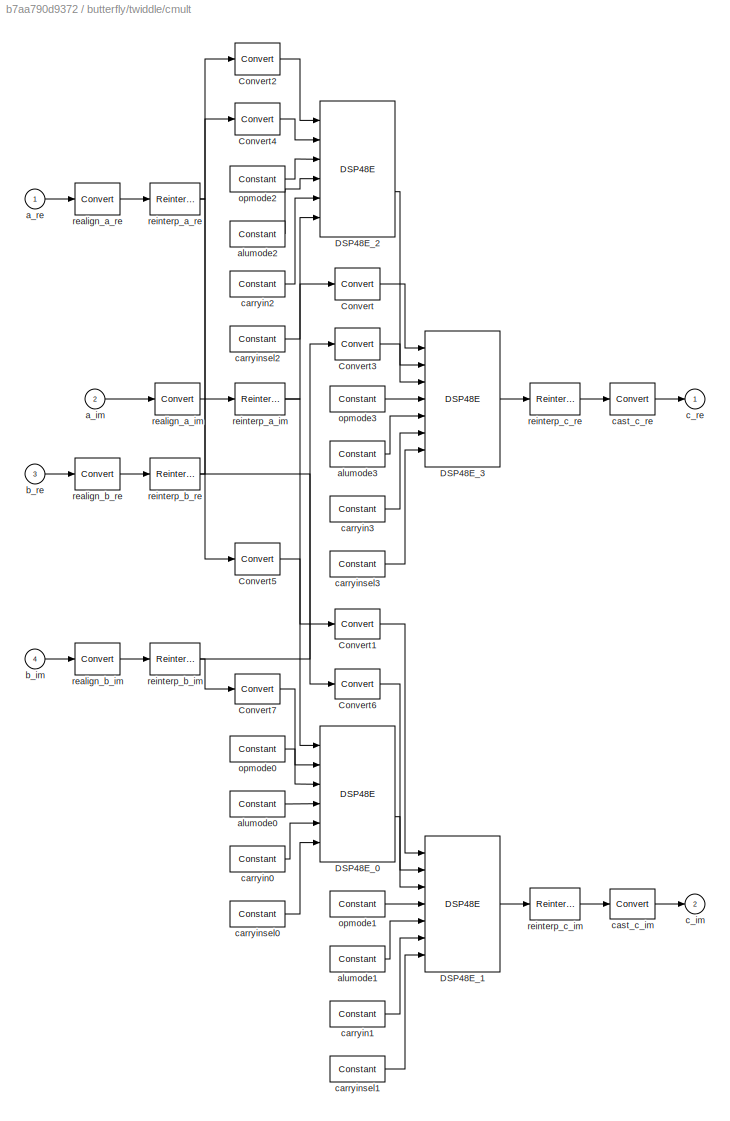
BLOCK [SubSystem] butterfly/twiddle/cmult
  FunctionWithSeparateData = off
  MaskHideContents = off
  MinAlgLoopOccurrences = off
  Opaque = off
  Ports = [4, 2]
  PropExecContextOutsideSubsystem = off
  RTWSystemCode = Auto
  RequestExecContextInheritance = off
BLOCK [Reference] butterfly/twiddle/cmult/Convert  REF=xbsIndex_r4/Convert
  Ports = [1, 1]
  SourceBlock = xbsIndex_r4/Convert
  SourceType = Xilinx Type Converter Block
  arith_type = Signed  (2's comp)
  bin_pt = 0
  block_type = convert
  dbl_ovrd = off
  en = off
  exp_bits = 8
  float_type = Single
  fraction_bits = 24
  gui_display_data_type = Fixed-point
  has_advanced_control = 0
  infoedit = Hardware notes: rounding and saturating require hardware resources; truncating and wrapping do not.
  latency = 0
  n_bits = 30
  overflow = Wrap
  pipeline = on
  quantization = Truncate
  sg_icon_stat = 45,32,1,1,white,blue,0,edca21da,right,,[ ],[ ]
  sggui_pos = -1,-1,-1,-1
  xl_area = [0,0,0,0,0,0,0]
  xl_use_area = off
BLOCK [Reference] butterfly/twiddle/cmult/Convert1  REF=xbsIndex_r4/Convert
  Ports = [1, 1]
  SourceBlock = xbsIndex_r4/Convert
  SourceType = Xilinx Type Converter Block
  arith_type = Signed  (2's comp)
  bin_pt = 0
  block_type = convert
  dbl_ovrd = off
  en = off
  exp_bits = 8
  float_type = Single
  fraction_bits = 24
  gui_display_data_type = Fixed-point
  has_advanced_control = 0
  infoedit = Hardware notes: rounding and saturating require hardware resources; truncating and wrapping do not.
  latency = 0
  n_bits = 30
  overflow = Wrap
  pipeline = on
  quantization = Truncate
  sg_icon_stat = 45,30,1,1,white,blue,0,edca21da,right,,[ ],[ ]
  sggui_pos = -1,-1,-1,-1
  xl_area = [0,0,0,0,0,0,0]
  xl_use_area = off
BLOCK [Reference] butterfly/twiddle/cmult/Convert2  REF=xbsIndex_r4/Convert
  Ports = [1, 1]
  SourceBlock = xbsIndex_r4/Convert
  SourceType = Xilinx Type Converter Block
  arith_type = Signed  (2's comp)
  bin_pt = 0
  block_type = convert
  dbl_ovrd = off
  en = off
  exp_bits = 8
  float_type = Single
  fraction_bits = 24
  gui_display_data_type = Fixed-point
  has_advanced_control = 0
  infoedit = Hardware notes: rounding and saturating require hardware resources; truncating and wrapping do not.
  latency = 0
  n_bits = 30
  overflow = Wrap
  pipeline = on
  quantization = Truncate
  sg_icon_stat = 45,32,1,1,white,blue,0,edca21da,right,,[ ],[ ]
  sggui_pos = -1,-1,-1,-1
  xl_area = [0,0,0,0,0,0,0]
  xl_use_area = off
BLOCK [Reference] butterfly/twiddle/cmult/Convert3  REF=xbsIndex_r4/Convert
  Ports = [1, 1]
  SourceBlock = xbsIndex_r4/Convert
  SourceType = Xilinx Type Converter Block
  arith_type = Signed  (2's comp)
  bin_pt = 0
  block_type = convert
  dbl_ovrd = off
  en = off
  exp_bits = 8
  float_type = Single
  fraction_bits = 24
  gui_display_data_type = Fixed-point
  has_advanced_control = 0
  infoedit = Hardware notes: rounding and saturating require hardware resources; truncating and wrapping do not.
  latency = 0
  n_bits = 18
  overflow = Wrap
  pipeline = on
  quantization = Truncate
  sg_icon_stat = 45,32,1,1,white,blue,0,edca21da,right,,[ ],[ ]
  sggui_pos = -1,-1,-1,-1
  xl_area = [0,0,0,0,0,0,0]
  xl_use_area = off
BLOCK [Reference] butterfly/twiddle/cmult/Convert4  REF=xbsIndex_r4/Convert
  Ports = [1, 1]
  SourceBlock = xbsIndex_r4/Convert
  SourceType = Xilinx Type Converter Block
  arith_type = Signed  (2's comp)
  bin_pt = 0
  block_type = convert
  dbl_ovrd = off
  en = off
  exp_bits = 8
  float_type = Single
  fraction_bits = 24
  gui_display_data_type = Fixed-point
  has_advanced_control = 0
  infoedit = Hardware notes: rounding and saturating require hardware resources; truncating and wrapping do not.
  latency = 0
  n_bits = 18
  overflow = Wrap
  pipeline = on
  quantization = Truncate
  sg_icon_stat = 45,32,1,1,white,blue,0,edca21da,right,,[ ],[ ]
  sggui_pos = -1,-1,-1,-1
  xl_area = [0,0,0,0,0,0,0]
  xl_use_area = off
BLOCK [Reference] butterfly/twiddle/cmult/Convert5  REF=xbsIndex_r4/Convert
  Ports = [1, 1]
  SourceBlock = xbsIndex_r4/Convert
  SourceType = Xilinx Type Converter Block
  arith_type = Signed  (2's comp)
  bin_pt = 0
  block_type = convert
  dbl_ovrd = off
  en = off
  exp_bits = 8
  float_type = Single
  fraction_bits = 24
  gui_display_data_type = Fixed-point
  has_advanced_control = 0
  infoedit = Hardware notes: rounding and saturating require hardware resources; truncating and wrapping do not.
  latency = 0
  n_bits = 30
  overflow = Wrap
  pipeline = on
  quantization = Truncate
  sg_icon_stat = 45,32,1,1,white,blue,0,edca21da,right,,[ ],[ ]
  sggui_pos = -1,-1,-1,-1
  xl_area = [0,0,0,0,0,0,0]
  xl_use_area = off
BLOCK [Reference] butterfly/twiddle/cmult/Convert6  REF=xbsIndex_r4/Convert
  Ports = [1, 1]
  SourceBlock = xbsIndex_r4/Convert
  SourceType = Xilinx Type Converter Block
  arith_type = Signed  (2's comp)
  bin_pt = 0
  block_type = convert
  dbl_ovrd = off
  en = off
  exp_bits = 8
  float_type = Single
  fraction_bits = 24
  gui_display_data_type = Fixed-point
  has_advanced_control = 0
  infoedit = Hardware notes: rounding and saturating require hardware resources; truncating and wrapping do not.
  latency = 0
  n_bits = 18
  overflow = Wrap
  pipeline = on
  quantization = Truncate
  sg_icon_stat = 45,30,1,1,white,blue,0,edca21da,right,,[ ],[ ]
  sggui_pos = -1,-1,-1,-1
  xl_area = [0,0,0,0,0,0,0]
  xl_use_area = off
BLOCK [Reference] butterfly/twiddle/cmult/Convert7  REF=xbsIndex_r4/Convert
  Ports = [1, 1]
  SourceBlock = xbsIndex_r4/Convert
  SourceType = Xilinx Type Converter Block
  arith_type = Signed  (2's comp)
  bin_pt = 0
  block_type = convert
  dbl_ovrd = off
  en = off
  exp_bits = 8
  float_type = Single
  fraction_bits = 24
  gui_display_data_type = Fixed-point
  has_advanced_control = 0
  infoedit = Hardware notes: rounding and saturating require hardware resources; truncating and wrapping do not.
  latency = 0
  n_bits = 18
  overflow = Wrap
  pipeline = on
  quantization = Truncate
  sg_icon_stat = 45,30,1,1,white,blue,0,edca21da,right,,[ ],[ ]
  sggui_pos = -1,-1,-1,-1
  xl_area = [0,0,0,0,0,0,0]
  xl_use_area = off
BLOCK [Reference] butterfly/twiddle/cmult/DSP48E_0  REF=xbsIndex_r4/DSP48E
  Ports = [6, 2]
  SourceBlock = xbsIndex_r4/DSP48E
  SourceType = Xilinx DSP48E Block
  addsub_mode = ONE48
  block_type = dsp48e
  en_a1 = off
  en_a2 = off
  en_all = off
  en_alumode = off
  en_b1 = off
  en_b2 = off
  en_c = off
  en_carry_in = off
  en_ctrl = off
  en_mult = off
  en_multcarryin = off
  en_p = off
  has_advanced_control = 0
  mask_from_creg = on
  pattern = '000000000000'
  pattern_from_creg = on
  pattern_mask = '000000000000'
  pipeline_a = 1
  pipeline_acout = 1
  pipeline_alumode = on
  pipeline_b = 1
  pipeline_bcout = 1
  pipeline_c = on
  pipeline_carryin = on
  pipeline_carryinsel = on
  pipeline_mult = on
  pipeline_opmode = on
  pipeline_p = on
  reset_preg = off
  rst_a = off
  rst_all = off
  rst_alumode = off
  rst_b = off
  rst_c = off
  rst_carry_in = off
  rst_ctrl = off
  rst_mult = off
  rst_p = off
  sel_rounding_mask = Select mask
  sg_icon_stat = 75,136,6,2,white,blue,0,c3facdee,right,,[ ],[ ]
  sg_mask_display = fprintf('','COMMENT: begin icon graphics');\npatch([0 75 75 0 0 ],[0 0 136 136 0 ],[0.77 0.82 0.91 ]);\nplot([0 75 75 0 0 ],[0 0 136 136 0 ]);\npatch([14.75 29.2 39.2 49.2 59.2 39.2 24.75 14.75 ],[79.1 79.1 89.1 79.1 89.1 89.1 89.1 79.1 ],[1 1 1 ]);\npatch([24.75 39.2 29.2 14.75 24.75 ],[69.1 69.1 79.1 79.1 69.1 ],[0.931 0.946 0.973 ]);\npatch([14.75 29.2 39.2 24.75 14.75 ],[59.1 59.1 69.1 69.1 59.1 ],...<+606ch>
  sggui_pos = -1,-1,-1,-1
  use_a = Direct from A Port
  use_acout = off
  use_b = Direct from B Port
  use_bcout = off
  use_carrycascin = off
  use_carrycascout = off
  use_carryout = off
  use_creg = off
  use_multsignin = off
  use_multsignout = off
  use_op = off
  use_overflow = off
  use_patternbdetect = off
  use_patterndetect = off
  use_pcin = off
  use_pcout = on
  use_synth_model = off
  use_underflow = off
  xl_area = [0,0,0,0,0,0,0]
  xl_use_area = off
  xl_useadderonly = off
BLOCK [Reference] butterfly/twiddle/cmult/DSP48E_1  REF=xbsIndex_r4/DSP48E
  Ports = [7, 1]
  SourceBlock = xbsIndex_r4/DSP48E
  SourceType = Xilinx DSP48E Block
  addsub_mode = ONE48
  block_type = dsp48e
  en_a1 = off
  en_a2 = off
  en_all = off
  en_alumode = off
  en_b1 = off
  en_b2 = off
  en_c = off
  en_carry_in = off
  en_ctrl = off
  en_mult = off
  en_multcarryin = off
  en_p = off
  has_advanced_control = 0
  mask_from_creg = on
  pattern = '000000000000'
  pattern_from_creg = on
  pattern_mask = '000000000000'
  pipeline_a = 2
  pipeline_acout = 1
  pipeline_alumode = on
  pipeline_b = 2
  pipeline_bcout = 1
  pipeline_c = on
  pipeline_carryin = on
  pipeline_carryinsel = on
  pipeline_mult = on
  pipeline_opmode = on
  pipeline_p = on
  reset_preg = off
  rst_a = off
  rst_all = off
  rst_alumode = off
  rst_b = off
  rst_c = off
  rst_carry_in = off
  rst_ctrl = off
  rst_mult = off
  rst_p = off
  sel_rounding_mask = Select mask
  sg_icon_stat = 75,136,7,1,white,blue,0,b41431cb,right,,[ ],[ ]
  sg_mask_display = fprintf('','COMMENT: begin icon graphics');\npatch([0 75 75 0 0 ],[0 0 136 136 0 ],[0.77 0.82 0.91 ]);\nplot([0 75 75 0 0 ],[0 0 136 136 0 ]);\npatch([14.75 29.2 39.2 49.2 59.2 39.2 24.75 14.75 ],[79.1 79.1 89.1 79.1 89.1 89.1 89.1 79.1 ],[1 1 1 ]);\npatch([24.75 39.2 29.2 14.75 24.75 ],[69.1 69.1 79.1 79.1 69.1 ],[0.931 0.946 0.973 ]);\npatch([14.75 29.2 39.2 24.75 14.75 ],[59.1 59.1 69.1 69.1 59.1 ],...<+604ch>
  sggui_pos = -1,-1,-1,-1
  use_a = Direct from A Port
  use_acout = off
  use_b = Direct from B Port
  use_bcout = off
  use_carrycascin = off
  use_carrycascout = off
  use_carryout = off
  use_creg = off
  use_multsignin = off
  use_multsignout = off
  use_op = off
  use_overflow = off
  use_patternbdetect = off
  use_patterndetect = off
  use_pcin = on
  use_pcout = off
  use_synth_model = off
  use_underflow = off
  xl_area = [0,0,0,0,0,0,0]
  xl_use_area = off
  xl_useadderonly = off
BLOCK [Reference] butterfly/twiddle/cmult/DSP48E_2  REF=xbsIndex_r4/DSP48E
  Ports = [6, 2]
  SourceBlock = xbsIndex_r4/DSP48E
  SourceType = Xilinx DSP48E Block
  addsub_mode = ONE48
  block_type = dsp48e
  en_a1 = off
  en_a2 = off
  en_all = off
  en_alumode = off
  en_b1 = off
  en_b2 = off
  en_c = off
  en_carry_in = off
  en_ctrl = off
  en_mult = off
  en_multcarryin = off
  en_p = off
  has_advanced_control = 0
  mask_from_creg = on
  pattern = '000000000000'
  pattern_from_creg = on
  pattern_mask = '000000000000'
  pipeline_a = 1
  pipeline_acout = 1
  pipeline_alumode = on
  pipeline_b = 1
  pipeline_bcout = 1
  pipeline_c = on
  pipeline_carryin = on
  pipeline_carryinsel = on
  pipeline_mult = on
  pipeline_opmode = on
  pipeline_p = on
  reset_preg = off
  rst_a = off
  rst_all = off
  rst_alumode = off
  rst_b = off
  rst_c = off
  rst_carry_in = off
  rst_ctrl = off
  rst_mult = off
  rst_p = off
  sel_rounding_mask = Select mask
  sg_icon_stat = 75,136,6,2,white,blue,0,c3facdee,right,,[ ],[ ]
  sg_mask_display = fprintf('','COMMENT: begin icon graphics');\npatch([0 75 75 0 0 ],[0 0 136 136 0 ],[0.77 0.82 0.91 ]);\nplot([0 75 75 0 0 ],[0 0 136 136 0 ]);\npatch([14.75 29.2 39.2 49.2 59.2 39.2 24.75 14.75 ],[79.1 79.1 89.1 79.1 89.1 89.1 89.1 79.1 ],[1 1 1 ]);\npatch([24.75 39.2 29.2 14.75 24.75 ],[69.1 69.1 79.1 79.1 69.1 ],[0.931 0.946 0.973 ]);\npatch([14.75 29.2 39.2 24.75 14.75 ],[59.1 59.1 69.1 69.1 59.1 ],...<+606ch>
  sggui_pos = -1,-1,-1,-1
  use_a = Direct from A Port
  use_acout = off
  use_b = Direct from B Port
  use_bcout = off
  use_carrycascin = off
  use_carrycascout = off
  use_carryout = off
  use_creg = off
  use_multsignin = off
  use_multsignout = off
  use_op = off
  use_overflow = off
  use_patternbdetect = off
  use_patterndetect = off
  use_pcin = off
  use_pcout = on
  use_synth_model = off
  use_underflow = off
  xl_area = [0,0,0,0,0,0,0]
  xl_use_area = off
  xl_useadderonly = off
BLOCK [Reference] butterfly/twiddle/cmult/DSP48E_3  REF=xbsIndex_r4/DSP48E
  Ports = [7, 1]
  SourceBlock = xbsIndex_r4/DSP48E
  SourceType = Xilinx DSP48E Block
  addsub_mode = ONE48
  block_type = dsp48e
  en_a1 = off
  en_a2 = off
  en_all = off
  en_alumode = off
  en_b1 = off
  en_b2 = off
  en_c = off
  en_carry_in = off
  en_ctrl = off
  en_mult = off
  en_multcarryin = off
  en_p = off
  has_advanced_control = 0
  mask_from_creg = on
  pattern = '000000000000'
  pattern_from_creg = on
  pattern_mask = '000000000000'
  pipeline_a = 2
  pipeline_acout = 1
  pipeline_alumode = on
  pipeline_b = 2
  pipeline_bcout = 1
  pipeline_c = on
  pipeline_carryin = on
  pipeline_carryinsel = on
  pipeline_mult = on
  pipeline_opmode = on
  pipeline_p = on
  reset_preg = off
  rst_a = off
  rst_all = off
  rst_alumode = off
  rst_b = off
  rst_c = off
  rst_carry_in = off
  rst_ctrl = off
  rst_mult = off
  rst_p = off
  sel_rounding_mask = Select mask
  sg_icon_stat = 75,136,7,1,white,blue,0,b41431cb,right,,[ ],[ ]
  sg_mask_display = fprintf('','COMMENT: begin icon graphics');\npatch([0 75 75 0 0 ],[0 0 136 136 0 ],[0.77 0.82 0.91 ]);\nplot([0 75 75 0 0 ],[0 0 136 136 0 ]);\npatch([14.75 29.2 39.2 49.2 59.2 39.2 24.75 14.75 ],[79.1 79.1 89.1 79.1 89.1 89.1 89.1 79.1 ],[1 1 1 ]);\npatch([24.75 39.2 29.2 14.75 24.75 ],[69.1 69.1 79.1 79.1 69.1 ],[0.931 0.946 0.973 ]);\npatch([14.75 29.2 39.2 24.75 14.75 ],[59.1 59.1 69.1 69.1 59.1 ],...<+604ch>
  sggui_pos = -1,-1,-1,-1
  use_a = Direct from A Port
  use_acout = off
  use_b = Direct from B Port
  use_bcout = off
  use_carrycascin = off
  use_carrycascout = off
  use_carryout = off
  use_creg = off
  use_multsignin = off
  use_multsignout = off
  use_op = off
  use_overflow = off
  use_patternbdetect = off
  use_patterndetect = off
  use_pcin = on
  use_pcout = off
  use_synth_model = off
  use_underflow = off
  xl_area = [0,0,0,0,0,0,0]
  xl_use_area = off
  xl_useadderonly = off
BLOCK [Inport] butterfly/twiddle/cmult/a_im
  IconDisplay = Port number
  Port = 2
BLOCK [Inport] butterfly/twiddle/cmult/a_re
  IconDisplay = Port number
BLOCK [Reference] butterfly/twiddle/cmult/alumode0  REF=xbsIndex_r4/Constant
  Ports = [0, 1]
  SourceBlock = xbsIndex_r4/Constant
  SourceType = Xilinx Constant Block Block
  arith_type = Unsigned
  bin_pt = 0
  block_type = constant
  carry = CIN
  const = 0
  dbl_ovrd = off
  dsp48_infoedit = The use of this block for DSP48 instructions is deprecated.  Please use the Opmode block.
  equ = P=C
  exp_width = 8
  explicit_period = off
  frac_width = 24
  gui_display_data_type = Fixed-point
  has_advanced_control = 0
  inp1 = P
  inp2 = PCIN>>17
  n_bits = 4
  opr = +
  opselect = C
  period = 1
  preci_type = Single
  sg_icon_stat = 55,26,0,1,white,blue,0,bf4ddd8b,right,,[ ],[ ]
  sggui_pos = -1,-1,-1,-1
BLOCK [Reference] butterfly/twiddle/cmult/alumode1  REF=xbsIndex_r4/Constant
  Ports = [0, 1]
  SourceBlock = xbsIndex_r4/Constant
  SourceType = Xilinx Constant Block Block
  arith_type = Unsigned
  bin_pt = 0
  block_type = constant
  carry = CIN
  const = 0
  dbl_ovrd = off
  dsp48_infoedit = The use of this block for DSP48 instructions is deprecated.  Please use the Opmode block.
  equ = P=C
  exp_width = 8
  explicit_period = off
  frac_width = 24
  gui_display_data_type = Fixed-point
  has_advanced_control = 0
  inp1 = P
  inp2 = PCIN>>17
  n_bits = 4
  opr = +
  opselect = C
  period = 1
  preci_type = Single
  sg_icon_stat = 55,26,0,1,white,blue,0,bf4ddd8b,right,,[ ],[ ]
  sggui_pos = -1,-1,-1,-1
BLOCK [Reference] butterfly/twiddle/cmult/alumode2  REF=xbsIndex_r4/Constant
  Ports = [0, 1]
  SourceBlock = xbsIndex_r4/Constant
  SourceType = Xilinx Constant Block Block
  arith_type = Unsigned
  bin_pt = 0
  block_type = constant
  carry = CIN
  const = 0
  dbl_ovrd = off
  dsp48_infoedit = The use of this block for DSP48 instructions is deprecated.  Please use the Opmode block.
  equ = P=C
  exp_width = 8
  explicit_period = off
  frac_width = 24
  gui_display_data_type = Fixed-point
  has_advanced_control = 0
  inp1 = P
  inp2 = PCIN>>17
  n_bits = 4
  opr = +
  opselect = C
  period = 1
  preci_type = Single
  sg_icon_stat = 55,26,0,1,white,blue,0,bf4ddd8b,right,,[ ],[ ]
  sggui_pos = -1,-1,-1,-1
BLOCK [Reference] butterfly/twiddle/cmult/alumode3  REF=xbsIndex_r4/Constant
  Ports = [0, 1]
  SourceBlock = xbsIndex_r4/Constant
  SourceType = Xilinx Constant Block Block
  arith_type = Unsigned
  bin_pt = 0
  block_type = constant
  carry = CIN
  const = 3
  dbl_ovrd = off
  dsp48_infoedit = The use of this block for DSP48 instructions is deprecated.  Please use the Opmode block.
  equ = P=C
  exp_width = 8
  explicit_period = off
  frac_width = 24
  gui_display_data_type = Fixed-point
  has_advanced_control = 0
  inp1 = P
  inp2 = PCIN>>17
  n_bits = 4
  opr = +
  opselect = C
  period = 1
  preci_type = Single
  sg_icon_stat = 55,26,0,1,white,blue,0,279a71c8,right,,[ ],[ ]
  sggui_pos = -1,-1,-1,-1
BLOCK [Inport] butterfly/twiddle/cmult/b_im
  IconDisplay = Port number
  Port = 4
BLOCK [Inport] butterfly/twiddle/cmult/b_re
  IconDisplay = Port number
  Port = 3
BLOCK [Outport] butterfly/twiddle/cmult/c_im
  IconDisplay = Port number
  Port = 2
BLOCK [Outport] butterfly/twiddle/cmult/c_re
  IconDisplay = Port number
BLOCK [Reference] butterfly/twiddle/cmult/carryin0  REF=xbsIndex_r4/Constant
  Ports = [0, 1]
  SourceBlock = xbsIndex_r4/Constant
  SourceType = Xilinx Constant Block Block
  arith_type = Unsigned
  bin_pt = 0
  block_type = constant
  carry = CIN
  const = 0
  dbl_ovrd = off
  dsp48_infoedit = The use of this block for DSP48 instructions is deprecated.  Please use the Opmode block.
  equ = P=C
  exp_width = 8
  explicit_period = off
  frac_width = 24
  gui_display_data_type = Fixed-point
  has_advanced_control = 0
  inp1 = P
  inp2 = PCIN>>17
  n_bits = 1
  opr = +
  opselect = C
  period = 1
  preci_type = Single
  sg_icon_stat = 55,26,0,1,white,blue,0,bf4ddd8b,right,,[ ],[ ]
  sggui_pos = -1,-1,-1,-1
BLOCK [Reference] butterfly/twiddle/cmult/carryin1  REF=xbsIndex_r4/Constant
  Ports = [0, 1]
  SourceBlock = xbsIndex_r4/Constant
  SourceType = Xilinx Constant Block Block
  arith_type = Unsigned
  bin_pt = 0
  block_type = constant
  carry = CIN
  const = 0
  dbl_ovrd = off
  dsp48_infoedit = The use of this block for DSP48 instructions is deprecated.  Please use the Opmode block.
  equ = P=C
  exp_width = 8
  explicit_period = off
  frac_width = 24
  gui_display_data_type = Fixed-point
  has_advanced_control = 0
  inp1 = P
  inp2 = PCIN>>17
  n_bits = 1
  opr = +
  opselect = C
  period = 1
  preci_type = Single
  sg_icon_stat = 55,26,0,1,white,blue,0,bf4ddd8b,right,,[ ],[ ]
  sggui_pos = -1,-1,-1,-1
BLOCK [Reference] butterfly/twiddle/cmult/carryin2  REF=xbsIndex_r4/Constant
  Ports = [0, 1]
  SourceBlock = xbsIndex_r4/Constant
  SourceType = Xilinx Constant Block Block
  arith_type = Unsigned
  bin_pt = 0
  block_type = constant
  carry = CIN
  const = 0
  dbl_ovrd = off
  dsp48_infoedit = The use of this block for DSP48 instructions is deprecated.  Please use the Opmode block.
  equ = P=C
  exp_width = 8
  explicit_period = off
  frac_width = 24
  gui_display_data_type = Fixed-point
  has_advanced_control = 0
  inp1 = P
  inp2 = PCIN>>17
  n_bits = 1
  opr = +
  opselect = C
  period = 1
  preci_type = Single
  sg_icon_stat = 55,26,0,1,white,blue,0,bf4ddd8b,right,,[ ],[ ]
  sggui_pos = -1,-1,-1,-1
BLOCK [Reference] butterfly/twiddle/cmult/carryin3  REF=xbsIndex_r4/Constant
  Ports = [0, 1]
  SourceBlock = xbsIndex_r4/Constant
  SourceType = Xilinx Constant Block Block
  arith_type = Unsigned
  bin_pt = 0
  block_type = constant
  carry = CIN
  const = 0
  dbl_ovrd = off
  dsp48_infoedit = The use of this block for DSP48 instructions is deprecated.  Please use the Opmode block.
  equ = P=C
  exp_width = 8
  explicit_period = off
  frac_width = 24
  gui_display_data_type = Fixed-point
  has_advanced_control = 0
  inp1 = P
  inp2 = PCIN>>17
  n_bits = 1
  opr = +
  opselect = C
  period = 1
  preci_type = Single
  sg_icon_stat = 55,26,0,1,white,blue,0,bf4ddd8b,right,,[ ],[ ]
  sggui_pos = -1,-1,-1,-1
BLOCK [Reference] butterfly/twiddle/cmult/carryinsel0  REF=xbsIndex_r4/Constant
  Ports = [0, 1]
  SourceBlock = xbsIndex_r4/Constant
  SourceType = Xilinx Constant Block Block
  arith_type = Unsigned
  bin_pt = 0
  block_type = constant
  carry = CIN
  const = 0
  dbl_ovrd = off
  dsp48_infoedit = The use of this block for DSP48 instructions is deprecated.  Please use the Opmode block.
  equ = P=C
  exp_width = 8
  explicit_period = off
  frac_width = 24
  gui_display_data_type = Fixed-point
  has_advanced_control = 0
  inp1 = P
  inp2 = PCIN>>17
  n_bits = 3
  opr = +
  opselect = C
  period = 1
  preci_type = Single
  sg_icon_stat = 55,26,0,1,white,blue,0,bf4ddd8b,right,,[ ],[ ]
  sggui_pos = -1,-1,-1,-1
BLOCK [Reference] butterfly/twiddle/cmult/carryinsel1  REF=xbsIndex_r4/Constant
  Ports = [0, 1]
  SourceBlock = xbsIndex_r4/Constant
  SourceType = Xilinx Constant Block Block
  arith_type = Unsigned
  bin_pt = 0
  block_type = constant
  carry = CIN
  const = 0
  dbl_ovrd = off
  dsp48_infoedit = The use of this block for DSP48 instructions is deprecated.  Please use the Opmode block.
  equ = P=C
  exp_width = 8
  explicit_period = off
  frac_width = 24
  gui_display_data_type = Fixed-point
  has_advanced_control = 0
  inp1 = P
  inp2 = PCIN>>17
  n_bits = 3
  opr = +
  opselect = C
  period = 1
  preci_type = Single
  sg_icon_stat = 55,26,0,1,white,blue,0,bf4ddd8b,right,,[ ],[ ]
  sggui_pos = -1,-1,-1,-1
BLOCK [Reference] butterfly/twiddle/cmult/carryinsel2  REF=xbsIndex_r4/Constant
  Ports = [0, 1]
  SourceBlock = xbsIndex_r4/Constant
  SourceType = Xilinx Constant Block Block
  arith_type = Unsigned
  bin_pt = 0
  block_type = constant
  carry = CIN
  const = 0
  dbl_ovrd = off
  dsp48_infoedit = The use of this block for DSP48 instructions is deprecated.  Please use the Opmode block.
  equ = P=C
  exp_width = 8
  explicit_period = off
  frac_width = 24
  gui_display_data_type = Fixed-point
  has_advanced_control = 0
  inp1 = P
  inp2 = PCIN>>17
  n_bits = 3
  opr = +
  opselect = C
  period = 1
  preci_type = Single
  sg_icon_stat = 55,26,0,1,white,blue,0,bf4ddd8b,right,,[ ],[ ]
  sggui_pos = -1,-1,-1,-1
BLOCK [Reference] butterfly/twiddle/cmult/carryinsel3  REF=xbsIndex_r4/Constant
  Ports = [0, 1]
  SourceBlock = xbsIndex_r4/Constant
  SourceType = Xilinx Constant Block Block
  arith_type = Unsigned
  bin_pt = 0
  block_type = constant
  carry = CIN
  const = 0
  dbl_ovrd = off
  dsp48_infoedit = The use of this block for DSP48 instructions is deprecated.  Please use the Opmode block.
  equ = P=C
  exp_width = 8
  explicit_period = off
  frac_width = 24
  gui_display_data_type = Fixed-point
  has_advanced_control = 0
  inp1 = P
  inp2 = PCIN>>17
  n_bits = 3
  opr = +
  opselect = C
  period = 1
  preci_type = Single
  sg_icon_stat = 55,26,0,1,white,blue,0,bf4ddd8b,right,,[ ],[ ]
  sggui_pos = -1,-1,-1,-1
BLOCK [Reference] butterfly/twiddle/cmult/cast_c_im  REF=xbsIndex_r4/Convert
  Ports = [1, 1]
  SourceBlock = xbsIndex_r4/Convert
  SourceType = Xilinx Type Converter Block
  arith_type = Signed  (2's comp)
  bin_pt = 19
  block_type = convert
  dbl_ovrd = off
  en = off
  exp_bits = 8
  float_type = Single
  fraction_bits = 24
  gui_display_data_type = Fixed-point
  has_advanced_control = 0
  infoedit = Hardware notes: rounding and saturating require hardware resources; truncating and wrapping do not.
  latency = 1
  n_bits = 22
  overflow = Wrap
  pipeline = on
  quantization = Round  (unbiased: +/- Inf)
  sg_icon_stat = 45,30,1,1,white,blue,0,0c6bad53,right,,[ ],[ ]
  sg_mask_display = fprintf('','COMMENT: begin icon graphics');\npatch([0 45 45 0 0 ],[0 0 30 30 0 ],[0.77 0.82 0.91 ]);\nplot([0 45 45 0 0 ],[0 0 30 30 0 ]);\npatch([13.1 18.88 22.88 26.88 30.88 22.88 17.1 13.1 ],[19.44 19.44 23.44 19.44 23.44 23.44 23.44 19.44 ],[1 1 1 ]);\npatch([17.1 22.88 18.88 13.1 17.1 ],[15.44 15.44 19.44 19.44 15.44 ],[0.931 0.946 0.973 ]);\npatch([13.1 18.88 22.88 17.1 13.1 ],[11.44 11.44 15.44 ...<+387ch>
  sggui_pos = -1,-1,-1,-1
  xl_area = [0,0,0,0,0,0,0]
  xl_use_area = off
BLOCK [Reference] butterfly/twiddle/cmult/cast_c_re  REF=xbsIndex_r4/Convert
  Ports = [1, 1]
  SourceBlock = xbsIndex_r4/Convert
  SourceType = Xilinx Type Converter Block
  arith_type = Signed  (2's comp)
  bin_pt = 19
  block_type = convert
  dbl_ovrd = off
  en = off
  exp_bits = 8
  float_type = Single
  fraction_bits = 24
  gui_display_data_type = Fixed-point
  has_advanced_control = 0
  infoedit = Hardware notes: rounding and saturating require hardware resources; truncating and wrapping do not.
  latency = 1
  n_bits = 22
  overflow = Wrap
  pipeline = on
  quantization = Round  (unbiased: +/- Inf)
  sg_icon_stat = 45,32,1,1,white,blue,0,0c6bad53,right,,[ ],[ ]
  sg_mask_display = fprintf('','COMMENT: begin icon graphics');\npatch([0 45 45 0 0 ],[0 0 32 32 0 ],[0.77 0.82 0.91 ]);\nplot([0 45 45 0 0 ],[0 0 32 32 0 ]);\npatch([13.1 18.88 22.88 26.88 30.88 22.88 17.1 13.1 ],[20.44 20.44 24.44 20.44 24.44 24.44 24.44 20.44 ],[1 1 1 ]);\npatch([17.1 22.88 18.88 13.1 17.1 ],[16.44 16.44 20.44 20.44 16.44 ],[0.931 0.946 0.973 ]);\npatch([13.1 18.88 22.88 17.1 13.1 ],[12.44 12.44 16.44 ...<+387ch>
  sggui_pos = -1,-1,-1,-1
  xl_area = [0,0,0,0,0,0,0]
  xl_use_area = off
BLOCK [Reference] butterfly/twiddle/cmult/opmode0  REF=xbsIndex_r4/Constant
  Ports = [0, 1]
  SourceBlock = xbsIndex_r4/Constant
  SourceType = Xilinx Constant Block Block
  arith_type = Unsigned
  bin_pt = 0
  block_type = constant
  carry = CIN
  const = 5
  dbl_ovrd = off
  dsp48_infoedit = The use of this block for DSP48 instructions is deprecated.  Please use the Opmode block.
  equ = P=C
  exp_width = 8
  explicit_period = off
  frac_width = 24
  gui_display_data_type = Fixed-point
  has_advanced_control = 0
  inp1 = P
  inp2 = PCIN>>17
  n_bits = 7
  opr = +
  opselect = C
  period = 1
  preci_type = Single
  sg_icon_stat = 55,26,0,1,white,blue,0,98872051,right,,[ ],[ ]
  sggui_pos = -1,-1,-1,-1
BLOCK [Reference] butterfly/twiddle/cmult/opmode1  REF=xbsIndex_r4/Constant
  Ports = [0, 1]
  SourceBlock = xbsIndex_r4/Constant
  SourceType = Xilinx Constant Block Block
  arith_type = Unsigned
  bin_pt = 0
  block_type = constant
  carry = CIN
  const = 21
  dbl_ovrd = off
  dsp48_infoedit = The use of this block for DSP48 instructions is deprecated.  Please use the Opmode block.
  equ = P=C
  exp_width = 8
  explicit_period = off
  frac_width = 24
  gui_display_data_type = Fixed-point
  has_advanced_control = 0
  inp1 = P
  inp2 = PCIN>>17
  n_bits = 7
  opr = +
  opselect = C
  period = 1
  preci_type = Single
  sg_icon_stat = 55,26,0,1,white,blue,0,b02509bd,right,,[ ],[ ]
  sggui_pos = -1,-1,-1,-1
BLOCK [Reference] butterfly/twiddle/cmult/opmode2  REF=xbsIndex_r4/Constant
  Ports = [0, 1]
  SourceBlock = xbsIndex_r4/Constant
  SourceType = Xilinx Constant Block Block
  arith_type = Unsigned
  bin_pt = 0
  block_type = constant
  carry = CIN
  const = 5
  dbl_ovrd = off
  dsp48_infoedit = The use of this block for DSP48 instructions is deprecated.  Please use the Opmode block.
  equ = P=C
  exp_width = 8
  explicit_period = off
  frac_width = 24
  gui_display_data_type = Fixed-point
  has_advanced_control = 0
  inp1 = P
  inp2 = PCIN>>17
  n_bits = 7
  opr = +
  opselect = C
  period = 1
  preci_type = Single
  sg_icon_stat = 55,26,0,1,white,blue,0,98872051,right,,[ ],[ ]
  sggui_pos = -1,-1,-1,-1
BLOCK [Reference] butterfly/twiddle/cmult/opmode3  REF=xbsIndex_r4/Constant
  Ports = [0, 1]
  SourceBlock = xbsIndex_r4/Constant
  SourceType = Xilinx Constant Block Block
  arith_type = Unsigned
  bin_pt = 0
  block_type = constant
  carry = CIN
  const = 21
  dbl_ovrd = off
  dsp48_infoedit = The use of this block for DSP48 instructions is deprecated.  Please use the Opmode block.
  equ = P=C
  exp_width = 8
  explicit_period = off
  frac_width = 24
  gui_display_data_type = Fixed-point
  has_advanced_control = 0
  inp1 = P
  inp2 = PCIN>>17
  n_bits = 7
  opr = +
  opselect = C
  period = 1
  preci_type = Single
  sg_icon_stat = 55,26,0,1,white,blue,0,b02509bd,right,,[ ],[ ]
  sggui_pos = -1,-1,-1,-1
BLOCK [Reference] butterfly/twiddle/cmult/realign_a_im  REF=xbsIndex_r4/Convert
  Ports = [1, 1]
  SourceBlock = xbsIndex_r4/Convert
  SourceType = Xilinx Type Converter Block
  arith_type = Signed  (2's comp)
  bin_pt = 17
  block_type = convert
  dbl_ovrd = off
  en = off
  exp_bits = 8
  float_type = Single
  fraction_bits = 24
  gui_display_data_type = Fixed-point
  has_advanced_control = 0
  infoedit = Hardware notes: rounding and saturating require hardware resources; truncating and wrapping do not.
  latency = 0
  n_bits = 18
  overflow = Wrap
  pipeline = on
  quantization = Truncate
  sg_icon_stat = 45,32,1,1,white,blue,0,edca21da,right,,[ ],[ ]
  sggui_pos = -1,-1,-1,-1
  xl_area = [0,0,0,0,0,0,0]
  xl_use_area = off
BLOCK [Reference] butterfly/twiddle/cmult/realign_a_re  REF=xbsIndex_r4/Convert
  Ports = [1, 1]
  SourceBlock = xbsIndex_r4/Convert
  SourceType = Xilinx Type Converter Block
  arith_type = Signed  (2's comp)
  bin_pt = 17
  block_type = convert
  dbl_ovrd = off
  en = off
  exp_bits = 8
  float_type = Single
  fraction_bits = 24
  gui_display_data_type = Fixed-point
  has_advanced_control = 0
  infoedit = Hardware notes: rounding and saturating require hardware resources; truncating and wrapping do not.
  latency = 0
  n_bits = 18
  overflow = Wrap
  pipeline = on
  quantization = Truncate
  sg_icon_stat = 45,32,1,1,white,blue,0,edca21da,right,,[ ],[ ]
  sggui_pos = -1,-1,-1,-1
  xl_area = [0,0,0,0,0,0,0]
  xl_use_area = off
BLOCK [Reference] butterfly/twiddle/cmult/realign_b_im  REF=xbsIndex_r4/Convert
  Ports = [1, 1]
  SourceBlock = xbsIndex_r4/Convert
  SourceType = Xilinx Type Converter Block
  arith_type = Signed  (2's comp)
  bin_pt = 16
  block_type = convert
  dbl_ovrd = off
  en = off
  exp_bits = 8
  float_type = Single
  fraction_bits = 24
  gui_display_data_type = Fixed-point
  has_advanced_control = 0
  infoedit = Hardware notes: rounding and saturating require hardware resources; truncating and wrapping do not.
  latency = 0
  n_bits = 18
  overflow = Wrap
  pipeline = on
  quantization = Truncate
  sg_icon_stat = 45,32,1,1,white,blue,0,edca21da,right,,[ ],[ ]
  sggui_pos = -1,-1,-1,-1
  xl_area = [0,0,0,0,0,0,0]
  xl_use_area = off
BLOCK [Reference] butterfly/twiddle/cmult/realign_b_re  REF=xbsIndex_r4/Convert
  Ports = [1, 1]
  SourceBlock = xbsIndex_r4/Convert
  SourceType = Xilinx Type Converter Block
  arith_type = Signed  (2's comp)
  bin_pt = 16
  block_type = convert
  dbl_ovrd = off
  en = off
  exp_bits = 8
  float_type = Single
  fraction_bits = 24
  gui_display_data_type = Fixed-point
  has_advanced_control = 0
  infoedit = Hardware notes: rounding and saturating require hardware resources; truncating and wrapping do not.
  latency = 0
  n_bits = 18
  overflow = Wrap
  pipeline = on
  quantization = Truncate
  sg_icon_stat = 45,32,1,1,white,blue,0,edca21da,right,,[ ],[ ]
  sggui_pos = -1,-1,-1,-1
  xl_area = [0,0,0,0,0,0,0]
  xl_use_area = off
BLOCK [Reference] butterfly/twiddle/cmult/reinterp_a_im  REF=xbsIndex_r4/Reinterpret
  Ports = [1, 1]
  SourceBlock = xbsIndex_r4/Reinterpret
  SourceType = Xilinx Type Reinterpreter Block
  arith_type = Signed  (2's comp)
  bin_pt = 0
  block_type = reinterpret
  force_arith_type = on
  force_bin_pt = on
  has_advanced_control = 0
  sg_icon_stat = 50,32,1,1,white,blue,0,6b04d0b0,right,,[ ],[ ]
  sggui_pos = -1,-1,-1,-1
BLOCK [Reference] butterfly/twiddle/cmult/reinterp_a_re  REF=xbsIndex_r4/Reinterpret
  Ports = [1, 1]
  SourceBlock = xbsIndex_r4/Reinterpret
  SourceType = Xilinx Type Reinterpreter Block
  arith_type = Signed  (2's comp)
  bin_pt = 0
  block_type = reinterpret
  force_arith_type = on
  force_bin_pt = on
  has_advanced_control = 0
  sg_icon_stat = 50,32,1,1,white,blue,0,6b04d0b0,right,,[ ],[ ]
  sggui_pos = -1,-1,-1,-1
BLOCK [Reference] butterfly/twiddle/cmult/reinterp_b_im  REF=xbsIndex_r4/Reinterpret
  Ports = [1, 1]
  SourceBlock = xbsIndex_r4/Reinterpret
  SourceType = Xilinx Type Reinterpreter Block
  arith_type = Signed  (2's comp)
  bin_pt = 0
  block_type = reinterpret
  force_arith_type = on
  force_bin_pt = on
  has_advanced_control = 0
  sg_icon_stat = 50,32,1,1,white,blue,0,6b04d0b0,right,,[ ],[ ]
  sggui_pos = -1,-1,-1,-1
BLOCK [Reference] butterfly/twiddle/cmult/reinterp_b_re  REF=xbsIndex_r4/Reinterpret
  Ports = [1, 1]
  SourceBlock = xbsIndex_r4/Reinterpret
  SourceType = Xilinx Type Reinterpreter Block
  arith_type = Signed  (2's comp)
  bin_pt = 0
  block_type = reinterpret
  force_arith_type = on
  force_bin_pt = on
  has_advanced_control = 0
  sg_icon_stat = 50,32,1,1,white,blue,0,6b04d0b0,right,,[ ],[ ]
  sggui_pos = -1,-1,-1,-1
BLOCK [Reference] butterfly/twiddle/cmult/reinterp_c_im  REF=xbsIndex_r4/Reinterpret
  Ports = [1, 1]
  SourceBlock = xbsIndex_r4/Reinterpret
  SourceType = Xilinx Type Reinterpreter Block
  arith_type = Signed  (2's comp)
  bin_pt = 33
  block_type = reinterpret
  force_arith_type = on
  force_bin_pt = on
  has_advanced_control = 0
  sg_icon_stat = 50,32,1,1,white,blue,0,6b04d0b0,right,,[ ],[ ]
  sggui_pos = -1,-1,-1,-1
BLOCK [Reference] butterfly/twiddle/cmult/reinterp_c_re  REF=xbsIndex_r4/Reinterpret
  Ports = [1, 1]
  SourceBlock = xbsIndex_r4/Reinterpret
  SourceType = Xilinx Type Reinterpreter Block
  arith_type = Signed  (2's comp)
  bin_pt = 33
  block_type = reinterpret
  force_arith_type = on
  force_bin_pt = on
  has_advanced_control = 0
  sg_icon_stat = 50,32,1,1,white,blue,0,6b04d0b0,right,,[ ],[ ]
  sggui_pos = -1,-1,-1,-1
BLOCK [Inport] butterfly/twiddle/sync
  IconDisplay = Port number
  Port = 4
BLOCK [Reference] butterfly/twiddle/sync_delay  REF=xbsIndex_r4/Delay
  Ports = [1, 1]
  SourceBlock = xbsIndex_r4/Delay
  SourceType = Xilinx Delay Block
  block_type = delay
  dbl_ovrd = off
  en = off
  has_advanced_control = 0
  infoedit = Hardware notes: A delay line is a chain, each link of which is an SRL16 followed by a flip-flop.
  infoeditControl = Selection of Reset will increase slice count due to use of real FFs and instead of SRLs
  latency = 5
  reg_retiming = off
  rst = off
  sg_icon_stat = 60,56,1,1,white,blue,0,ec356abf,right,,[ ],[ ]
  sggui_pos = -1,-1,-1,-1
  xl_area = [0,0,0,0,0,0,0]
  xl_use_area = off
BLOCK [Outport] butterfly/twiddle/sync_out
  IconDisplay = Port number
  Port = 5
BLOCK [Inport] butterfly/twiddle/w
  IconDisplay = Port number
  Port = 3
BLOCK [Inport] butterfly/w
  IconDisplay = Port number
  Port = 3
BLOCK [SubSystem] butterfly1
  FunctionWithSeparateData = off
  MaskHideContents = off
  MinAlgLoopOccurrences = off
  Opaque = off
  Ports = [5, 4]
  PropExecContextOutsideSubsystem = off
  RTWSystemCode = Auto
  RequestExecContextInheritance = off
BLOCK [Reference] butterfly1/Simulation Multiplexer  REF=xbsIndex_r4/Simulation Multiplexer
  Ports = [2, 1]
  SourceBlock = xbsIndex_r4/Simulation Multiplexer
  SourceType = Xilinx Simulation Multiplexer Block
  block_type = simmux
  has_advanced_control = 0
  hw_sel = 2
  infoedit = Distinguish input subsystems as "simulation only" and "generation only".  The input specified For Simulation will be used during Simulink simulation.  The input specified For Generation will be used during code generation.  This block will typically be used on the output of a HW Co-Simulation, Black Box, or ModelSim subsystem.<br><br>Hardware Notes: This block costs nothing.  <repeated x4 — deduplicated; at blocks: Simulation Multiplexer, Simulation Multiplexer1, Simulation Multiplexer2, Simulation Multiplexer3>
  sg_icon_stat = 50,51,2,1,white,blue,0,4170dd71,right,,[ ],[ ]
  sg_mask_display = fprintf('','COMMENT: begin icon graphics');\npatch([0 50 50 0 0 ],[0 0 51 51 0 ],[0.77 0.82 0.91 ]);\nplot([0 50 50 0 0 ],[0 0 51 51 0 ]);\npatch([9.425 19.54 26.54 33.54 40.54 26.54 16.425 9.425 ],[32.77 32.77 39.77 32.77 39.77 39.77 39.77 32.77 ],[1 1 1 ]);\npatch([16.425 26.54 19.54 9.425 16.425 ],[25.77 25.77 32.77 32.77 25.77 ],[0.931 0.946 0.973 ]);\npatch([9.425 19.54 26.54 16.425 9.425 ],[18.77...<+361ch>  <repeated x4 — deduplicated; at blocks: Simulation Multiplexer, Simulation Multiplexer1, Simulation Multiplexer2, Simulation Multiplexer3>
  sggui_pos = 20,25,418,275
  sim_sel = 1
BLOCK [Reference] butterfly1/Simulation Multiplexer1  REF=xbsIndex_r4/Simulation Multiplexer
  Ports = [2, 1]
  SourceBlock = xbsIndex_r4/Simulation Multiplexer
  SourceType = Xilinx Simulation Multiplexer Block
  block_type = simmux
  has_advanced_control = 0
  hw_sel = 2
  sg_icon_stat = 50,51,2,1,white,blue,0,4170dd71,right,,[ ],[ ]
  sggui_pos = 20,25,418,275
  sim_sel = 1
BLOCK [Reference] butterfly1/Simulation Multiplexer2  REF=xbsIndex_r4/Simulation Multiplexer
  Ports = [2, 1]
  SourceBlock = xbsIndex_r4/Simulation Multiplexer
  SourceType = Xilinx Simulation Multiplexer Block
  block_type = simmux
  has_advanced_control = 0
  hw_sel = 2
  sg_icon_stat = 50,51,2,1,white,blue,0,4170dd71,right,,[ ],[ ]
  sggui_pos = 20,25,418,275
  sim_sel = 1
BLOCK [Reference] butterfly1/Simulation Multiplexer3  REF=xbsIndex_r4/Simulation Multiplexer
  Ports = [2, 1]
  SourceBlock = xbsIndex_r4/Simulation Multiplexer
  SourceType = Xilinx Simulation Multiplexer Block
  block_type = simmux
  has_advanced_control = 0
  hw_sel = 2
  sg_icon_stat = 50,51,2,1,white,blue,0,4170dd71,right,,[ ],[ ]
  sggui_pos = 20,25,418,275
  sim_sel = 1
BLOCK [Inport] butterfly1/a
  IconDisplay = Port number
BLOCK [Outport] butterfly1/ambw
  IconDisplay = Port number
  Port = 2
BLOCK [Outport] butterfly1/apbw
  IconDisplay = Port number
BLOCK [Inport] butterfly1/b
  IconDisplay = Port number
  Port = 2
BLOCK [Reference] butterfly1/butterfly  REF=xbsIndex_r4/Black Box
  Ports = [5, 4]
  SourceBlock = xbsIndex_r4/Black Box
  SourceType = Xilinx Black Box Block
  block_type = blackbox2
  has_advanced_control = 0
  infoedit = Incorporates black box HDL and simulation model into a System Generator design.<br><br>You must supply a Black Box with certain information about the HDL component you would like to bring into System Generator. This information is provided through a Matlab function.<br><br>When "Simulation mode" is set to "Inactive", you will typically want to provide a separate simulation model by using a Simulat...<+126ch>
  init_code = butterfly_dsp48e_6slice_blackbox_config
  sg_icon_stat = 85,132,5,4,white,blue,0,35f46ff7,right,,[ ],[ ]
  sg_mask_display = fprintf('','COMMENT: begin icon graphics');\npatch([0 85 85 0 0 ],[0 0 132 132 0 ],[0.77 0.82 0.91 ]);\nplot([0 85 85 0 0 ],[0 0 132 132 0 ]);\npatch([15.3 32.64 44.64 56.64 68.64 44.64 27.3 15.3 ],[79.32 79.32 91.32 79.32 91.32 91.32 91.32 79.32 ],[1 1 1 ]);\npatch([27.3 44.64 32.64 15.3 27.3 ],[67.32 67.32 79.32 79.32 67.32 ],[0.931 0.946 0.973 ]);\npatch([15.3 32.64 44.64 27.3 15.3 ],[55.32 55.32 67...<+670ch>
  sggui_pos = -1,-1,-1,-1
  sim_method = Inactive
  verbose = off
  xl_area = [0,0,0,0,0,0,0]
  xl_use_area = off
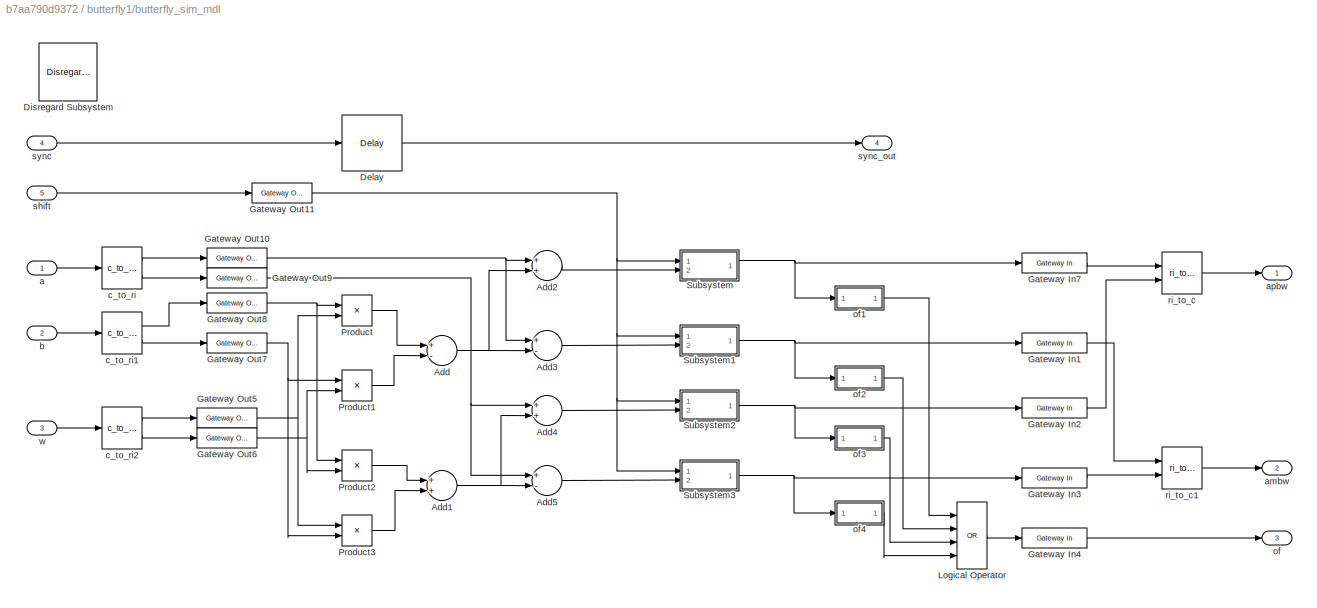
BLOCK [SubSystem] butterfly1/butterfly_sim_mdl
  FunctionWithSeparateData = off
  MaskHideContents = off
  MinAlgLoopOccurrences = off
  Opaque = off
  Ports = [5, 4]
  PropExecContextOutsideSubsystem = off
  RTWSystemCode = Auto
  RequestExecContextInheritance = off
BLOCK [Sum] butterfly1/butterfly_sim_mdl/Add
  InputSameDT = off
  Inputs = +-
  OutDataTypeStr = Inherit: Inherit via internal rule
  Ports = [2, 1]
  SaturateOnIntegerOverflow = off
BLOCK [Sum] butterfly1/butterfly_sim_mdl/Add1
  InputSameDT = off
  OutDataTypeStr = Inherit: Inherit via internal rule
  Ports = [2, 1]
  SaturateOnIntegerOverflow = off
BLOCK [Sum] butterfly1/butterfly_sim_mdl/Add2
  InputSameDT = off
  OutDataTypeStr = Inherit: Inherit via internal rule
  Ports = [2, 1]
  SaturateOnIntegerOverflow = off
BLOCK [Sum] butterfly1/butterfly_sim_mdl/Add3
  InputSameDT = off
  Inputs = +-
  OutDataTypeStr = Inherit: Inherit via internal rule
  Ports = [2, 1]
  SaturateOnIntegerOverflow = off
BLOCK [Sum] butterfly1/butterfly_sim_mdl/Add4
  InputSameDT = off
  OutDataTypeStr = Inherit: Inherit via internal rule
  Ports = [2, 1]
  SaturateOnIntegerOverflow = off
BLOCK [Sum] butterfly1/butterfly_sim_mdl/Add5
  InputSameDT = off
  Inputs = +-
  OutDataTypeStr = Inherit: Inherit via internal rule
  Ports = [2, 1]
  SaturateOnIntegerOverflow = off
BLOCK [Reference] butterfly1/butterfly_sim_mdl/Delay  REF=xbsIndex_r4/Delay
  Ports = [1, 1]
  SourceBlock = xbsIndex_r4/Delay
  SourceType = Xilinx Delay Block
  block_type = delay
  dbl_ovrd = off
  en = off
  has_advanced_control = 0
  infoedit = Hardware notes: A delay line is a chain, each link of which is an SRL16 followed by a flip-flop.
  infoeditControl = Selection of Reset will increase slice count due to use of real FFs and instead of SRLs
  latency = 9
  reg_retiming = off
  rst = off
  sg_icon_stat = 60,56,1,1,white,blue,0,c2fef566,right,,[ ],[ ]
  sggui_pos = 20,25,451,405
  xl_area = [0,0,0,0,0,0,0]
  xl_use_area = off
BLOCK [Reference] butterfly1/butterfly_sim_mdl/Disregard Subsystem  REF=xbsIndex_r4/Disregard Subsystem
  AttributesFormatString = Disregard Subsystem\nFor Generation
  Ports = []
  SourceBlock = xbsIndex_r4/Disregard Subsystem
  SourceType = Xilinx Disregard Subsystem For Generation Block
  Tag = discardX
  block_type = disregard
  has_advanced_control = 0
  infoedit = Place this block into a subsystem to have System Generator ignore the subsystem during code generation. This block can be used in combination with the Simulation Multiplexer block to provide an alternative simulation model for another subsystem (e.g., to provide a simulation model for a black box).
  sg_icon_stat = 58,58,-1,-1,darkgray,black,0,07734,right,,[ ],[ ]
  sg_mask_display = fprintf('','COMMENT: begin icon graphics');\npatch([0 58 58 0 0 ],[0 0 58 58 0 ],[0.1 0.1 0.1 ]);\nplot([0 58 58 0 0 ],[0 0 58 58 0 ]);\npatch([11.2 22.76 30.76 38.76 46.76 30.76 19.2 11.2 ],[37.88 37.88 45.88 37.88 45.88 45.88 45.88 37.88 ],[0.33 0.33 0.33 ]);\npatch([19.2 30.76 22.76 11.2 19.2 ],[29.88 29.88 37.88 37.88 29.88 ],[0.261 0.261 0.261 ]);\npatch([11.2 22.76 30.76 19.2 11.2 ],[21.88 21.88 ...<+275ch>
  sggui_pos = -1,-1,-1,-1
BLOCK [Reference] butterfly1/butterfly_sim_mdl/Gateway In1  REF=xbsIndex_r4/Gateway In
  ADCChannel = '1'
  LOCs = {}
  Ports = [1, 1]
  SourceBlock = xbsIndex_r4/Gateway In
  SourceType = Xilinx Gateway In Block
  UseAsADC = off
  arith_type = Signed  (2's comp)
  bin_pt = 17
  block_type = gatewayin
  dbl_ovrd = off
  exp_width = 8
  frac_width = 24
  gui_display_data_type = Fixed-point
  has_advanced_control = 0
  hdl_port = on
  infoedit = Gateway in block.  Converts inputs of type Simulink integer, single, double and fixed-point to  Xilinx fixed-point or floating-point data type.<br><br>Hardware notes:  In hardware these blocks become top level input ports.  <repeated x11 — deduplicated; at blocks: Gateway In1, Gateway In2, Gateway In3, Gateway In4, Gateway In7, gateway_imag, gateway_real>
  inherit_from_input = off
  locs_specified = off
  n_bits = 18
  overflow = Saturate
  period = 1
  preci_type = Single
  quantization = Round  (unbiased: +/- Inf)
  sg_icon_stat = 65,20,1,1,white,yellow,1,00d3666e,right,,[ ],[ ]
  sg_mask_display = fprintf('','COMMENT: begin icon graphics');\npatch([0 65 65 0 0 ],[0 0 20 20 0 ],[0.95 0.93 0.65 ]);\nplot([0 65 65 0 0 ],[0 0 20 20 0 ]);\npatch([27.55 30.44 32.44 34.44 36.44 32.44 29.55 27.55 ],[12.22 12.22 14.22 12.22 14.22 14.22 14.22 12.22 ],[1 1 1 ]);\npatch([29.55 32.44 30.44 27.55 29.55 ],[10.22 10.22 12.22 12.22 10.22 ],[0.985 0.979 0.895 ]);\npatch([27.55 30.44 32.44 29.55 27.55 ],[8.22 8.22...<+383ch>  <repeated x11 — deduplicated; at blocks: Gateway In1, Gateway In2, Gateway In3, Gateway In4, Gateway In7, gateway_imag, gateway_real>
  sggui_pos = 20,25,451,691
  timing_constraint = None
  xl_area = [0,0,0,0,0,0,0]
  xl_use_area = off
BLOCK [Reference] butterfly1/butterfly_sim_mdl/Gateway In2  REF=xbsIndex_r4/Gateway In
  ADCChannel = '1'
  LOCs = {}
  Ports = [1, 1]
  SourceBlock = xbsIndex_r4/Gateway In
  SourceType = Xilinx Gateway In Block
  UseAsADC = off
  arith_type = Signed  (2's comp)
  bin_pt = 17
  block_type = gatewayin
  dbl_ovrd = off
  exp_width = 8
  frac_width = 24
  gui_display_data_type = Fixed-point
  has_advanced_control = 0
  hdl_port = on
  inherit_from_input = off
  locs_specified = off
  n_bits = 18
  overflow = Saturate
  period = 1
  preci_type = Single
  quantization = Round  (unbiased: +/- Inf)
  sg_icon_stat = 65,20,1,1,white,yellow,1,00d3666e,right,,[ ],[ ]
  sggui_pos = 20,25,451,691
  timing_constraint = None
  xl_area = [0,0,0,0,0,0,0]
  xl_use_area = off
BLOCK [Reference] butterfly1/butterfly_sim_mdl/Gateway In3  REF=xbsIndex_r4/Gateway In
  ADCChannel = '1'
  LOCs = {}
  Ports = [1, 1]
  SourceBlock = xbsIndex_r4/Gateway In
  SourceType = Xilinx Gateway In Block
  UseAsADC = off
  arith_type = Signed  (2's comp)
  bin_pt = 17
  block_type = gatewayin
  dbl_ovrd = off
  exp_width = 8
  frac_width = 24
  gui_display_data_type = Fixed-point
  has_advanced_control = 0
  hdl_port = on
  inherit_from_input = off
  locs_specified = off
  n_bits = 18
  overflow = Saturate
  period = 1
  preci_type = Single
  quantization = Round  (unbiased: +/- Inf)
  sg_icon_stat = 65,20,1,1,white,yellow,1,00d3666e,right,,[ ],[ ]
  sggui_pos = 20,25,451,691
  timing_constraint = None
  xl_area = [0,0,0,0,0,0,0]
  xl_use_area = off
BLOCK [Reference] butterfly1/butterfly_sim_mdl/Gateway In4  REF=xbsIndex_r4/Gateway In
  ADCChannel = '1'
  LOCs = {}
  Ports = [1, 1]
  SourceBlock = xbsIndex_r4/Gateway In
  SourceType = Xilinx Gateway In Block
  UseAsADC = off
  arith_type = Boolean
  bin_pt = 17
  block_type = gatewayin
  dbl_ovrd = off
  exp_width = 8
  frac_width = 24
  gui_display_data_type = Boolean
  has_advanced_control = 0
  hdl_port = on
  inherit_from_input = off
  locs_specified = off
  n_bits = 18
  overflow = Saturate
  period = 1
  preci_type = Single
  quantization = Round  (unbiased: +/- Inf)
  sg_icon_stat = 65,20,1,1,white,yellow,1,00d3666e,right,,[ ],[ ]
  sggui_pos = 20,25,451,691
  timing_constraint = None
  xl_area = [0,0,0,0,0,0,0]
  xl_use_area = off
BLOCK [Reference] butterfly1/butterfly_sim_mdl/Gateway In7  REF=xbsIndex_r4/Gateway In
  ADCChannel = '1'
  LOCs = {}
  Ports = [1, 1]
  SourceBlock = xbsIndex_r4/Gateway In
  SourceType = Xilinx Gateway In Block
  UseAsADC = off
  arith_type = Signed  (2's comp)
  bin_pt = 17
  block_type = gatewayin
  dbl_ovrd = off
  exp_width = 8
  frac_width = 24
  gui_display_data_type = Fixed-point
  has_advanced_control = 0
  hdl_port = on
  inherit_from_input = off
  locs_specified = off
  n_bits = 18
  overflow = Saturate
  period = 1
  preci_type = Single
  quantization = Round  (unbiased: +/- Inf)
  sg_icon_stat = 65,20,1,1,white,yellow,1,00d3666e,right,,[ ],[ ]
  sggui_pos = 20,25,451,691
  timing_constraint = None
  xl_area = [0,0,0,0,0,0,0]
  xl_use_area = off
BLOCK [Reference] butterfly1/butterfly_sim_mdl/Gateway Out10  REF=xbsIndex_r4/Gateway Out
  DACChannel = '1'
  LOCs = {}
  Ports = [1, 1]
  SourceBlock = xbsIndex_r4/Gateway Out
  SourceType = Xilinx Gateway Out Block
  UseAsDAC = off
  block_type = gatewayout
  has_advanced_control = 0
  hdl_port = on
  infoedit = Gateway out block.  Converts Xilinx fixed-point or floating-point type inputs into ouputs of type Simulink integer, single, double, or fixed-point.<br><br>Hardware notes:  In hardware these blocks become top level output ports or are discarded, depending on how they are configured.  <repeated x25 — deduplicated; at blocks: Gateway Out10, Gateway Out11, Gateway Out5, Gateway Out6, Gateway Out7, Gateway Out8, Gateway Out9, imag_gateway, real_gateway, gateway>
  inherit_from_input = off
  locs_specified = off
  sg_icon_stat = 60,20,1,1,white,yellow,1,cc31b7ac,right,,[ ],[ ]
  sg_mask_display = fprintf('','COMMENT: begin icon graphics');\npatch([0 60 60 0 0 ],[0 0 20 20 0 ],[0.95 0.93 0.65 ]);\nplot([0 60 60 0 0 ],[0 0 20 20 0 ]);\npatch([25.55 28.44 30.44 32.44 34.44 30.44 27.55 25.55 ],[12.22 12.22 14.22 12.22 14.22 14.22 14.22 12.22 ],[1 1 1 ]);\npatch([27.55 30.44 28.44 25.55 27.55 ],[10.22 10.22 12.22 12.22 10.22 ],[0.985 0.979 0.895 ]);\npatch([25.55 28.44 30.44 27.55 25.55 ],[8.22 8.22...<+384ch>  <repeated x7 — deduplicated; at blocks: Gateway Out10, Gateway Out11, Gateway Out5, Gateway Out6, Gateway Out7, Gateway Out8, Gateway Out9>
  sggui_pos = -1,-1,-1,-1
  timing_constraint = None
  xl_area = [0,0,0,0,0,0,0]
  xl_use_area = off
BLOCK [Reference] butterfly1/butterfly_sim_mdl/Gateway Out11  REF=xbsIndex_r4/Gateway Out
  DACChannel = '1'
  LOCs = {}
  Ports = [1, 1]
  SourceBlock = xbsIndex_r4/Gateway Out
  SourceType = Xilinx Gateway Out Block
  UseAsDAC = off
  block_type = gatewayout
  has_advanced_control = 0
  hdl_port = on
  inherit_from_input = off
  locs_specified = off
  sg_icon_stat = 60,20,1,1,white,yellow,1,cc31b7ac,right,,[ ],[ ]
  sggui_pos = -1,-1,-1,-1
  timing_constraint = None
  xl_area = [0,0,0,0,0,0,0]
  xl_use_area = off
BLOCK [Reference] butterfly1/butterfly_sim_mdl/Gateway Out5  REF=xbsIndex_r4/Gateway Out
  DACChannel = '1'
  LOCs = {}
  Ports = [1, 1]
  SourceBlock = xbsIndex_r4/Gateway Out
  SourceType = Xilinx Gateway Out Block
  UseAsDAC = off
  block_type = gatewayout
  has_advanced_control = 0
  hdl_port = on
  inherit_from_input = off
  locs_specified = off
  sg_icon_stat = 60,20,1,1,white,yellow,1,cc31b7ac,right,,[ ],[ ]
  sggui_pos = -1,-1,-1,-1
  timing_constraint = None
  xl_area = [0,0,0,0,0,0,0]
  xl_use_area = off
BLOCK [Reference] butterfly1/butterfly_sim_mdl/Gateway Out6  REF=xbsIndex_r4/Gateway Out
  DACChannel = '1'
  LOCs = {}
  Ports = [1, 1]
  SourceBlock = xbsIndex_r4/Gateway Out
  SourceType = Xilinx Gateway Out Block
  UseAsDAC = off
  block_type = gatewayout
  has_advanced_control = 0
  hdl_port = on
  inherit_from_input = off
  locs_specified = off
  sg_icon_stat = 60,20,1,1,white,yellow,1,cc31b7ac,right,,[ ],[ ]
  sggui_pos = -1,-1,-1,-1
  timing_constraint = None
  xl_area = [0,0,0,0,0,0,0]
  xl_use_area = off
BLOCK [Reference] butterfly1/butterfly_sim_mdl/Gateway Out7  REF=xbsIndex_r4/Gateway Out
  DACChannel = '1'
  LOCs = {}
  Ports = [1, 1]
  SourceBlock = xbsIndex_r4/Gateway Out
  SourceType = Xilinx Gateway Out Block
  UseAsDAC = off
  block_type = gatewayout
  has_advanced_control = 0
  hdl_port = on
  inherit_from_input = off
  locs_specified = off
  sg_icon_stat = 60,20,1,1,white,yellow,1,cc31b7ac,right,,[ ],[ ]
  sggui_pos = -1,-1,-1,-1
  timing_constraint = None
  xl_area = [0,0,0,0,0,0,0]
  xl_use_area = off
BLOCK [Reference] butterfly1/butterfly_sim_mdl/Gateway Out8  REF=xbsIndex_r4/Gateway Out
  DACChannel = '1'
  LOCs = {}
  Ports = [1, 1]
  SourceBlock = xbsIndex_r4/Gateway Out
  SourceType = Xilinx Gateway Out Block
  UseAsDAC = off
  block_type = gatewayout
  has_advanced_control = 0
  hdl_port = on
  inherit_from_input = off
  locs_specified = off
  sg_icon_stat = 60,20,1,1,white,yellow,1,cc31b7ac,right,,[ ],[ ]
  sggui_pos = -1,-1,-1,-1
  timing_constraint = None
  xl_area = [0,0,0,0,0,0,0]
  xl_use_area = off
BLOCK [Reference] butterfly1/butterfly_sim_mdl/Gateway Out9  REF=xbsIndex_r4/Gateway Out
  DACChannel = '1'
  LOCs = {}
  Ports = [1, 1]
  SourceBlock = xbsIndex_r4/Gateway Out
  SourceType = Xilinx Gateway Out Block
  UseAsDAC = off
  block_type = gatewayout
  has_advanced_control = 0
  hdl_port = on
  inherit_from_input = off
  locs_specified = off
  sg_icon_stat = 60,20,1,1,white,yellow,1,cc31b7ac,right,,[ ],[ ]
  sggui_pos = -1,-1,-1,-1
  timing_constraint = None
  xl_area = [0,0,0,0,0,0,0]
  xl_use_area = off
BLOCK [Logic] butterfly1/butterfly_sim_mdl/Logical Operator
  AllPortsSameDT = off
  Inputs = 4
  Operator = OR
  OutDataTypeStr = boolean
  Ports = [4, 1]
BLOCK [Product] butterfly1/butterfly_sim_mdl/Product
  InputSameDT = off
  OutDataTypeStr = Inherit: Inherit via internal rule
  Ports = [2, 1]
  SaturateOnIntegerOverflow = off
BLOCK [Product] butterfly1/butterfly_sim_mdl/Product1
  InputSameDT = off
  OutDataTypeStr = Inherit: Inherit via internal rule
  Ports = [2, 1]
  SaturateOnIntegerOverflow = off
BLOCK [Product] butterfly1/butterfly_sim_mdl/Product2
  InputSameDT = off
  OutDataTypeStr = Inherit: Inherit via internal rule
  Ports = [2, 1]
  SaturateOnIntegerOverflow = off
BLOCK [Product] butterfly1/butterfly_sim_mdl/Product3
  InputSameDT = off
  OutDataTypeStr = Inherit: Inherit via internal rule
  Ports = [2, 1]
  SaturateOnIntegerOverflow = off
BLOCK [SubSystem] butterfly1/butterfly_sim_mdl/Subsystem
  FunctionWithSeparateData = off
  MaskHideContents = off
  MinAlgLoopOccurrences = off
  Opaque = off
  Ports = [2, 1]
  PropExecContextOutsideSubsystem = off
  RTWSystemCode = Auto
  RequestExecContextInheritance = off
BLOCK [Gain] butterfly1/butterfly_sim_mdl/Subsystem/Gain
  Gain = 0.5
  OutDataTypeStr = Inherit: Inherit via internal rule
  ParamDataTypeStr = Inherit: Inherit via internal rule
  SaturateOnIntegerOverflow = off
BLOCK [Outport] butterfly1/butterfly_sim_mdl/Subsystem/Out1
  IconDisplay = Port number
BLOCK [Inport] butterfly1/butterfly_sim_mdl/Subsystem/a
  IconDisplay = Port number
  Port = 2
BLOCK [Inport] butterfly1/butterfly_sim_mdl/Subsystem/sel
  IconDisplay = Port number
BLOCK [MultiPortSwitch] butterfly1/butterfly_sim_mdl/Subsystem/switch
  DataPortOrder = Zero-based contiguous
  InputSameDT = off
  Inputs = 2
  Ports = [3, 1]
  SaturateOnIntegerOverflow = off
  zeroidx = on
BLOCK [SubSystem] butterfly1/butterfly_sim_mdl/Subsystem1
  FunctionWithSeparateData = off
  MaskHideContents = off
  MinAlgLoopOccurrences = off
  Opaque = off
  Ports = [2, 1]
  PropExecContextOutsideSubsystem = off
  RTWSystemCode = Auto
  RequestExecContextInheritance = off
BLOCK [Gain] butterfly1/butterfly_sim_mdl/Subsystem1/Gain
  Gain = 0.5
  OutDataTypeStr = Inherit: Inherit via internal rule
  ParamDataTypeStr = Inherit: Inherit via internal rule
  SaturateOnIntegerOverflow = off
BLOCK [Outport] butterfly1/butterfly_sim_mdl/Subsystem1/Out1
  IconDisplay = Port number
BLOCK [Inport] butterfly1/butterfly_sim_mdl/Subsystem1/a
  IconDisplay = Port number
  Port = 2
BLOCK [Inport] butterfly1/butterfly_sim_mdl/Subsystem1/sel
  IconDisplay = Port number
BLOCK [MultiPortSwitch] butterfly1/butterfly_sim_mdl/Subsystem1/switch
  DataPortOrder = Zero-based contiguous
  InputSameDT = off
  Inputs = 2
  Ports = [3, 1]
  SaturateOnIntegerOverflow = off
  zeroidx = on
BLOCK [SubSystem] butterfly1/butterfly_sim_mdl/Subsystem2
  FunctionWithSeparateData = off
  MaskHideContents = off
  MinAlgLoopOccurrences = off
  Opaque = off
  Ports = [2, 1]
  PropExecContextOutsideSubsystem = off
  RTWSystemCode = Auto
  RequestExecContextInheritance = off
BLOCK [Gain] butterfly1/butterfly_sim_mdl/Subsystem2/Gain
  Gain = 0.5
  OutDataTypeStr = Inherit: Inherit via internal rule
  ParamDataTypeStr = Inherit: Inherit via internal rule
  SaturateOnIntegerOverflow = off
BLOCK [Outport] butterfly1/butterfly_sim_mdl/Subsystem2/Out1
  IconDisplay = Port number
BLOCK [Inport] butterfly1/butterfly_sim_mdl/Subsystem2/a
  IconDisplay = Port number
  Port = 2
BLOCK [Inport] butterfly1/butterfly_sim_mdl/Subsystem2/sel
  IconDisplay = Port number
BLOCK [MultiPortSwitch] butterfly1/butterfly_sim_mdl/Subsystem2/switch
  DataPortOrder = Zero-based contiguous
  InputSameDT = off
  Inputs = 2
  Ports = [3, 1]
  SaturateOnIntegerOverflow = off
  zeroidx = on
BLOCK [SubSystem] butterfly1/butterfly_sim_mdl/Subsystem3
  FunctionWithSeparateData = off
  MaskHideContents = off
  MinAlgLoopOccurrences = off
  Opaque = off
  Ports = [2, 1]
  PropExecContextOutsideSubsystem = off
  RTWSystemCode = Auto
  RequestExecContextInheritance = off
BLOCK [Gain] butterfly1/butterfly_sim_mdl/Subsystem3/Gain
  Gain = 0.5
  OutDataTypeStr = Inherit: Inherit via internal rule
  ParamDataTypeStr = Inherit: Inherit via internal rule
  SaturateOnIntegerOverflow = off
BLOCK [Outport] butterfly1/butterfly_sim_mdl/Subsystem3/Out1
  IconDisplay = Port number
BLOCK [Inport] butterfly1/butterfly_sim_mdl/Subsystem3/a
  IconDisplay = Port number
  Port = 2
BLOCK [Inport] butterfly1/butterfly_sim_mdl/Subsystem3/sel
  IconDisplay = Port number
BLOCK [MultiPortSwitch] butterfly1/butterfly_sim_mdl/Subsystem3/switch
  DataPortOrder = Zero-based contiguous
  InputSameDT = off
  Inputs = 2
  Ports = [3, 1]
  SaturateOnIntegerOverflow = off
  zeroidx = on
BLOCK [Inport] butterfly1/butterfly_sim_mdl/a
  IconDisplay = Port number
BLOCK [Outport] butterfly1/butterfly_sim_mdl/ambw
  IconDisplay = Port number
  Port = 2
BLOCK [Outport] butterfly1/butterfly_sim_mdl/apbw
  IconDisplay = Port number
BLOCK [Inport] butterfly1/butterfly_sim_mdl/b
  IconDisplay = Port number
  Port = 2
BLOCK [Reference] butterfly1/butterfly_sim_mdl/c_to_ri  REF=casper_library_misc/c_to_ri  (lib defined in mdl_357510c33b49, mdl_57b5f564ae26, +4 more)
  AttributesFormatString = 18_17 r/i
  Ports = [1, 2]
  SourceBlock = casper_library_misc/c_to_ri
  SourceType = c_to_ri
  UserDataPersistent = on
  bin_pt = 17
  n_bits = 18
BLOCK [Reference] butterfly1/butterfly_sim_mdl/c_to_ri1  REF=casper_library_misc/c_to_ri  (lib defined in mdl_357510c33b49, mdl_57b5f564ae26, +4 more)
  AttributesFormatString = 18_17 r/i
  Ports = [1, 2]
  SourceBlock = casper_library_misc/c_to_ri
  SourceType = c_to_ri
  UserDataPersistent = on
  bin_pt = 17
  n_bits = 18
BLOCK [Reference] butterfly1/butterfly_sim_mdl/c_to_ri2  REF=casper_library_misc/c_to_ri  (lib defined in mdl_357510c33b49, mdl_57b5f564ae26, +4 more)
  AttributesFormatString = 18_17 r/i
  Ports = [1, 2]
  SourceBlock = casper_library_misc/c_to_ri
  SourceType = c_to_ri
  UserDataPersistent = on
  bin_pt = 17
  n_bits = 18
BLOCK [Outport] butterfly1/butterfly_sim_mdl/of
  IconDisplay = Port number
  Port = 3
BLOCK [SubSystem] butterfly1/butterfly_sim_mdl/of1
  FunctionWithSeparateData = off
  MaskHideContents = off
  MinAlgLoopOccurrences = off
  Opaque = off
  Ports = [1, 1]
  PropExecContextOutsideSubsystem = off
  RTWSystemCode = Auto
  RequestExecContextInheritance = off
BLOCK [Reference] butterfly1/butterfly_sim_mdl/of1/Compare To Constant  REF=simulink/Logic and Bit
Operations/Compare
To Constant
  OutDataTypeStr = boolean
  Ports = [1, 1]
  SourceBlock = simulink/Logic and Bit\nOperations/Compare\nTo Constant
  SourceType = Compare To Constant
  ZeroCross = on
  const = -1
  relop = <
BLOCK [Reference] butterfly1/butterfly_sim_mdl/of1/Compare To Constant1  REF=simulink/Logic and Bit
Operations/Compare
To Constant
  OutDataTypeStr = boolean
  Ports = [1, 1]
  SourceBlock = simulink/Logic and Bit\nOperations/Compare\nTo Constant
  SourceType = Compare To Constant
  ZeroCross = on
  const = 1
  relop = >=
BLOCK [Inport] butterfly1/butterfly_sim_mdl/of1/In1
  IconDisplay = Port number
BLOCK [Logic] butterfly1/butterfly_sim_mdl/of1/Logical Operator
  AllPortsSameDT = off
  Operator = OR
  OutDataTypeStr = boolean
  Ports = [2, 1]
BLOCK [Outport] butterfly1/butterfly_sim_mdl/of1/Out1
  IconDisplay = Port number
BLOCK [SubSystem] butterfly1/butterfly_sim_mdl/of2
  FunctionWithSeparateData = off
  MaskHideContents = off
  MinAlgLoopOccurrences = off
  Opaque = off
  Ports = [1, 1]
  PropExecContextOutsideSubsystem = off
  RTWSystemCode = Auto
  RequestExecContextInheritance = off
BLOCK [Reference] butterfly1/butterfly_sim_mdl/of2/Compare To Constant  REF=simulink/Logic and Bit
Operations/Compare
To Constant
  OutDataTypeStr = boolean
  Ports = [1, 1]
  SourceBlock = simulink/Logic and Bit\nOperations/Compare\nTo Constant
  SourceType = Compare To Constant
  ZeroCross = on
  const = -1
  relop = <
BLOCK [Reference] butterfly1/butterfly_sim_mdl/of2/Compare To Constant1  REF=simulink/Logic and Bit
Operations/Compare
To Constant
  OutDataTypeStr = boolean
  Ports = [1, 1]
  SourceBlock = simulink/Logic and Bit\nOperations/Compare\nTo Constant
  SourceType = Compare To Constant
  ZeroCross = on
  const = 1
  relop = >=
BLOCK [Inport] butterfly1/butterfly_sim_mdl/of2/In1
  IconDisplay = Port number
BLOCK [Logic] butterfly1/butterfly_sim_mdl/of2/Logical Operator
  AllPortsSameDT = off
  Operator = OR
  OutDataTypeStr = boolean
  Ports = [2, 1]
BLOCK [Outport] butterfly1/butterfly_sim_mdl/of2/Out1
  IconDisplay = Port number
BLOCK [SubSystem] butterfly1/butterfly_sim_mdl/of3
  FunctionWithSeparateData = off
  MaskHideContents = off
  MinAlgLoopOccurrences = off
  Opaque = off
  Ports = [1, 1]
  PropExecContextOutsideSubsystem = off
  RTWSystemCode = Auto
  RequestExecContextInheritance = off
BLOCK [Reference] butterfly1/butterfly_sim_mdl/of3/Compare To Constant  REF=simulink/Logic and Bit
Operations/Compare
To Constant
  OutDataTypeStr = boolean
  Ports = [1, 1]
  SourceBlock = simulink/Logic and Bit\nOperations/Compare\nTo Constant
  SourceType = Compare To Constant
  ZeroCross = on
  const = -1
  relop = <
BLOCK [Reference] butterfly1/butterfly_sim_mdl/of3/Compare To Constant1  REF=simulink/Logic and Bit
Operations/Compare
To Constant
  OutDataTypeStr = boolean
  Ports = [1, 1]
  SourceBlock = simulink/Logic and Bit\nOperations/Compare\nTo Constant
  SourceType = Compare To Constant
  ZeroCross = on
  const = 1
  relop = >=
BLOCK [Inport] butterfly1/butterfly_sim_mdl/of3/In1
  IconDisplay = Port number
BLOCK [Logic] butterfly1/butterfly_sim_mdl/of3/Logical Operator
  AllPortsSameDT = off
  Operator = OR
  OutDataTypeStr = boolean
  Ports = [2, 1]
BLOCK [Outport] butterfly1/butterfly_sim_mdl/of3/Out1
  IconDisplay = Port number
BLOCK [SubSystem] butterfly1/butterfly_sim_mdl/of4
  FunctionWithSeparateData = off
  MaskHideContents = off
  MinAlgLoopOccurrences = off
  Opaque = off
  Ports = [1, 1]
  PropExecContextOutsideSubsystem = off
  RTWSystemCode = Auto
  RequestExecContextInheritance = off
BLOCK [Reference] butterfly1/butterfly_sim_mdl/of4/Compare To Constant  REF=simulink/Logic and Bit
Operations/Compare
To Constant
  OutDataTypeStr = boolean
  Ports = [1, 1]
  SourceBlock = simulink/Logic and Bit\nOperations/Compare\nTo Constant
  SourceType = Compare To Constant
  ZeroCross = on
  const = -1
  relop = <
BLOCK [Reference] butterfly1/butterfly_sim_mdl/of4/Compare To Constant1  REF=simulink/Logic and Bit
Operations/Compare
To Constant
  OutDataTypeStr = boolean
  Ports = [1, 1]
  SourceBlock = simulink/Logic and Bit\nOperations/Compare\nTo Constant
  SourceType = Compare To Constant
  ZeroCross = on
  const = 1
  relop = >=
BLOCK [Inport] butterfly1/butterfly_sim_mdl/of4/In1
  IconDisplay = Port number
BLOCK [Logic] butterfly1/butterfly_sim_mdl/of4/Logical Operator
  AllPortsSameDT = off
  Operator = OR
  OutDataTypeStr = boolean
  Ports = [2, 1]
BLOCK [Outport] butterfly1/butterfly_sim_mdl/of4/Out1
  IconDisplay = Port number
BLOCK [Reference] butterfly1/butterfly_sim_mdl/ri_to_c  REF=casper_library_misc/ri_to_c  (lib defined in mdl_357510c33b49, mdl_57b5f564ae26, +4 more)
  Ports = [2, 1]
  SourceBlock = casper_library_misc/ri_to_c
  SourceType = ri_to_c
  UserDataPersistent = on
BLOCK [Reference] butterfly1/butterfly_sim_mdl/ri_to_c1  REF=casper_library_misc/ri_to_c  (lib defined in mdl_357510c33b49, mdl_57b5f564ae26, +4 more)
  Ports = [2, 1]
  SourceBlock = casper_library_misc/ri_to_c
  SourceType = ri_to_c
  UserDataPersistent = on
BLOCK [Inport] butterfly1/butterfly_sim_mdl/shift
  IconDisplay = Port number
  Port = 5
BLOCK [Inport] butterfly1/butterfly_sim_mdl/sync
  IconDisplay = Port number
  Port = 4
BLOCK [Outport] butterfly1/butterfly_sim_mdl/sync_out
  IconDisplay = Port number
  Port = 4
BLOCK [Inport] butterfly1/butterfly_sim_mdl/w
  IconDisplay = Port number
  Port = 3
BLOCK [Outport] butterfly1/of
  IconDisplay = Port number
  Port = 3
BLOCK [Inport] butterfly1/shift
  IconDisplay = Port number
  Port = 5
BLOCK [Inport] butterfly1/sync
  IconDisplay = Port number
  Port = 4
BLOCK [Outport] butterfly1/sync_out
  IconDisplay = Port number
  Port = 4
BLOCK [Inport] butterfly1/w
  IconDisplay = Port number
  Port = 3
BLOCK [SubSystem] from_workspace_complex
  FunctionWithSeparateData = off
  MaskHideContents = off
  MinAlgLoopOccurrences = off
  Opaque = off
  Ports = [0, 1]
  PropExecContextOutsideSubsystem = off
  RTWSystemCode = Auto
  RequestExecContextInheritance = off
  UserDataPersistent = on
BLOCK [Outport] from_workspace_complex/a
  IconDisplay = Port number
BLOCK [ComplexToRealImag] from_workspace_complex/c_to_ri_simulink
  Ports = [1, 2]
BLOCK [Reference] from_workspace_complex/gateway_imag  REF=xbsIndex_r4/Gateway In
  ADCChannel = '1'
  LOCs = {}
  Ports = [1, 1]
  SourceBlock = xbsIndex_r4/Gateway In
  SourceType = Xilinx Gateway In Block
  UseAsADC = off
  arith_type = Signed  (2's comp)
  bin_pt = 17
  block_type = gatewayin
  dbl_ovrd = off
  exp_width = 8
  frac_width = 24
  gui_display_data_type = Fixed-point
  has_advanced_control = 0
  hdl_port = on
  inherit_from_input = off
  locs_specified = off
  n_bits = 18
  overflow = Wrap
  period = 1
  preci_type = Single
  quantization = Truncate
  sg_icon_stat = 65,20,1,1,white,yellow,1,00d3666e,right,,[ ],[ ]
  sggui_pos = -1,-1,-1,-1
  timing_constraint = None
  xl_area = [0,0,0,0,0,0,0]
  xl_use_area = off
BLOCK [Reference] from_workspace_complex/gateway_real  REF=xbsIndex_r4/Gateway In
  ADCChannel = '1'
  LOCs = {}
  Ports = [1, 1]
  SourceBlock = xbsIndex_r4/Gateway In
  SourceType = Xilinx Gateway In Block
  UseAsADC = off
  arith_type = Signed  (2's comp)
  bin_pt = 17
  block_type = gatewayin
  dbl_ovrd = off
  exp_width = 8
  frac_width = 24
  gui_display_data_type = Fixed-point
  has_advanced_control = 0
  hdl_port = on
  inherit_from_input = off
  locs_specified = off
  n_bits = 18
  overflow = Wrap
  period = 1
  preci_type = Single
  quantization = Truncate
  sg_icon_stat = 65,20,1,1,white,yellow,1,00d3666e,right,,[ ],[ ]
  sggui_pos = -1,-1,-1,-1
  timing_constraint = None
  xl_area = [0,0,0,0,0,0,0]
  xl_use_area = off
BLOCK [SubSystem] from_workspace_complex/ri_to_c
  FunctionWithSeparateData = off
  MaskHideContents = off
  MinAlgLoopOccurrences = off
  Opaque = off
  Ports = [2, 1]
  PropExecContextOutsideSubsystem = off
  RTWSystemCode = Auto
  RequestExecContextInheritance = off
BLOCK [Outport] from_workspace_complex/ri_to_c/c
  IconDisplay = Port number
BLOCK [Reference] from_workspace_complex/ri_to_c/concat  REF=xbsIndex_r4/Concat
  Ports = [2, 1]
  SourceBlock = xbsIndex_r4/Concat
  SourceType = Xilinx Bus Concatenator Block
  block_type = concat
  dbl_ovrd = off
  has_advanced_control = 0
  infoedit = Concatenates two or more inputs.  Output will be cast to an unsigned value with the binary point at zero.
  num_inputs = 2
  sg_icon_stat = 60,60,2,1,white,blue,0,16398980,right,,[ ],[ ]
  sggui_pos = -1,-1,-1,-1
BLOCK [Reference] from_workspace_complex/ri_to_c/force_im  REF=xbsIndex_r4/Reinterpret
  Ports = [1, 1]
  SourceBlock = xbsIndex_r4/Reinterpret
  SourceType = Xilinx Type Reinterpreter Block
  arith_type = Unsigned
  bin_pt = 0
  block_type = reinterpret
  force_arith_type = on
  force_bin_pt = on
  has_advanced_control = 0
  sg_icon_stat = 50,32,1,1,white,blue,0,6b04d0b0,right,,[ ],[ ]
  sggui_pos = -1,-1,-1,-1
BLOCK [Reference] from_workspace_complex/ri_to_c/force_re  REF=xbsIndex_r4/Reinterpret
  Ports = [1, 1]
  SourceBlock = xbsIndex_r4/Reinterpret
  SourceType = Xilinx Type Reinterpreter Block
  arith_type = Unsigned
  bin_pt = 0
  block_type = reinterpret
  force_arith_type = on
  force_bin_pt = on
  has_advanced_control = 0
  sg_icon_stat = 50,32,1,1,white,blue,0,6b04d0b0,right,,[ ],[ ]
  sggui_pos = -1,-1,-1,-1
BLOCK [Inport] from_workspace_complex/ri_to_c/im
  IconDisplay = Port number
  Port = 2
BLOCK [Inport] from_workspace_complex/ri_to_c/re
  IconDisplay = Port number
BLOCK [FromWorkspace] from_workspace_complex/workspace_var
  SampleTime = 0
  VariableName = a
  ZeroCross = on
BLOCK [SubSystem] from_workspace_complex1
  FunctionWithSeparateData = off
  MaskHideContents = off
  MinAlgLoopOccurrences = off
  Opaque = off
  Ports = [0, 1]
  PropExecContextOutsideSubsystem = off
  RTWSystemCode = Auto
  RequestExecContextInheritance = off
  UserDataPersistent = on
BLOCK [Outport] from_workspace_complex1/b
  IconDisplay = Port number
BLOCK [ComplexToRealImag] from_workspace_complex1/c_to_ri_simulink
  Ports = [1, 2]
BLOCK [Reference] from_workspace_complex1/gateway_imag  REF=xbsIndex_r4/Gateway In
  ADCChannel = '1'
  LOCs = {}
  Ports = [1, 1]
  SourceBlock = xbsIndex_r4/Gateway In
  SourceType = Xilinx Gateway In Block
  UseAsADC = off
  arith_type = Signed  (2's comp)
  bin_pt = 17
  block_type = gatewayin
  dbl_ovrd = off
  exp_width = 8
  frac_width = 24
  gui_display_data_type = Fixed-point
  has_advanced_control = 0
  hdl_port = on
  inherit_from_input = off
  locs_specified = off
  n_bits = 18
  overflow = Wrap
  period = 1
  preci_type = Single
  quantization = Truncate
  sg_icon_stat = 65,20,1,1,white,yellow,1,00d3666e,right,,[ ],[ ]
  sggui_pos = -1,-1,-1,-1
  timing_constraint = None
  xl_area = [0,0,0,0,0,0,0]
  xl_use_area = off
BLOCK [Reference] from_workspace_complex1/gateway_real  REF=xbsIndex_r4/Gateway In
  ADCChannel = '1'
  LOCs = {}
  Ports = [1, 1]
  SourceBlock = xbsIndex_r4/Gateway In
  SourceType = Xilinx Gateway In Block
  UseAsADC = off
  arith_type = Signed  (2's comp)
  bin_pt = 17
  block_type = gatewayin
  dbl_ovrd = off
  exp_width = 8
  frac_width = 24
  gui_display_data_type = Fixed-point
  has_advanced_control = 0
  hdl_port = on
  inherit_from_input = off
  locs_specified = off
  n_bits = 18
  overflow = Wrap
  period = 1
  preci_type = Single
  quantization = Truncate
  sg_icon_stat = 65,20,1,1,white,yellow,1,00d3666e,right,,[ ],[ ]
  sggui_pos = -1,-1,-1,-1
  timing_constraint = None
  xl_area = [0,0,0,0,0,0,0]
  xl_use_area = off
BLOCK [SubSystem] from_workspace_complex1/ri_to_c
  FunctionWithSeparateData = off
  MaskHideContents = off
  MinAlgLoopOccurrences = off
  Opaque = off
  Ports = [2, 1]
  PropExecContextOutsideSubsystem = off
  RTWSystemCode = Auto
  RequestExecContextInheritance = off
BLOCK [Outport] from_workspace_complex1/ri_to_c/c
  IconDisplay = Port number
BLOCK [Reference] from_workspace_complex1/ri_to_c/concat  REF=xbsIndex_r4/Concat
  Ports = [2, 1]
  SourceBlock = xbsIndex_r4/Concat
  SourceType = Xilinx Bus Concatenator Block
  block_type = concat
  dbl_ovrd = off
  has_advanced_control = 0
  infoedit = Concatenates two or more inputs.  Output will be cast to an unsigned value with the binary point at zero.
  num_inputs = 2
  sg_icon_stat = 60,60,2,1,white,blue,0,16398980,right,,[ ],[ ]
  sggui_pos = -1,-1,-1,-1
BLOCK [Reference] from_workspace_complex1/ri_to_c/force_im  REF=xbsIndex_r4/Reinterpret
  Ports = [1, 1]
  SourceBlock = xbsIndex_r4/Reinterpret
  SourceType = Xilinx Type Reinterpreter Block
  arith_type = Unsigned
  bin_pt = 0
  block_type = reinterpret
  force_arith_type = on
  force_bin_pt = on
  has_advanced_control = 0
  sg_icon_stat = 50,32,1,1,white,blue,0,6b04d0b0,right,,[ ],[ ]
  sggui_pos = -1,-1,-1,-1
BLOCK [Reference] from_workspace_complex1/ri_to_c/force_re  REF=xbsIndex_r4/Reinterpret
  Ports = [1, 1]
  SourceBlock = xbsIndex_r4/Reinterpret
  SourceType = Xilinx Type Reinterpreter Block
  arith_type = Unsigned
  bin_pt = 0
  block_type = reinterpret
  force_arith_type = on
  force_bin_pt = on
  has_advanced_control = 0
  sg_icon_stat = 50,32,1,1,white,blue,0,6b04d0b0,right,,[ ],[ ]
  sggui_pos = -1,-1,-1,-1
BLOCK [Inport] from_workspace_complex1/ri_to_c/im
  IconDisplay = Port number
  Port = 2
BLOCK [Inport] from_workspace_complex1/ri_to_c/re
  IconDisplay = Port number
BLOCK [FromWorkspace] from_workspace_complex1/workspace_var
  SampleTime = 0
  VariableName = b
  ZeroCross = on
BLOCK [SubSystem] from_workspace_complex2
  FunctionWithSeparateData = off
  MaskHideContents = off
  MinAlgLoopOccurrences = off
  Opaque = off
  Ports = [0, 1]
  PropExecContextOutsideSubsystem = off
  RTWSystemCode = Auto
  RequestExecContextInheritance = off
  UserDataPersistent = on
BLOCK [ComplexToRealImag] from_workspace_complex2/c_to_ri_simulink
  Ports = [1, 2]
BLOCK [Reference] from_workspace_complex2/gateway_imag  REF=xbsIndex_r4/Gateway In
  ADCChannel = '1'
  LOCs = {}
  Ports = [1, 1]
  SourceBlock = xbsIndex_r4/Gateway In
  SourceType = Xilinx Gateway In Block
  UseAsADC = off
  arith_type = Signed  (2's comp)
  bin_pt = 17
  block_type = gatewayin
  dbl_ovrd = off
  exp_width = 8
  frac_width = 24
  gui_display_data_type = Fixed-point
  has_advanced_control = 0
  hdl_port = on
  inherit_from_input = off
  locs_specified = off
  n_bits = 18
  overflow = Wrap
  period = 1
  preci_type = Single
  quantization = Truncate
  sg_icon_stat = 65,20,1,1,white,yellow,1,00d3666e,right,,[ ],[ ]
  sggui_pos = -1,-1,-1,-1
  timing_constraint = None
  xl_area = [0,0,0,0,0,0,0]
  xl_use_area = off
BLOCK [Reference] from_workspace_complex2/gateway_real  REF=xbsIndex_r4/Gateway In
  ADCChannel = '1'
  LOCs = {}
  Ports = [1, 1]
  SourceBlock = xbsIndex_r4/Gateway In
  SourceType = Xilinx Gateway In Block
  UseAsADC = off
  arith_type = Signed  (2's comp)
  bin_pt = 17
  block_type = gatewayin
  dbl_ovrd = off
  exp_width = 8
  frac_width = 24
  gui_display_data_type = Fixed-point
  has_advanced_control = 0
  hdl_port = on
  inherit_from_input = off
  locs_specified = off
  n_bits = 18
  overflow = Wrap
  period = 1
  preci_type = Single
  quantization = Truncate
  sg_icon_stat = 65,20,1,1,white,yellow,1,00d3666e,right,,[ ],[ ]
  sggui_pos = -1,-1,-1,-1
  timing_constraint = None
  xl_area = [0,0,0,0,0,0,0]
  xl_use_area = off
BLOCK [SubSystem] from_workspace_complex2/ri_to_c
  FunctionWithSeparateData = off
  MaskHideContents = off
  MinAlgLoopOccurrences = off
  Opaque = off
  Ports = [2, 1]
  PropExecContextOutsideSubsystem = off
  RTWSystemCode = Auto
  RequestExecContextInheritance = off
BLOCK [Outport] from_workspace_complex2/ri_to_c/c
  IconDisplay = Port number
BLOCK [Reference] from_workspace_complex2/ri_to_c/concat  REF=xbsIndex_r4/Concat
  Ports = [2, 1]
  SourceBlock = xbsIndex_r4/Concat
  SourceType = Xilinx Bus Concatenator Block
  block_type = concat
  dbl_ovrd = off
  has_advanced_control = 0
  infoedit = Concatenates two or more inputs.  Output will be cast to an unsigned value with the binary point at zero.
  num_inputs = 2
  sg_icon_stat = 60,60,2,1,white,blue,0,16398980,right,,[ ],[ ]
  sggui_pos = -1,-1,-1,-1
BLOCK [Reference] from_workspace_complex2/ri_to_c/force_im  REF=xbsIndex_r4/Reinterpret
  Ports = [1, 1]
  SourceBlock = xbsIndex_r4/Reinterpret
  SourceType = Xilinx Type Reinterpreter Block
  arith_type = Unsigned
  bin_pt = 0
  block_type = reinterpret
  force_arith_type = on
  force_bin_pt = on
  has_advanced_control = 0
  sg_icon_stat = 50,32,1,1,white,blue,0,6b04d0b0,right,,[ ],[ ]
  sggui_pos = -1,-1,-1,-1
BLOCK [Reference] from_workspace_complex2/ri_to_c/force_re  REF=xbsIndex_r4/Reinterpret
  Ports = [1, 1]
  SourceBlock = xbsIndex_r4/Reinterpret
  SourceType = Xilinx Type Reinterpreter Block
  arith_type = Unsigned
  bin_pt = 0
  block_type = reinterpret
  force_arith_type = on
  force_bin_pt = on
  has_advanced_control = 0
  sg_icon_stat = 50,32,1,1,white,blue,0,6b04d0b0,right,,[ ],[ ]
  sggui_pos = -1,-1,-1,-1
BLOCK [Inport] from_workspace_complex2/ri_to_c/im
  IconDisplay = Port number
  Port = 2
BLOCK [Inport] from_workspace_complex2/ri_to_c/re
  IconDisplay = Port number
BLOCK [Outport] from_workspace_complex2/w
  IconDisplay = Port number
BLOCK [FromWorkspace] from_workspace_complex2/workspace_var
  SampleTime = 0
  VariableName = w
  ZeroCross = on
BLOCK [Reference] shift_bool  REF=xbsIndex_r4/Constant
  Ports = [0, 1]
  SourceBlock = xbsIndex_r4/Constant
  SourceType = Xilinx Constant Block Block
  arith_type = Boolean
  bin_pt = 0
  block_type = constant
  carry = CIN
  const = 0
  dbl_ovrd = off
  dsp48_infoedit = The use of this block for DSP48 instructions is deprecated.  Please use the Opmode block.
  equ = P=C
  exp_width = 8
  explicit_period = on
  frac_width = 24
  gui_display_data_type = Boolean
  has_advanced_control = 0
  inp1 = P
  inp2 = PCIN>>17
  n_bits = 32
  opr = +
  opselect = C
  period = 1
  preci_type = Single
  sg_icon_stat = 50,18,0,1,white,blue,0,bf4ddd8b,right,,[ ],[ ]
  sg_mask_display = fprintf('','COMMENT: begin icon graphics');\npatch([0 50 50 0 0 ],[0 0 18 18 0 ],[0.77 0.82 0.91 ]);\nplot([0 50 50 0 0 ],[0 0 18 18 0 ]);\npatch([20.55 23.44 25.44 27.44 29.44 25.44 22.55 20.55 ],[11.22 11.22 13.22 11.22 13.22 13.22 13.22 11.22 ],[1 1 1 ]);\npatch([22.55 25.44 23.44 20.55 22.55 ],[9.22 9.22 11.22 11.22 9.22 ],[0.931 0.946 0.973 ]);\npatch([20.55 23.44 25.44 22.55 20.55 ],[7.22 7.22 9....<+300ch>
  sggui_pos = -1,-1,-1,-1
BLOCK [SubSystem] test_sync
  FunctionWithSeparateData = off
  MaskHideContents = off
  MinAlgLoopOccurrences = off
  Opaque = off
  Ports = [0, 1]
  PropExecContextOutsideSubsystem = off
  RTWSystemCode = Auto
  RequestExecContextInheritance = off
BLOCK [Reference] test_sync/Constant1  REF=xbsIndex_r4/Constant
  Ports = [0, 1]
  SourceBlock = xbsIndex_r4/Constant
  SourceType = Xilinx Constant Block Block
  arith_type = Boolean
  bin_pt = 14
  block_type = constant
  carry = CIN
  const = 1
  dbl_ovrd = off
  dsp48_infoedit = The use of this block for DSP48 instructions is deprecated.  Please use the Opmode block.
  equ = P=C
  exp_width = 8
  explicit_period = on
  frac_width = 24
  gui_display_data_type = Boolean
  has_advanced_control = 0
  inp1 = P
  inp2 = PCIN>>17
  n_bits = 16
  opr = +
  opselect = C
  period = 1
  preci_type = Single
  sg_icon_stat = 55,26,0,1,white,blue,0,1c72b5be,right,,[ ],[ ]
  sggui_pos = -1,-1,-1,-1
BLOCK [Outport] test_sync/Out1
  IconDisplay = Port number
BLOCK [Reference] test_sync/edge_detect  REF=casper_library_misc/edge_detect  (lib defined in mdl_357510c33b49, mdl_57b5f564ae26, +4 more)
  AttributesFormatString = rising edges\nactive high
  Ports = [1, 1]
  SourceBlock = casper_library_misc/edge_detect
  SourceType = edge_detect
  UserDataPersistent = on
  edge = Rising
  polarity = Active High
  x_in = [0 0.08 0.08 0.16 0.16 0.24 0.24 0.32 0.32 0.4]
  x_out = [0.6 0.68 0.68 0.76 0.76 0.84 0.84 0.92 0.92 1]
  y_in = [-1 -1  1  1  1  1  1  1  1  1]
  y_out = [-1 -1  1  1 -1 -1 -1 -1 -1 -1]
BLOCK [SubSystem] to_workspace_complex
  FunctionWithSeparateData = off
  MaskHideContents = off
  MinAlgLoopOccurrences = off
  Opaque = off
  Ports = [1, 1]
  PropExecContextOutsideSubsystem = off
  RTWSystemCode = Auto
  RequestExecContextInheritance = off
BLOCK [Outport] to_workspace_complex/_o
  IconDisplay = Port number
BLOCK [Inport] to_workspace_complex/apbw
  IconDisplay = Port number
BLOCK [SubSystem] to_workspace_complex/c_to_ri
  FunctionWithSeparateData = off
  MaskHideContents = off
  MinAlgLoopOccurrences = off
  Opaque = off
  Ports = [1, 2]
  PropExecContextOutsideSubsystem = off
  RTWSystemCode = Auto
  RequestExecContextInheritance = off
BLOCK [Inport] to_workspace_complex/c_to_ri/c
  IconDisplay = Port number
BLOCK [Reference] to_workspace_complex/c_to_ri/force_im  REF=xbsIndex_r4/Reinterpret
  Ports = [1, 1]
  SourceBlock = xbsIndex_r4/Reinterpret
  SourceType = Xilinx Type Reinterpreter Block
  arith_type = Signed  (2's comp)
  bin_pt = 17
  block_type = reinterpret
  force_arith_type = on
  force_bin_pt = on
  has_advanced_control = 0
  sg_icon_stat = 50,32,1,1,white,blue,0,6b04d0b0,right,,[ ],[ ]
  sggui_pos = -1,-1,-1,-1
BLOCK [Reference] to_workspace_complex/c_to_ri/force_re  REF=xbsIndex_r4/Reinterpret
  Ports = [1, 1]
  SourceBlock = xbsIndex_r4/Reinterpret
  SourceType = Xilinx Type Reinterpreter Block
  arith_type = Signed  (2's comp)
  bin_pt = 17
  block_type = reinterpret
  force_arith_type = on
  force_bin_pt = on
  has_advanced_control = 0
  sg_icon_stat = 50,32,1,1,white,blue,0,6b04d0b0,right,,[ ],[ ]
  sggui_pos = -1,-1,-1,-1
BLOCK [Outport] to_workspace_complex/c_to_ri/im
  IconDisplay = Port number
  Port = 2
BLOCK [Outport] to_workspace_complex/c_to_ri/re
  IconDisplay = Port number
BLOCK [Reference] to_workspace_complex/c_to_ri/slice_im  REF=xbsIndex_r4/Slice
  Ports = [1, 1]
  SourceBlock = xbsIndex_r4/Slice
  SourceType = Xilinx Bit Slice Extractor Block
  base0 = LSB of Input
  base1 = MSB of Input
  bit0 = 0
  bit1 = 0
  block_type = slice
  boolean_output = off
  dbl_ovrd = off
  has_advanced_control = 0
  mode = Lower Bit Location + Width
  nbits = 18
  sg_icon_stat = 60,30,1,1,white,blue,0,1fd851a7,right,,[ ],[ ]
  sggui_pos = -1,-1,-1,-1
BLOCK [Reference] to_workspace_complex/c_to_ri/slice_re  REF=xbsIndex_r4/Slice
  Ports = [1, 1]
  SourceBlock = xbsIndex_r4/Slice
  SourceType = Xilinx Bit Slice Extractor Block
  base0 = LSB of Input
  base1 = MSB of Input
  bit0 = 0
  bit1 = 0
  block_type = slice
  boolean_output = off
  dbl_ovrd = off
  has_advanced_control = 0
  mode = Upper Bit Location + Width
  nbits = 18
  sg_icon_stat = 60,30,1,1,white,blue,0,1fd851a7,right,,[ ],[ ]
  sggui_pos = -1,-1,-1,-1
BLOCK [Reference] to_workspace_complex/imag_gateway  REF=xbsIndex_r4/Gateway Out
  DACChannel = '1'
  LOCs = {}
  Ports = [1, 1]
  SourceBlock = xbsIndex_r4/Gateway Out
  SourceType = Xilinx Gateway Out Block
  UseAsDAC = off
  block_type = gatewayout
  has_advanced_control = 0
  hdl_port = off
  inherit_from_input = on
  locs_specified = off
  sg_icon_stat = 60,20,1,1,white,grey,1,632ec840,right,,[ ],[ ]
  sg_mask_display = fprintf('','COMMENT: begin icon graphics');\npatch([0 60 60 0 0 ],[0 0 20 20 0 ],[0.88 0.88 0.88 ]);\nplot([0 60 60 0 0 ],[0 0 20 20 0 ]);\npatch([25.55 28.44 30.44 32.44 34.44 30.44 27.55 25.55 ],[12.22 12.22 14.22 12.22 14.22 14.22 14.22 12.22 ],[1 1 1 ]);\npatch([27.55 30.44 28.44 25.55 27.55 ],[10.22 10.22 12.22 12.22 10.22 ],[0.964 0.964 0.964 ]);\npatch([25.55 28.44 30.44 27.55 25.55 ],[8.22 8.22...<+381ch>  <repeated x18 — deduplicated; at blocks: imag_gateway, real_gateway, gateway>
  sggui_pos = -1,-1,-1,-1
  timing_constraint = None
  xl_area = [0,0,0,0,0,0,0]
  xl_use_area = off
BLOCK [Reference] to_workspace_complex/real_gateway  REF=xbsIndex_r4/Gateway Out
  DACChannel = '1'
  LOCs = {}
  Ports = [1, 1]
  SourceBlock = xbsIndex_r4/Gateway Out
  SourceType = Xilinx Gateway Out Block
  UseAsDAC = off
  block_type = gatewayout
  has_advanced_control = 0
  hdl_port = off
  inherit_from_input = on
  locs_specified = off
  sg_icon_stat = 60,20,1,1,white,grey,1,632ec840,right,,[ ],[ ]
  sggui_pos = -1,-1,-1,-1
  timing_constraint = None
  xl_area = [0,0,0,0,0,0,0]
  xl_use_area = off
BLOCK [RealImagToComplex] to_workspace_complex/ri_to_c
  Ports = [2, 1]
BLOCK [ToWorkspace] to_workspace_complex/workspace_output
  MaxDataPoints = inf
  Ports = [1]
  SampleTime = -1
  VariableName = apbw
BLOCK [SubSystem] to_workspace_complex1
  FunctionWithSeparateData = off
  MaskHideContents = off
  MinAlgLoopOccurrences = off
  Opaque = off
  Ports = [1, 1]
  PropExecContextOutsideSubsystem = off
  RTWSystemCode = Auto
  RequestExecContextInheritance = off
BLOCK [Outport] to_workspace_complex1/_o
  IconDisplay = Port number
BLOCK [Inport] to_workspace_complex1/ambw
  IconDisplay = Port number
BLOCK [SubSystem] to_workspace_complex1/c_to_ri
  FunctionWithSeparateData = off
  MaskHideContents = off
  MinAlgLoopOccurrences = off
  Opaque = off
  Ports = [1, 2]
  PropExecContextOutsideSubsystem = off
  RTWSystemCode = Auto
  RequestExecContextInheritance = off
BLOCK [Inport] to_workspace_complex1/c_to_ri/c
  IconDisplay = Port number
BLOCK [Reference] to_workspace_complex1/c_to_ri/force_im  REF=xbsIndex_r4/Reinterpret
  Ports = [1, 1]
  SourceBlock = xbsIndex_r4/Reinterpret
  SourceType = Xilinx Type Reinterpreter Block
  arith_type = Signed  (2's comp)
  bin_pt = 17
  block_type = reinterpret
  force_arith_type = on
  force_bin_pt = on
  has_advanced_control = 0
  sg_icon_stat = 50,32,1,1,white,blue,0,6b04d0b0,right,,[ ],[ ]
  sggui_pos = -1,-1,-1,-1
BLOCK [Reference] to_workspace_complex1/c_to_ri/force_re  REF=xbsIndex_r4/Reinterpret
  Ports = [1, 1]
  SourceBlock = xbsIndex_r4/Reinterpret
  SourceType = Xilinx Type Reinterpreter Block
  arith_type = Signed  (2's comp)
  bin_pt = 17
  block_type = reinterpret
  force_arith_type = on
  force_bin_pt = on
  has_advanced_control = 0
  sg_icon_stat = 50,32,1,1,white,blue,0,6b04d0b0,right,,[ ],[ ]
  sggui_pos = -1,-1,-1,-1
BLOCK [Outport] to_workspace_complex1/c_to_ri/im
  IconDisplay = Port number
  Port = 2
BLOCK [Outport] to_workspace_complex1/c_to_ri/re
  IconDisplay = Port number
BLOCK [Reference] to_workspace_complex1/c_to_ri/slice_im  REF=xbsIndex_r4/Slice
  Ports = [1, 1]
  SourceBlock = xbsIndex_r4/Slice
  SourceType = Xilinx Bit Slice Extractor Block
  base0 = LSB of Input
  base1 = MSB of Input
  bit0 = 0
  bit1 = 0
  block_type = slice
  boolean_output = off
  dbl_ovrd = off
  has_advanced_control = 0
  mode = Lower Bit Location + Width
  nbits = 18
  sg_icon_stat = 60,30,1,1,white,blue,0,1fd851a7,right,,[ ],[ ]
  sggui_pos = -1,-1,-1,-1
BLOCK [Reference] to_workspace_complex1/c_to_ri/slice_re  REF=xbsIndex_r4/Slice
  Ports = [1, 1]
  SourceBlock = xbsIndex_r4/Slice
  SourceType = Xilinx Bit Slice Extractor Block
  base0 = LSB of Input
  base1 = MSB of Input
  bit0 = 0
  bit1 = 0
  block_type = slice
  boolean_output = off
  dbl_ovrd = off
  has_advanced_control = 0
  mode = Upper Bit Location + Width
  nbits = 18
  sg_icon_stat = 60,30,1,1,white,blue,0,1fd851a7,right,,[ ],[ ]
  sggui_pos = -1,-1,-1,-1
BLOCK [Reference] to_workspace_complex1/imag_gateway  REF=xbsIndex_r4/Gateway Out
  DACChannel = '1'
  LOCs = {}
  Ports = [1, 1]
  SourceBlock = xbsIndex_r4/Gateway Out
  SourceType = Xilinx Gateway Out Block
  UseAsDAC = off
  block_type = gatewayout
  has_advanced_control = 0
  hdl_port = off
  inherit_from_input = on
  locs_specified = off
  sg_icon_stat = 60,20,1,1,white,grey,1,632ec840,right,,[ ],[ ]
  sggui_pos = -1,-1,-1,-1
  timing_constraint = None
  xl_area = [0,0,0,0,0,0,0]
  xl_use_area = off
BLOCK [Reference] to_workspace_complex1/real_gateway  REF=xbsIndex_r4/Gateway Out
  DACChannel = '1'
  LOCs = {}
  Ports = [1, 1]
  SourceBlock = xbsIndex_r4/Gateway Out
  SourceType = Xilinx Gateway Out Block
  UseAsDAC = off
  block_type = gatewayout
  has_advanced_control = 0
  hdl_port = off
  inherit_from_input = on
  locs_specified = off
  sg_icon_stat = 60,20,1,1,white,grey,1,632ec840,right,,[ ],[ ]
  sggui_pos = -1,-1,-1,-1
  timing_constraint = None
  xl_area = [0,0,0,0,0,0,0]
  xl_use_area = off
BLOCK [RealImagToComplex] to_workspace_complex1/ri_to_c
  Ports = [2, 1]
BLOCK [ToWorkspace] to_workspace_complex1/workspace_output
  MaxDataPoints = inf
  Ports = [1]
  SampleTime = -1
  VariableName = ambw
BLOCK [SubSystem] to_workspace_complex2
  FunctionWithSeparateData = off
  MaskHideContents = off
  MinAlgLoopOccurrences = off
  Opaque = off
  Ports = [1, 1]
  PropExecContextOutsideSubsystem = off
  RTWSystemCode = Auto
  RequestExecContextInheritance = off
BLOCK [Outport] to_workspace_complex2/_o
  IconDisplay = Port number
BLOCK [Inport] to_workspace_complex2/a_fi
  IconDisplay = Port number
BLOCK [SubSystem] to_workspace_complex2/c_to_ri
  FunctionWithSeparateData = off
  MaskHideContents = off
  MinAlgLoopOccurrences = off
  Opaque = off
  Ports = [1, 2]
  PropExecContextOutsideSubsystem = off
  RTWSystemCode = Auto
  RequestExecContextInheritance = off
BLOCK [Inport] to_workspace_complex2/c_to_ri/c
  IconDisplay = Port number
BLOCK [Reference] to_workspace_complex2/c_to_ri/force_im  REF=xbsIndex_r4/Reinterpret
  Ports = [1, 1]
  SourceBlock = xbsIndex_r4/Reinterpret
  SourceType = Xilinx Type Reinterpreter Block
  arith_type = Signed  (2's comp)
  bin_pt = 17
  block_type = reinterpret
  force_arith_type = on
  force_bin_pt = on
  has_advanced_control = 0
  sg_icon_stat = 50,32,1,1,white,blue,0,6b04d0b0,right,,[ ],[ ]
  sggui_pos = -1,-1,-1,-1
BLOCK [Reference] to_workspace_complex2/c_to_ri/force_re  REF=xbsIndex_r4/Reinterpret
  Ports = [1, 1]
  SourceBlock = xbsIndex_r4/Reinterpret
  SourceType = Xilinx Type Reinterpreter Block
  arith_type = Signed  (2's comp)
  bin_pt = 17
  block_type = reinterpret
  force_arith_type = on
  force_bin_pt = on
  has_advanced_control = 0
  sg_icon_stat = 50,32,1,1,white,blue,0,6b04d0b0,right,,[ ],[ ]
  sggui_pos = -1,-1,-1,-1
BLOCK [Outport] to_workspace_complex2/c_to_ri/im
  IconDisplay = Port number
  Port = 2
BLOCK [Outport] to_workspace_complex2/c_to_ri/re
  IconDisplay = Port number
BLOCK [Reference] to_workspace_complex2/c_to_ri/slice_im  REF=xbsIndex_r4/Slice
  Ports = [1, 1]
  SourceBlock = xbsIndex_r4/Slice
  SourceType = Xilinx Bit Slice Extractor Block
  base0 = LSB of Input
  base1 = MSB of Input
  bit0 = 0
  bit1 = 0
  block_type = slice
  boolean_output = off
  dbl_ovrd = off
  has_advanced_control = 0
  mode = Lower Bit Location + Width
  nbits = 18
  sg_icon_stat = 60,30,1,1,white,blue,0,1fd851a7,right,,[ ],[ ]
  sggui_pos = -1,-1,-1,-1
BLOCK [Reference] to_workspace_complex2/c_to_ri/slice_re  REF=xbsIndex_r4/Slice
  Ports = [1, 1]
  SourceBlock = xbsIndex_r4/Slice
  SourceType = Xilinx Bit Slice Extractor Block
  base0 = LSB of Input
  base1 = MSB of Input
  bit0 = 0
  bit1 = 0
  block_type = slice
  boolean_output = off
  dbl_ovrd = off
  has_advanced_control = 0
  mode = Upper Bit Location + Width
  nbits = 18
  sg_icon_stat = 60,30,1,1,white,blue,0,1fd851a7,right,,[ ],[ ]
  sggui_pos = -1,-1,-1,-1
BLOCK [Reference] to_workspace_complex2/imag_gateway  REF=xbsIndex_r4/Gateway Out
  DACChannel = '1'
  LOCs = {}
  Ports = [1, 1]
  SourceBlock = xbsIndex_r4/Gateway Out
  SourceType = Xilinx Gateway Out Block
  UseAsDAC = off
  block_type = gatewayout
  has_advanced_control = 0
  hdl_port = off
  inherit_from_input = on
  locs_specified = off
  sg_icon_stat = 60,20,1,1,white,grey,1,632ec840,right,,[ ],[ ]
  sggui_pos = -1,-1,-1,-1
  timing_constraint = None
  xl_area = [0,0,0,0,0,0,0]
  xl_use_area = off
BLOCK [Reference] to_workspace_complex2/real_gateway  REF=xbsIndex_r4/Gateway Out
  DACChannel = '1'
  LOCs = {}
  Ports = [1, 1]
  SourceBlock = xbsIndex_r4/Gateway Out
  SourceType = Xilinx Gateway Out Block
  UseAsDAC = off
  block_type = gatewayout
  has_advanced_control = 0
  hdl_port = off
  inherit_from_input = on
  locs_specified = off
  sg_icon_stat = 60,20,1,1,white,grey,1,632ec840,right,,[ ],[ ]
  sggui_pos = -1,-1,-1,-1
  timing_constraint = None
  xl_area = [0,0,0,0,0,0,0]
  xl_use_area = off
BLOCK [RealImagToComplex] to_workspace_complex2/ri_to_c
  Ports = [2, 1]
BLOCK [ToWorkspace] to_workspace_complex2/workspace_output
  MaxDataPoints = inf
  Ports = [1]
  SampleTime = -1
  VariableName = a_fi
BLOCK [SubSystem] to_workspace_complex3
  FunctionWithSeparateData = off
  MaskHideContents = off
  MinAlgLoopOccurrences = off
  Opaque = off
  Ports = [1, 1]
  PropExecContextOutsideSubsystem = off
  RTWSystemCode = Auto
  RequestExecContextInheritance = off
BLOCK [Outport] to_workspace_complex3/_o
  IconDisplay = Port number
BLOCK [Inport] to_workspace_complex3/b_fi
  IconDisplay = Port number
BLOCK [SubSystem] to_workspace_complex3/c_to_ri
  FunctionWithSeparateData = off
  MaskHideContents = off
  MinAlgLoopOccurrences = off
  Opaque = off
  Ports = [1, 2]
  PropExecContextOutsideSubsystem = off
  RTWSystemCode = Auto
  RequestExecContextInheritance = off
BLOCK [Inport] to_workspace_complex3/c_to_ri/c
  IconDisplay = Port number
BLOCK [Reference] to_workspace_complex3/c_to_ri/force_im  REF=xbsIndex_r4/Reinterpret
  Ports = [1, 1]
  SourceBlock = xbsIndex_r4/Reinterpret
  SourceType = Xilinx Type Reinterpreter Block
  arith_type = Signed  (2's comp)
  bin_pt = 17
  block_type = reinterpret
  force_arith_type = on
  force_bin_pt = on
  has_advanced_control = 0
  sg_icon_stat = 50,32,1,1,white,blue,0,6b04d0b0,right,,[ ],[ ]
  sggui_pos = -1,-1,-1,-1
BLOCK [Reference] to_workspace_complex3/c_to_ri/force_re  REF=xbsIndex_r4/Reinterpret
  Ports = [1, 1]
  SourceBlock = xbsIndex_r4/Reinterpret
  SourceType = Xilinx Type Reinterpreter Block
  arith_type = Signed  (2's comp)
  bin_pt = 17
  block_type = reinterpret
  force_arith_type = on
  force_bin_pt = on
  has_advanced_control = 0
  sg_icon_stat = 50,32,1,1,white,blue,0,6b04d0b0,right,,[ ],[ ]
  sggui_pos = -1,-1,-1,-1
BLOCK [Outport] to_workspace_complex3/c_to_ri/im
  IconDisplay = Port number
  Port = 2
BLOCK [Outport] to_workspace_complex3/c_to_ri/re
  IconDisplay = Port number
BLOCK [Reference] to_workspace_complex3/c_to_ri/slice_im  REF=xbsIndex_r4/Slice
  Ports = [1, 1]
  SourceBlock = xbsIndex_r4/Slice
  SourceType = Xilinx Bit Slice Extractor Block
  base0 = LSB of Input
  base1 = MSB of Input
  bit0 = 0
  bit1 = 0
  block_type = slice
  boolean_output = off
  dbl_ovrd = off
  has_advanced_control = 0
  mode = Lower Bit Location + Width
  nbits = 18
  sg_icon_stat = 60,30,1,1,white,blue,0,1fd851a7,right,,[ ],[ ]
  sggui_pos = -1,-1,-1,-1
BLOCK [Reference] to_workspace_complex3/c_to_ri/slice_re  REF=xbsIndex_r4/Slice
  Ports = [1, 1]
  SourceBlock = xbsIndex_r4/Slice
  SourceType = Xilinx Bit Slice Extractor Block
  base0 = LSB of Input
  base1 = MSB of Input
  bit0 = 0
  bit1 = 0
  block_type = slice
  boolean_output = off
  dbl_ovrd = off
  has_advanced_control = 0
  mode = Upper Bit Location + Width
  nbits = 18
  sg_icon_stat = 60,30,1,1,white,blue,0,1fd851a7,right,,[ ],[ ]
  sggui_pos = -1,-1,-1,-1
BLOCK [Reference] to_workspace_complex3/imag_gateway  REF=xbsIndex_r4/Gateway Out
  DACChannel = '1'
  LOCs = {}
  Ports = [1, 1]
  SourceBlock = xbsIndex_r4/Gateway Out
  SourceType = Xilinx Gateway Out Block
  UseAsDAC = off
  block_type = gatewayout
  has_advanced_control = 0
  hdl_port = off
  inherit_from_input = on
  locs_specified = off
  sg_icon_stat = 60,20,1,1,white,grey,1,632ec840,right,,[ ],[ ]
  sggui_pos = -1,-1,-1,-1
  timing_constraint = None
  xl_area = [0,0,0,0,0,0,0]
  xl_use_area = off
BLOCK [Reference] to_workspace_complex3/real_gateway  REF=xbsIndex_r4/Gateway Out
  DACChannel = '1'
  LOCs = {}
  Ports = [1, 1]
  SourceBlock = xbsIndex_r4/Gateway Out
  SourceType = Xilinx Gateway Out Block
  UseAsDAC = off
  block_type = gatewayout
  has_advanced_control = 0
  hdl_port = off
  inherit_from_input = on
  locs_specified = off
  sg_icon_stat = 60,20,1,1,white,grey,1,632ec840,right,,[ ],[ ]
  sggui_pos = -1,-1,-1,-1
  timing_constraint = None
  xl_area = [0,0,0,0,0,0,0]
  xl_use_area = off
BLOCK [RealImagToComplex] to_workspace_complex3/ri_to_c
  Ports = [2, 1]
BLOCK [ToWorkspace] to_workspace_complex3/workspace_output
  MaxDataPoints = inf
  Ports = [1]
  SampleTime = -1
  VariableName = b_fi
BLOCK [SubSystem] to_workspace_complex4
  FunctionWithSeparateData = off
  MaskHideContents = off
  MinAlgLoopOccurrences = off
  Opaque = off
  Ports = [1, 1]
  PropExecContextOutsideSubsystem = off
  RTWSystemCode = Auto
  RequestExecContextInheritance = off
BLOCK [Outport] to_workspace_complex4/_o
  IconDisplay = Port number
BLOCK [SubSystem] to_workspace_complex4/c_to_ri
  FunctionWithSeparateData = off
  MaskHideContents = off
  MinAlgLoopOccurrences = off
  Opaque = off
  Ports = [1, 2]
  PropExecContextOutsideSubsystem = off
  RTWSystemCode = Auto
  RequestExecContextInheritance = off
BLOCK [Inport] to_workspace_complex4/c_to_ri/c
  IconDisplay = Port number
BLOCK [Reference] to_workspace_complex4/c_to_ri/force_im  REF=xbsIndex_r4/Reinterpret
  Ports = [1, 1]
  SourceBlock = xbsIndex_r4/Reinterpret
  SourceType = Xilinx Type Reinterpreter Block
  arith_type = Signed  (2's comp)
  bin_pt = 17
  block_type = reinterpret
  force_arith_type = on
  force_bin_pt = on
  has_advanced_control = 0
  sg_icon_stat = 50,32,1,1,white,blue,0,6b04d0b0,right,,[ ],[ ]
  sggui_pos = -1,-1,-1,-1
BLOCK [Reference] to_workspace_complex4/c_to_ri/force_re  REF=xbsIndex_r4/Reinterpret
  Ports = [1, 1]
  SourceBlock = xbsIndex_r4/Reinterpret
  SourceType = Xilinx Type Reinterpreter Block
  arith_type = Signed  (2's comp)
  bin_pt = 17
  block_type = reinterpret
  force_arith_type = on
  force_bin_pt = on
  has_advanced_control = 0
  sg_icon_stat = 50,32,1,1,white,blue,0,6b04d0b0,right,,[ ],[ ]
  sggui_pos = -1,-1,-1,-1
BLOCK [Outport] to_workspace_complex4/c_to_ri/im
  IconDisplay = Port number
  Port = 2
BLOCK [Outport] to_workspace_complex4/c_to_ri/re
  IconDisplay = Port number
BLOCK [Reference] to_workspace_complex4/c_to_ri/slice_im  REF=xbsIndex_r4/Slice
  Ports = [1, 1]
  SourceBlock = xbsIndex_r4/Slice
  SourceType = Xilinx Bit Slice Extractor Block
  base0 = LSB of Input
  base1 = MSB of Input
  bit0 = 0
  bit1 = 0
  block_type = slice
  boolean_output = off
  dbl_ovrd = off
  has_advanced_control = 0
  mode = Lower Bit Location + Width
  nbits = 18
  sg_icon_stat = 60,30,1,1,white,blue,0,1fd851a7,right,,[ ],[ ]
  sggui_pos = -1,-1,-1,-1
BLOCK [Reference] to_workspace_complex4/c_to_ri/slice_re  REF=xbsIndex_r4/Slice
  Ports = [1, 1]
  SourceBlock = xbsIndex_r4/Slice
  SourceType = Xilinx Bit Slice Extractor Block
  base0 = LSB of Input
  base1 = MSB of Input
  bit0 = 0
  bit1 = 0
  block_type = slice
  boolean_output = off
  dbl_ovrd = off
  has_advanced_control = 0
  mode = Upper Bit Location + Width
  nbits = 18
  sg_icon_stat = 60,30,1,1,white,blue,0,1fd851a7,right,,[ ],[ ]
  sggui_pos = -1,-1,-1,-1
BLOCK [Reference] to_workspace_complex4/imag_gateway  REF=xbsIndex_r4/Gateway Out
  DACChannel = '1'
  LOCs = {}
  Ports = [1, 1]
  SourceBlock = xbsIndex_r4/Gateway Out
  SourceType = Xilinx Gateway Out Block
  UseAsDAC = off
  block_type = gatewayout
  has_advanced_control = 0
  hdl_port = off
  inherit_from_input = on
  locs_specified = off
  sg_icon_stat = 60,20,1,1,white,grey,1,632ec840,right,,[ ],[ ]
  sggui_pos = -1,-1,-1,-1
  timing_constraint = None
  xl_area = [0,0,0,0,0,0,0]
  xl_use_area = off
BLOCK [Reference] to_workspace_complex4/real_gateway  REF=xbsIndex_r4/Gateway Out
  DACChannel = '1'
  LOCs = {}
  Ports = [1, 1]
  SourceBlock = xbsIndex_r4/Gateway Out
  SourceType = Xilinx Gateway Out Block
  UseAsDAC = off
  block_type = gatewayout
  has_advanced_control = 0
  hdl_port = off
  inherit_from_input = on
  locs_specified = off
  sg_icon_stat = 60,20,1,1,white,grey,1,632ec840,right,,[ ],[ ]
  sggui_pos = -1,-1,-1,-1
  timing_constraint = None
  xl_area = [0,0,0,0,0,0,0]
  xl_use_area = off
BLOCK [RealImagToComplex] to_workspace_complex4/ri_to_c
  Ports = [2, 1]
BLOCK [Inport] to_workspace_complex4/w_fi
  IconDisplay = Port number
BLOCK [ToWorkspace] to_workspace_complex4/workspace_output
  MaxDataPoints = inf
  Ports = [1]
  SampleTime = -1
  VariableName = w_fi
BLOCK [SubSystem] to_workspace_complex5
  FunctionWithSeparateData = off
  MaskHideContents = off
  MinAlgLoopOccurrences = off
  Opaque = off
  Ports = [1, 1]
  PropExecContextOutsideSubsystem = off
  RTWSystemCode = Auto
  RequestExecContextInheritance = off
BLOCK [Outport] to_workspace_complex5/_o
  IconDisplay = Port number
BLOCK [Inport] to_workspace_complex5/apbw_bb
  IconDisplay = Port number
BLOCK [SubSystem] to_workspace_complex5/c_to_ri
  FunctionWithSeparateData = off
  MaskHideContents = off
  MinAlgLoopOccurrences = off
  Opaque = off
  Ports = [1, 2]
  PropExecContextOutsideSubsystem = off
  RTWSystemCode = Auto
  RequestExecContextInheritance = off
BLOCK [Inport] to_workspace_complex5/c_to_ri/c
  IconDisplay = Port number
BLOCK [Reference] to_workspace_complex5/c_to_ri/force_im  REF=xbsIndex_r4/Reinterpret
  Ports = [1, 1]
  SourceBlock = xbsIndex_r4/Reinterpret
  SourceType = Xilinx Type Reinterpreter Block
  arith_type = Signed  (2's comp)
  bin_pt = 17
  block_type = reinterpret
  force_arith_type = on
  force_bin_pt = on
  has_advanced_control = 0
  sg_icon_stat = 50,32,1,1,white,blue,0,6b04d0b0,right,,[ ],[ ]
  sggui_pos = -1,-1,-1,-1
BLOCK [Reference] to_workspace_complex5/c_to_ri/force_re  REF=xbsIndex_r4/Reinterpret
  Ports = [1, 1]
  SourceBlock = xbsIndex_r4/Reinterpret
  SourceType = Xilinx Type Reinterpreter Block
  arith_type = Signed  (2's comp)
  bin_pt = 17
  block_type = reinterpret
  force_arith_type = on
  force_bin_pt = on
  has_advanced_control = 0
  sg_icon_stat = 50,32,1,1,white,blue,0,6b04d0b0,right,,[ ],[ ]
  sggui_pos = -1,-1,-1,-1
BLOCK [Outport] to_workspace_complex5/c_to_ri/im
  IconDisplay = Port number
  Port = 2
BLOCK [Outport] to_workspace_complex5/c_to_ri/re
  IconDisplay = Port number
BLOCK [Reference] to_workspace_complex5/c_to_ri/slice_im  REF=xbsIndex_r4/Slice
  Ports = [1, 1]
  SourceBlock = xbsIndex_r4/Slice
  SourceType = Xilinx Bit Slice Extractor Block
  base0 = LSB of Input
  base1 = MSB of Input
  bit0 = 0
  bit1 = 0
  block_type = slice
  boolean_output = off
  dbl_ovrd = off
  has_advanced_control = 0
  mode = Lower Bit Location + Width
  nbits = 18
  sg_icon_stat = 60,32,1,1,white,blue,0,1fd851a7,right,,[ ],[ ]
  sggui_pos = -1,-1,-1,-1
BLOCK [Reference] to_workspace_complex5/c_to_ri/slice_re  REF=xbsIndex_r4/Slice
  Ports = [1, 1]
  SourceBlock = xbsIndex_r4/Slice
  SourceType = Xilinx Bit Slice Extractor Block
  base0 = LSB of Input
  base1 = MSB of Input
  bit0 = 0
  bit1 = 0
  block_type = slice
  boolean_output = off
  dbl_ovrd = off
  has_advanced_control = 0
  mode = Upper Bit Location + Width
  nbits = 18
  sg_icon_stat = 60,32,1,1,white,blue,0,1fd851a7,right,,[ ],[ ]
  sggui_pos = -1,-1,-1,-1
BLOCK [Reference] to_workspace_complex5/imag_gateway  REF=xbsIndex_r4/Gateway Out
  DACChannel = '1'
  LOCs = {}
  Ports = [1, 1]
  SourceBlock = xbsIndex_r4/Gateway Out
  SourceType = Xilinx Gateway Out Block
  UseAsDAC = off
  block_type = gatewayout
  has_advanced_control = 0
  hdl_port = off
  inherit_from_input = on
  locs_specified = off
  sg_icon_stat = 60,20,1,1,white,grey,1,632ec840,right,,[ ],[ ]
  sggui_pos = -1,-1,-1,-1
  timing_constraint = None
  xl_area = [0,0,0,0,0,0,0]
  xl_use_area = off
BLOCK [Reference] to_workspace_complex5/real_gateway  REF=xbsIndex_r4/Gateway Out
  DACChannel = '1'
  LOCs = {}
  Ports = [1, 1]
  SourceBlock = xbsIndex_r4/Gateway Out
  SourceType = Xilinx Gateway Out Block
  UseAsDAC = off
  block_type = gatewayout
  has_advanced_control = 0
  hdl_port = off
  inherit_from_input = on
  locs_specified = off
  sg_icon_stat = 60,20,1,1,white,grey,1,632ec840,right,,[ ],[ ]
  sggui_pos = -1,-1,-1,-1
  timing_constraint = None
  xl_area = [0,0,0,0,0,0,0]
  xl_use_area = off
BLOCK [RealImagToComplex] to_workspace_complex5/ri_to_c
  Ports = [2, 1]
BLOCK [ToWorkspace] to_workspace_complex5/workspace_output
  MaxDataPoints = inf
  Ports = [1]
  SampleTime = -1
  VariableName = apbw_bb
BLOCK [SubSystem] to_workspace_complex6
  FunctionWithSeparateData = off
  MaskHideContents = off
  MinAlgLoopOccurrences = off
  Opaque = off
  Ports = [1, 1]
  PropExecContextOutsideSubsystem = off
  RTWSystemCode = Auto
  RequestExecContextInheritance = off
BLOCK [Outport] to_workspace_complex6/_o
  IconDisplay = Port number
BLOCK [Inport] to_workspace_complex6/ambw_bb
  IconDisplay = Port number
BLOCK [SubSystem] to_workspace_complex6/c_to_ri
  FunctionWithSeparateData = off
  MaskHideContents = off
  MinAlgLoopOccurrences = off
  Opaque = off
  Ports = [1, 2]
  PropExecContextOutsideSubsystem = off
  RTWSystemCode = Auto
  RequestExecContextInheritance = off
BLOCK [Inport] to_workspace_complex6/c_to_ri/c
  IconDisplay = Port number
BLOCK [Reference] to_workspace_complex6/c_to_ri/force_im  REF=xbsIndex_r4/Reinterpret
  Ports = [1, 1]
  SourceBlock = xbsIndex_r4/Reinterpret
  SourceType = Xilinx Type Reinterpreter Block
  arith_type = Signed  (2's comp)
  bin_pt = 17
  block_type = reinterpret
  force_arith_type = on
  force_bin_pt = on
  has_advanced_control = 0
  sg_icon_stat = 50,32,1,1,white,blue,0,6b04d0b0,right,,[ ],[ ]
  sggui_pos = -1,-1,-1,-1
BLOCK [Reference] to_workspace_complex6/c_to_ri/force_re  REF=xbsIndex_r4/Reinterpret
  Ports = [1, 1]
  SourceBlock = xbsIndex_r4/Reinterpret
  SourceType = Xilinx Type Reinterpreter Block
  arith_type = Signed  (2's comp)
  bin_pt = 17
  block_type = reinterpret
  force_arith_type = on
  force_bin_pt = on
  has_advanced_control = 0
  sg_icon_stat = 50,32,1,1,white,blue,0,6b04d0b0,right,,[ ],[ ]
  sggui_pos = -1,-1,-1,-1
BLOCK [Outport] to_workspace_complex6/c_to_ri/im
  IconDisplay = Port number
  Port = 2
BLOCK [Outport] to_workspace_complex6/c_to_ri/re
  IconDisplay = Port number
BLOCK [Reference] to_workspace_complex6/c_to_ri/slice_im  REF=xbsIndex_r4/Slice
  Ports = [1, 1]
  SourceBlock = xbsIndex_r4/Slice
  SourceType = Xilinx Bit Slice Extractor Block
  base0 = LSB of Input
  base1 = MSB of Input
  bit0 = 0
  bit1 = 0
  block_type = slice
  boolean_output = off
  dbl_ovrd = off
  has_advanced_control = 0
  mode = Lower Bit Location + Width
  nbits = 18
  sg_icon_stat = 60,32,1,1,white,blue,0,1fd851a7,right,,[ ],[ ]
  sggui_pos = -1,-1,-1,-1
BLOCK [Reference] to_workspace_complex6/c_to_ri/slice_re  REF=xbsIndex_r4/Slice
  Ports = [1, 1]
  SourceBlock = xbsIndex_r4/Slice
  SourceType = Xilinx Bit Slice Extractor Block
  base0 = LSB of Input
  base1 = MSB of Input
  bit0 = 0
  bit1 = 0
  block_type = slice
  boolean_output = off
  dbl_ovrd = off
  has_advanced_control = 0
  mode = Upper Bit Location + Width
  nbits = 18
  sg_icon_stat = 60,32,1,1,white,blue,0,1fd851a7,right,,[ ],[ ]
  sggui_pos = -1,-1,-1,-1
BLOCK [Reference] to_workspace_complex6/imag_gateway  REF=xbsIndex_r4/Gateway Out
  DACChannel = '1'
  LOCs = {}
  Ports = [1, 1]
  SourceBlock = xbsIndex_r4/Gateway Out
  SourceType = Xilinx Gateway Out Block
  UseAsDAC = off
  block_type = gatewayout
  has_advanced_control = 0
  hdl_port = off
  inherit_from_input = on
  locs_specified = off
  sg_icon_stat = 60,20,1,1,white,grey,1,632ec840,right,,[ ],[ ]
  sggui_pos = -1,-1,-1,-1
  timing_constraint = None
  xl_area = [0,0,0,0,0,0,0]
  xl_use_area = off
BLOCK [Reference] to_workspace_complex6/real_gateway  REF=xbsIndex_r4/Gateway Out
  DACChannel = '1'
  LOCs = {}
  Ports = [1, 1]
  SourceBlock = xbsIndex_r4/Gateway Out
  SourceType = Xilinx Gateway Out Block
  UseAsDAC = off
  block_type = gatewayout
  has_advanced_control = 0
  hdl_port = off
  inherit_from_input = on
  locs_specified = off
  sg_icon_stat = 60,20,1,1,white,grey,1,632ec840,right,,[ ],[ ]
  sggui_pos = -1,-1,-1,-1
  timing_constraint = None
  xl_area = [0,0,0,0,0,0,0]
  xl_use_area = off
BLOCK [RealImagToComplex] to_workspace_complex6/ri_to_c
  Ports = [2, 1]
BLOCK [ToWorkspace] to_workspace_complex6/workspace_output
  MaxDataPoints = inf
  Ports = [1]
  SampleTime = -1
  VariableName = ambw_bb
BLOCK [SubSystem] to_workspace_real
  FunctionWithSeparateData = off
  MaskHideContents = off
  MinAlgLoopOccurrences = off
  Opaque = off
  Ports = [1]
  PropExecContextOutsideSubsystem = off
  RTWSystemCode = Auto
  RequestExecContextInheritance = off
  UserDataPersistent = on
BLOCK [Reference] to_workspace_real/gateway  REF=xbsIndex_r4/Gateway Out
  DACChannel = '1'
  LOCs = {}
  Ports = [1, 1]
  SourceBlock = xbsIndex_r4/Gateway Out
  SourceType = Xilinx Gateway Out Block
  UseAsDAC = off
  block_type = gatewayout
  has_advanced_control = 0
  hdl_port = off
  inherit_from_input = on
  locs_specified = off
  sg_icon_stat = 60,20,1,1,white,grey,1,632ec840,right,,[ ],[ ]
  sggui_pos = -1,-1,-1,-1
  timing_constraint = None
  xl_area = [0,0,0,0,0,0,0]
  xl_use_area = off
BLOCK [Inport] to_workspace_real/sync_out
  IconDisplay = Port number
BLOCK [ToWorkspace] to_workspace_real/workspace_input
  MaxDataPoints = inf
  Ports = [1]
  SampleTime = -1
  VariableName = sync_out
BLOCK [SubSystem] to_workspace_real1
  FunctionWithSeparateData = off
  MaskHideContents = off
  MinAlgLoopOccurrences = off
  Opaque = off
  Ports = [1]
  PropExecContextOutsideSubsystem = off
  RTWSystemCode = Auto
  RequestExecContextInheritance = off
  UserDataPersistent = on
BLOCK [Reference] to_workspace_real1/gateway  REF=xbsIndex_r4/Gateway Out
  DACChannel = '1'
  LOCs = {}
  Ports = [1, 1]
  SourceBlock = xbsIndex_r4/Gateway Out
  SourceType = Xilinx Gateway Out Block
  UseAsDAC = off
  block_type = gatewayout
  has_advanced_control = 0
  hdl_port = off
  inherit_from_input = on
  locs_specified = off
  sg_icon_stat = 60,20,1,1,white,grey,1,632ec840,right,,[ ],[ ]
  sggui_pos = -1,-1,-1,-1
  timing_constraint = None
  xl_area = [0,0,0,0,0,0,0]
  xl_use_area = off
BLOCK [Inport] to_workspace_real1/sync_out_bb
  IconDisplay = Port number
BLOCK [ToWorkspace] to_workspace_real1/workspace_input
  MaxDataPoints = inf
  Ports = [1]
  SampleTime = -1
  VariableName = sync_out_bb
BLOCK [SubSystem] to_workspace_real2
  FunctionWithSeparateData = off
  MaskHideContents = off
  MinAlgLoopOccurrences = off
  Opaque = off
  Ports = [1]
  PropExecContextOutsideSubsystem = off
  RTWSystemCode = Auto
  RequestExecContextInheritance = off
  UserDataPersistent = on
BLOCK [Reference] to_workspace_real2/gateway  REF=xbsIndex_r4/Gateway Out
  DACChannel = '1'
  LOCs = {}
  Ports = [1, 1]
  SourceBlock = xbsIndex_r4/Gateway Out
  SourceType = Xilinx Gateway Out Block
  UseAsDAC = off
  block_type = gatewayout
  has_advanced_control = 0
  hdl_port = off
  inherit_from_input = on
  locs_specified = off
  sg_icon_stat = 60,20,1,1,white,grey,1,632ec840,right,,[ ],[ ]
  sggui_pos = -1,-1,-1,-1
  timing_constraint = None
  xl_area = [0,0,0,0,0,0,0]
  xl_use_area = off
BLOCK [Inport] to_workspace_real2/of
  IconDisplay = Port number
BLOCK [ToWorkspace] to_workspace_real2/workspace_input
  MaxDataPoints = inf
  Ports = [1]
  SampleTime = -1
  VariableName = of
BLOCK [SubSystem] to_workspace_real3
  FunctionWithSeparateData = off
  MaskHideContents = off
  MinAlgLoopOccurrences = off
  Opaque = off
  Ports = [1]
  PropExecContextOutsideSubsystem = off
  RTWSystemCode = Auto
  RequestExecContextInheritance = off
  UserDataPersistent = on
BLOCK [Reference] to_workspace_real3/gateway  REF=xbsIndex_r4/Gateway Out
  DACChannel = '1'
  LOCs = {}
  Ports = [1, 1]
  SourceBlock = xbsIndex_r4/Gateway Out
  SourceType = Xilinx Gateway Out Block
  UseAsDAC = off
  block_type = gatewayout
  has_advanced_control = 0
  hdl_port = off
  inherit_from_input = on
  locs_specified = off
  sg_icon_stat = 60,20,1,1,white,grey,1,632ec840,right,,[ ],[ ]
  sggui_pos = -1,-1,-1,-1
  timing_constraint = None
  xl_area = [0,0,0,0,0,0,0]
  xl_use_area = off
BLOCK [Inport] to_workspace_real3/of_bb
  IconDisplay = Port number
BLOCK [ToWorkspace] to_workspace_real3/workspace_input
  MaxDataPoints = inf
  Ports = [1]
  SampleTime = -1
  VariableName = of_bb
LINE butterfly/Logical:1 -> butterfly/of:1
LINE butterfly/a:1 -> butterfly/twiddle:1
LINE butterfly/b:1 -> butterfly/twiddle:2
NET butterfly/cadd/DSP48E:1 -> butterfly/cadd/slice_c_im:1, butterfly/cadd/slice_c_re:1
LINE butterfly/cadd/Reinterpret_A:1 -> butterfly/cadd/DSP48E:1
LINE butterfly/cadd/Reinterpret_B:1 -> butterfly/cadd/DSP48E:2
LINE butterfly/cadd/Reinterpret_C:1 -> butterfly/cadd/DSP48E:3
LINE butterfly/cadd/Slice_A:1 -> butterfly/cadd/Reinterpret_A:1
LINE butterfly/cadd/Slice_B:1 -> butterfly/cadd/Reinterpret_B:1
LINE butterfly/cadd/a_im:1 -> butterfly/cadd/realign_a_im:1
LINE butterfly/cadd/a_re:1 -> butterfly/cadd/realign_a_re:1
LINE butterfly/cadd/b_im:1 -> butterfly/cadd/realign_b_im:1
LINE butterfly/cadd/b_re:1 -> butterfly/cadd/realign_b_re:1
LINE butterfly/cadd/cast_c_im:1 -> butterfly/cadd/c_im:1
LINE butterfly/cadd/cast_c_re:1 -> butterfly/cadd/c_re:1
LINE butterfly/cadd/concat_a:1 -> butterfly/cadd/Reinterpret_C:1
NET butterfly/cadd/concat_b:1 -> butterfly/cadd/Slice_A:1, butterfly/cadd/Slice_B:1
LINE butterfly/cadd/dsp48e_op_gen/alumode0:1 -> butterfly/cadd/dsp48e_op_gen/alumode:1
LINE butterfly/cadd/dsp48e_op_gen/carryin0:1 -> butterfly/cadd/dsp48e_op_gen/carryin:1
LINE butterfly/cadd/dsp48e_op_gen/carryinsel0:1 -> butterfly/cadd/dsp48e_op_gen/carryinsel:1
LINE butterfly/cadd/dsp48e_op_gen/opmode0:1 -> butterfly/cadd/dsp48e_op_gen/opmode:1
LINE butterfly/cadd/dsp48e_op_gen:1 -> butterfly/cadd/DSP48E:4
LINE butterfly/cadd/dsp48e_op_gen:2 -> butterfly/cadd/DSP48E:5
LINE butterfly/cadd/dsp48e_op_gen:3 -> butterfly/cadd/DSP48E:6
LINE butterfly/cadd/dsp48e_op_gen:4 -> butterfly/cadd/DSP48E:7
LINE butterfly/cadd/realign_a_im:1 -> butterfly/cadd/reinterp_a_im:1
LINE butterfly/cadd/realign_a_re:1 -> butterfly/cadd/reinterp_a_re:1
LINE butterfly/cadd/realign_b_im:1 -> butterfly/cadd/reinterp_b_im:1
LINE butterfly/cadd/realign_b_re:1 -> butterfly/cadd/reinterp_b_re:1
LINE butterfly/cadd/reinterp_a_im:1 -> butterfly/cadd/concat_a:2
LINE butterfly/cadd/reinterp_a_re:1 -> butterfly/cadd/concat_a:1
LINE butterfly/cadd/reinterp_b_im:1 -> butterfly/cadd/concat_b:2
LINE butterfly/cadd/reinterp_b_re:1 -> butterfly/cadd/concat_b:1
LINE butterfly/cadd/reinterp_c_im:1 -> butterfly/cadd/cast_c_im:1
LINE butterfly/cadd/reinterp_c_re:1 -> butterfly/cadd/cast_c_re:1
LINE butterfly/cadd/slice_c_im:1 -> butterfly/cadd/reinterp_c_im:1
LINE butterfly/cadd/slice_c_re:1 -> butterfly/cadd/reinterp_c_re:1
NET butterfly/cadd:1 -> butterfly/mux_1:2, butterfly/scale_1:1
NET butterfly/cadd:2 -> butterfly/mux_2:2, butterfly/scale_2:1
LINE butterfly/conv_of_1/all_0s:1 -> butterfly/conv_of_1/and:1
LINE butterfly/conv_of_1/all_1s:1 -> butterfly/conv_of_1/and:2
LINE butterfly/conv_of_1/and:1 -> butterfly/conv_of_1/of:1
LINE butterfly/conv_of_1/convert:1 -> butterfly/conv_of_1/dout:1
NET butterfly/conv_of_1/din:1 -> butterfly/conv_of_1/convert:1, butterfly/conv_of_1/slice_1:1, butterfly/conv_of_1/slice_2:1, butterfly/conv_of_1/slice_3:1, butterfly/conv_of_1/slice_4:1
LINE butterfly/conv_of_1/inv_1:1 -> butterfly/conv_of_1/all_0s:1
LINE butterfly/conv_of_1/inv_2:1 -> butterfly/conv_of_1/all_0s:2
LINE butterfly/conv_of_1/inv_3:1 -> butterfly/conv_of_1/all_0s:3
LINE butterfly/conv_of_1/inv_4:1 -> butterfly/conv_of_1/all_0s:4
NET butterfly/conv_of_1/slice_1:1 -> butterfly/conv_of_1/all_1s:1, butterfly/conv_of_1/inv_1:1
NET butterfly/conv_of_1/slice_2:1 -> butterfly/conv_of_1/all_1s:2, butterfly/conv_of_1/inv_2:1
NET butterfly/conv_of_1/slice_3:1 -> butterfly/conv_of_1/all_1s:3, butterfly/conv_of_1/inv_3:1
NET butterfly/conv_of_1/slice_4:1 -> butterfly/conv_of_1/all_1s:4, butterfly/conv_of_1/inv_4:1
LINE butterfly/conv_of_1:1 -> butterfly/ri_to_c01:1
LINE butterfly/conv_of_1:2 -> butterfly/Logical:1
LINE butterfly/conv_of_2/all_0s:1 -> butterfly/conv_of_2/and:1
LINE butterfly/conv_of_2/all_1s:1 -> butterfly/conv_of_2/and:2
LINE butterfly/conv_of_2/and:1 -> butterfly/conv_of_2/of:1
LINE butterfly/conv_of_2/convert:1 -> butterfly/conv_of_2/dout:1
NET butterfly/conv_of_2/din:1 -> butterfly/conv_of_2/convert:1, butterfly/conv_of_2/slice_1:1, butterfly/conv_of_2/slice_2:1, butterfly/conv_of_2/slice_3:1, butterfly/conv_of_2/slice_4:1
LINE butterfly/conv_of_2/inv_1:1 -> butterfly/conv_of_2/all_0s:1
LINE butterfly/conv_of_2/inv_2:1 -> butterfly/conv_of_2/all_0s:2
LINE butterfly/conv_of_2/inv_3:1 -> butterfly/conv_of_2/all_0s:3
LINE butterfly/conv_of_2/inv_4:1 -> butterfly/conv_of_2/all_0s:4
NET butterfly/conv_of_2/slice_1:1 -> butterfly/conv_of_2/all_1s:1, butterfly/conv_of_2/inv_1:1
NET butterfly/conv_of_2/slice_2:1 -> butterfly/conv_of_2/all_1s:2, butterfly/conv_of_2/inv_2:1
NET butterfly/conv_of_2/slice_3:1 -> butterfly/conv_of_2/all_1s:3, butterfly/conv_of_2/inv_3:1
NET butterfly/conv_of_2/slice_4:1 -> butterfly/conv_of_2/all_1s:4, butterfly/conv_of_2/inv_4:1
LINE butterfly/conv_of_2:1 -> butterfly/ri_to_c01:2
LINE butterfly/conv_of_2:2 -> butterfly/Logical:2
LINE butterfly/conv_of_3/all_0s:1 -> butterfly/conv_of_3/and:1
LINE butterfly/conv_of_3/all_1s:1 -> butterfly/conv_of_3/and:2
LINE butterfly/conv_of_3/and:1 -> butterfly/conv_of_3/of:1
LINE butterfly/conv_of_3/convert:1 -> butterfly/conv_of_3/dout:1
NET butterfly/conv_of_3/din:1 -> butterfly/conv_of_3/convert:1, butterfly/conv_of_3/slice_1:1, butterfly/conv_of_3/slice_2:1, butterfly/conv_of_3/slice_3:1, butterfly/conv_of_3/slice_4:1
LINE butterfly/conv_of_3/inv_1:1 -> butterfly/conv_of_3/all_0s:1
LINE butterfly/conv_of_3/inv_2:1 -> butterfly/conv_of_3/all_0s:2
LINE butterfly/conv_of_3/inv_3:1 -> butterfly/conv_of_3/all_0s:3
LINE butterfly/conv_of_3/inv_4:1 -> butterfly/conv_of_3/all_0s:4
NET butterfly/conv_of_3/slice_1:1 -> butterfly/conv_of_3/all_1s:1, butterfly/conv_of_3/inv_1:1
NET butterfly/conv_of_3/slice_2:1 -> butterfly/conv_of_3/all_1s:2, butterfly/conv_of_3/inv_2:1
NET butterfly/conv_of_3/slice_3:1 -> butterfly/conv_of_3/all_1s:3, butterfly/conv_of_3/inv_3:1
NET butterfly/conv_of_3/slice_4:1 -> butterfly/conv_of_3/all_1s:4, butterfly/conv_of_3/inv_4:1
LINE butterfly/conv_of_3:1 -> butterfly/ri_to_c23:1
LINE butterfly/conv_of_3:2 -> butterfly/Logical:3
LINE butterfly/conv_of_4/all_0s:1 -> butterfly/conv_of_4/and:1
LINE butterfly/conv_of_4/all_1s:1 -> butterfly/conv_of_4/and:2
LINE butterfly/conv_of_4/and:1 -> butterfly/conv_of_4/of:1
LINE butterfly/conv_of_4/convert:1 -> butterfly/conv_of_4/dout:1
NET butterfly/conv_of_4/din:1 -> butterfly/conv_of_4/convert:1, butterfly/conv_of_4/slice_1:1, butterfly/conv_of_4/slice_2:1, butterfly/conv_of_4/slice_3:1, butterfly/conv_of_4/slice_4:1
LINE butterfly/conv_of_4/inv_1:1 -> butterfly/conv_of_4/all_0s:1
LINE butterfly/conv_of_4/inv_2:1 -> butterfly/conv_of_4/all_0s:2
LINE butterfly/conv_of_4/inv_3:1 -> butterfly/conv_of_4/all_0s:3
LINE butterfly/conv_of_4/inv_4:1 -> butterfly/conv_of_4/all_0s:4
NET butterfly/conv_of_4/slice_1:1 -> butterfly/conv_of_4/all_1s:1, butterfly/conv_of_4/inv_1:1
NET butterfly/conv_of_4/slice_2:1 -> butterfly/conv_of_4/all_1s:2, butterfly/conv_of_4/inv_2:1
NET butterfly/conv_of_4/slice_3:1 -> butterfly/conv_of_4/all_1s:3, butterfly/conv_of_4/inv_3:1
NET butterfly/conv_of_4/slice_4:1 -> butterfly/conv_of_4/all_1s:4, butterfly/conv_of_4/inv_4:1
LINE butterfly/conv_of_4:1 -> butterfly/ri_to_c23:2
LINE butterfly/conv_of_4:2 -> butterfly/Logical:4
NET butterfly/csub/DSP48E:1 -> butterfly/csub/slice_c_im:1, butterfly/csub/slice_c_re:1
LINE butterfly/csub/Reinterpret_A:1 -> butterfly/csub/DSP48E:1
LINE butterfly/csub/Reinterpret_B:1 -> butterfly/csub/DSP48E:2
LINE butterfly/csub/Reinterpret_C:1 -> butterfly/csub/DSP48E:3
LINE butterfly/csub/Slice_A:1 -> butterfly/csub/Reinterpret_A:1
LINE butterfly/csub/Slice_B:1 -> butterfly/csub/Reinterpret_B:1
LINE butterfly/csub/a_im:1 -> butterfly/csub/realign_a_im:1
LINE butterfly/csub/a_re:1 -> butterfly/csub/realign_a_re:1
LINE butterfly/csub/b_im:1 -> butterfly/csub/realign_b_im:1
LINE butterfly/csub/b_re:1 -> butterfly/csub/realign_b_re:1
LINE butterfly/csub/cast_c_im:1 -> butterfly/csub/c_im:1
LINE butterfly/csub/cast_c_re:1 -> butterfly/csub/c_re:1
LINE butterfly/csub/concat_a:1 -> butterfly/csub/Reinterpret_C:1
NET butterfly/csub/concat_b:1 -> butterfly/csub/Slice_A:1, butterfly/csub/Slice_B:1
LINE butterfly/csub/dsp48e_op_gen/alumode0:1 -> butterfly/csub/dsp48e_op_gen/alumode:1
LINE butterfly/csub/dsp48e_op_gen/carryin0:1 -> butterfly/csub/dsp48e_op_gen/carryin:1
LINE butterfly/csub/dsp48e_op_gen/carryinsel0:1 -> butterfly/csub/dsp48e_op_gen/carryinsel:1
LINE butterfly/csub/dsp48e_op_gen/opmode0:1 -> butterfly/csub/dsp48e_op_gen/opmode:1
LINE butterfly/csub/dsp48e_op_gen:1 -> butterfly/csub/DSP48E:4
LINE butterfly/csub/dsp48e_op_gen:2 -> butterfly/csub/DSP48E:5
LINE butterfly/csub/dsp48e_op_gen:3 -> butterfly/csub/DSP48E:6
LINE butterfly/csub/dsp48e_op_gen:4 -> butterfly/csub/DSP48E:7
LINE butterfly/csub/realign_a_im:1 -> butterfly/csub/reinterp_a_im:1
LINE butterfly/csub/realign_a_re:1 -> butterfly/csub/reinterp_a_re:1
LINE butterfly/csub/realign_b_im:1 -> butterfly/csub/reinterp_b_im:1
LINE butterfly/csub/realign_b_re:1 -> butterfly/csub/reinterp_b_re:1
LINE butterfly/csub/reinterp_a_im:1 -> butterfly/csub/concat_a:2
LINE butterfly/csub/reinterp_a_re:1 -> butterfly/csub/concat_a:1
LINE butterfly/csub/reinterp_b_im:1 -> butterfly/csub/concat_b:2
LINE butterfly/csub/reinterp_b_re:1 -> butterfly/csub/concat_b:1
LINE butterfly/csub/reinterp_c_im:1 -> butterfly/csub/cast_c_im:1
LINE butterfly/csub/reinterp_c_re:1 -> butterfly/csub/cast_c_re:1
LINE butterfly/csub/slice_c_im:1 -> butterfly/csub/reinterp_c_im:1
LINE butterfly/csub/slice_c_re:1 -> butterfly/csub/reinterp_c_re:1
NET butterfly/csub:1 -> butterfly/mux_3:2, butterfly/scale_3:1
NET butterfly/csub:2 -> butterfly/mux_4:2, butterfly/scale_4:1
LINE butterfly/mux_1:1 -> butterfly/conv_of_1:1
LINE butterfly/mux_2:1 -> butterfly/conv_of_2:1
LINE butterfly/mux_3:1 -> butterfly/conv_of_3:1
LINE butterfly/mux_4:1 -> butterfly/conv_of_4:1
LINE butterfly/ri_to_c01/concat:1 -> butterfly/ri_to_c01/c:1
LINE butterfly/ri_to_c01/force_im:1 -> butterfly/ri_to_c01/concat:2
LINE butterfly/ri_to_c01/force_re:1 -> butterfly/ri_to_c01/concat:1
LINE butterfly/ri_to_c01/im:1 -> butterfly/ri_to_c01/force_im:1
LINE butterfly/ri_to_c01/re:1 -> butterfly/ri_to_c01/force_re:1
LINE butterfly/ri_to_c01:1 -> butterfly/a+bw:1
LINE butterfly/ri_to_c23/concat:1 -> butterfly/ri_to_c23/c:1
LINE butterfly/ri_to_c23/force_im:1 -> butterfly/ri_to_c23/concat:2
LINE butterfly/ri_to_c23/force_re:1 -> butterfly/ri_to_c23/concat:1
LINE butterfly/ri_to_c23/im:1 -> butterfly/ri_to_c23/force_im:1
LINE butterfly/ri_to_c23/re:1 -> butterfly/ri_to_c23/force_re:1
LINE butterfly/ri_to_c23:1 -> butterfly/a-bw:1
LINE butterfly/scale_1:1 -> butterfly/mux_1:3
LINE butterfly/scale_2:1 -> butterfly/mux_2:3
LINE butterfly/scale_3:1 -> butterfly/mux_3:3
LINE butterfly/scale_4:1 -> butterfly/mux_4:3
LINE butterfly/shift:1 -> butterfly/shift_del:1
NET butterfly/shift_del:1 -> butterfly/mux_1:1, butterfly/mux_2:1, butterfly/mux_3:1, butterfly/mux_4:1
LINE butterfly/sync:1 -> butterfly/twiddle:4
LINE butterfly/sync_delay:1 -> butterfly/sync_out:1
LINE butterfly/twiddle/a:1 -> butterfly/twiddle/c_to_ri_a:1
LINE butterfly/twiddle/a_im_delay:1 -> butterfly/twiddle/a_im:1
LINE butterfly/twiddle/a_re_delay:1 -> butterfly/twiddle/a_re:1
LINE butterfly/twiddle/b:1 -> butterfly/twiddle/c_to_ri_b:1
NET butterfly/twiddle/c_to_ri_a/c:1 -> butterfly/twiddle/c_to_ri_a/slice_im:1, butterfly/twiddle/c_to_ri_a/slice_re:1
LINE butterfly/twiddle/c_to_ri_a/force_im:1 -> butterfly/twiddle/c_to_ri_a/im:1
LINE butterfly/twiddle/c_to_ri_a/force_re:1 -> butterfly/twiddle/c_to_ri_a/re:1
LINE butterfly/twiddle/c_to_ri_a/slice_im:1 -> butterfly/twiddle/c_to_ri_a/force_im:1
LINE butterfly/twiddle/c_to_ri_a/slice_re:1 -> butterfly/twiddle/c_to_ri_a/force_re:1
LINE butterfly/twiddle/c_to_ri_a:1 -> butterfly/twiddle/a_re_delay:1
LINE butterfly/twiddle/c_to_ri_a:2 -> butterfly/twiddle/a_im_delay:1
NET butterfly/twiddle/c_to_ri_b/c:1 -> butterfly/twiddle/c_to_ri_b/slice_im:1, butterfly/twiddle/c_to_ri_b/slice_re:1
LINE butterfly/twiddle/c_to_ri_b/force_im:1 -> butterfly/twiddle/c_to_ri_b/im:1
LINE butterfly/twiddle/c_to_ri_b/force_re:1 -> butterfly/twiddle/c_to_ri_b/re:1
LINE butterfly/twiddle/c_to_ri_b/slice_im:1 -> butterfly/twiddle/c_to_ri_b/force_im:1
LINE butterfly/twiddle/c_to_ri_b/slice_re:1 -> butterfly/twiddle/c_to_ri_b/force_re:1
LINE butterfly/twiddle/c_to_ri_b:1 -> butterfly/twiddle/cmult:1
LINE butterfly/twiddle/c_to_ri_b:2 -> butterfly/twiddle/cmult:2
NET butterfly/twiddle/c_to_ri_w/c:1 -> butterfly/twiddle/c_to_ri_w/slice_im:1, butterfly/twiddle/c_to_ri_w/slice_re:1
LINE butterfly/twiddle/c_to_ri_w/force_im:1 -> butterfly/twiddle/c_to_ri_w/im:1
LINE butterfly/twiddle/c_to_ri_w/force_re:1 -> butterfly/twiddle/c_to_ri_w/re:1
LINE butterfly/twiddle/c_to_ri_w/slice_im:1 -> butterfly/twiddle/c_to_ri_w/force_im:1
LINE butterfly/twiddle/c_to_ri_w/slice_re:1 -> butterfly/twiddle/c_to_ri_w/force_re:1
LINE butterfly/twiddle/c_to_ri_w:1 -> butterfly/twiddle/cmult:3
LINE butterfly/twiddle/c_to_ri_w:2 -> butterfly/twiddle/cmult:4
LINE butterfly/twiddle/cmult/Convert1:1 -> butterfly/twiddle/cmult/DSP48E_1:1
LINE butterfly/twiddle/cmult/Convert2:1 -> butterfly/twiddle/cmult/DSP48E_2:1
LINE butterfly/twiddle/cmult/Convert3:1 -> butterfly/twiddle/cmult/DSP48E_3:2
LINE butterfly/twiddle/cmult/Convert4:1 -> butterfly/twiddle/cmult/DSP48E_2:2
LINE butterfly/twiddle/cmult/Convert5:1 -> butterfly/twiddle/cmult/DSP48E_0:1
LINE butterfly/twiddle/cmult/Convert6:1 -> butterfly/twiddle/cmult/DSP48E_1:2
LINE butterfly/twiddle/cmult/Convert7:1 -> butterfly/twiddle/cmult/DSP48E_0:2
LINE butterfly/twiddle/cmult/Convert:1 -> butterfly/twiddle/cmult/DSP48E_3:1
LINE butterfly/twiddle/cmult/DSP48E_0:2 -> butterfly/twiddle/cmult/DSP48E_1:3
LINE butterfly/twiddle/cmult/DSP48E_1:1 -> butterfly/twiddle/cmult/reinterp_c_im:1
LINE butterfly/twiddle/cmult/DSP48E_2:2 -> butterfly/twiddle/cmult/DSP48E_3:3
LINE butterfly/twiddle/cmult/DSP48E_3:1 -> butterfly/twiddle/cmult/reinterp_c_re:1
LINE butterfly/twiddle/cmult/a_im:1 -> butterfly/twiddle/cmult/realign_a_im:1
LINE butterfly/twiddle/cmult/a_re:1 -> butterfly/twiddle/cmult/realign_a_re:1
LINE butterfly/twiddle/cmult/alumode0:1 -> butterfly/twiddle/cmult/DSP48E_0:4
LINE butterfly/twiddle/cmult/alumode1:1 -> butterfly/twiddle/cmult/DSP48E_1:5
LINE butterfly/twiddle/cmult/alumode2:1 -> butterfly/twiddle/cmult/DSP48E_2:4
LINE butterfly/twiddle/cmult/alumode3:1 -> butterfly/twiddle/cmult/DSP48E_3:5
LINE butterfly/twiddle/cmult/b_im:1 -> butterfly/twiddle/cmult/realign_b_im:1
LINE butterfly/twiddle/cmult/b_re:1 -> butterfly/twiddle/cmult/realign_b_re:1
LINE butterfly/twiddle/cmult/carryin0:1 -> butterfly/twiddle/cmult/DSP48E_0:5
LINE butterfly/twiddle/cmult/carryin1:1 -> butterfly/twiddle/cmult/DSP48E_1:6
LINE butterfly/twiddle/cmult/carryin2:1 -> butterfly/twiddle/cmult/DSP48E_2:5
LINE butterfly/twiddle/cmult/carryin3:1 -> butterfly/twiddle/cmult/DSP48E_3:6
LINE butterfly/twiddle/cmult/carryinsel0:1 -> butterfly/twiddle/cmult/DSP48E_0:6
LINE butterfly/twiddle/cmult/carryinsel1:1 -> butterfly/twiddle/cmult/DSP48E_1:7
LINE butterfly/twiddle/cmult/carryinsel2:1 -> butterfly/twiddle/cmult/DSP48E_2:6
LINE butterfly/twiddle/cmult/carryinsel3:1 -> butterfly/twiddle/cmult/DSP48E_3:7
LINE butterfly/twiddle/cmult/cast_c_im:1 -> butterfly/twiddle/cmult/c_im:1
LINE butterfly/twiddle/cmult/cast_c_re:1 -> butterfly/twiddle/cmult/c_re:1
LINE butterfly/twiddle/cmult/opmode0:1 -> butterfly/twiddle/cmult/DSP48E_0:3
LINE butterfly/twiddle/cmult/opmode1:1 -> butterfly/twiddle/cmult/DSP48E_1:4
LINE butterfly/twiddle/cmult/opmode2:1 -> butterfly/twiddle/cmult/DSP48E_2:3
LINE butterfly/twiddle/cmult/opmode3:1 -> butterfly/twiddle/cmult/DSP48E_3:4
LINE butterfly/twiddle/cmult/realign_a_im:1 -> butterfly/twiddle/cmult/reinterp_a_im:1
LINE butterfly/twiddle/cmult/realign_a_re:1 -> butterfly/twiddle/cmult/reinterp_a_re:1
LINE butterfly/twiddle/cmult/realign_b_im:1 -> butterfly/twiddle/cmult/reinterp_b_im:1
LINE butterfly/twiddle/cmult/realign_b_re:1 -> butterfly/twiddle/cmult/reinterp_b_re:1
NET butterfly/twiddle/cmult/reinterp_a_im:1 -> butterfly/twiddle/cmult/Convert1:1, butterfly/twiddle/cmult/Convert:1
NET butterfly/twiddle/cmult/reinterp_a_re:1 -> butterfly/twiddle/cmult/Convert2:1, butterfly/twiddle/cmult/Convert5:1
NET butterfly/twiddle/cmult/reinterp_b_im:1 -> butterfly/twiddle/cmult/Convert3:1, butterfly/twiddle/cmult/Convert7:1
NET butterfly/twiddle/cmult/reinterp_b_re:1 -> butterfly/twiddle/cmult/Convert4:1, butterfly/twiddle/cmult/Convert6:1
LINE butterfly/twiddle/cmult/reinterp_c_im:1 -> butterfly/twiddle/cmult/cast_c_im:1
LINE butterfly/twiddle/cmult/reinterp_c_re:1 -> butterfly/twiddle/cmult/cast_c_re:1
LINE butterfly/twiddle/cmult:1 -> butterfly/twiddle/bw_re:1
LINE butterfly/twiddle/cmult:2 -> butterfly/twiddle/bw_im:1
LINE butterfly/twiddle/sync:1 -> butterfly/twiddle/sync_delay:1
LINE butterfly/twiddle/sync_delay:1 -> butterfly/twiddle/sync_out:1
LINE butterfly/twiddle/w:1 -> butterfly/twiddle/c_to_ri_w:1
NET butterfly/twiddle:1 -> butterfly/cadd:1, butterfly/csub:1
NET butterfly/twiddle:2 -> butterfly/cadd:2, butterfly/csub:2
NET butterfly/twiddle:3 -> butterfly/cadd:3, butterfly/csub:3
NET butterfly/twiddle:4 -> butterfly/cadd:4, butterfly/csub:4
LINE butterfly/twiddle:5 -> butterfly/sync_delay:1
LINE butterfly/w:1 -> butterfly/twiddle:3
LINE butterfly1/Simulation Multiplexer1:1 -> butterfly1/ambw:1
LINE butterfly1/Simulation Multiplexer2:1 -> butterfly1/of:1
LINE butterfly1/Simulation Multiplexer3:1 -> butterfly1/sync_out:1
LINE butterfly1/Simulation Multiplexer:1 -> butterfly1/apbw:1
NET butterfly1/a:1 -> butterfly1/butterfly:1, butterfly1/butterfly_sim_mdl:1
NET butterfly1/b:1 -> butterfly1/butterfly:2, butterfly1/butterfly_sim_mdl:2
LINE butterfly1/butterfly:1 -> butterfly1/Simulation Multiplexer:2
LINE butterfly1/butterfly:2 -> butterfly1/Simulation Multiplexer1:2
LINE butterfly1/butterfly:3 -> butterfly1/Simulation Multiplexer2:2
LINE butterfly1/butterfly:4 -> butterfly1/Simulation Multiplexer3:2
NET butterfly1/butterfly_sim_mdl/Add1:1 -> butterfly1/butterfly_sim_mdl/Add4:2, butterfly1/butterfly_sim_mdl/Add5:2
LINE butterfly1/butterfly_sim_mdl/Add2:1 -> butterfly1/butterfly_sim_mdl/Subsystem:2
LINE butterfly1/butterfly_sim_mdl/Add3:1 -> butterfly1/butterfly_sim_mdl/Subsystem1:2
LINE butterfly1/butterfly_sim_mdl/Add4:1 -> butterfly1/butterfly_sim_mdl/Subsystem2:2
LINE butterfly1/butterfly_sim_mdl/Add5:1 -> butterfly1/butterfly_sim_mdl/Subsystem3:2
NET butterfly1/butterfly_sim_mdl/Add:1 -> butterfly1/butterfly_sim_mdl/Add2:2, butterfly1/butterfly_sim_mdl/Add3:2
LINE butterfly1/butterfly_sim_mdl/Delay:1 -> butterfly1/butterfly_sim_mdl/sync_out:1
LINE butterfly1/butterfly_sim_mdl/Gateway In1:1 -> butterfly1/butterfly_sim_mdl/ri_to_c1:1
LINE butterfly1/butterfly_sim_mdl/Gateway In2:1 -> butterfly1/butterfly_sim_mdl/ri_to_c:2
LINE butterfly1/butterfly_sim_mdl/Gateway In3:1 -> butterfly1/butterfly_sim_mdl/ri_to_c1:2
LINE butterfly1/butterfly_sim_mdl/Gateway In4:1 -> butterfly1/butterfly_sim_mdl/of:1
LINE butterfly1/butterfly_sim_mdl/Gateway In7:1 -> butterfly1/butterfly_sim_mdl/ri_to_c:1
NET butterfly1/butterfly_sim_mdl/Gateway Out10:1 -> butterfly1/butterfly_sim_mdl/Add2:1, butterfly1/butterfly_sim_mdl/Add3:1
NET butterfly1/butterfly_sim_mdl/Gateway Out11:1 -> butterfly1/butterfly_sim_mdl/Subsystem1:1, butterfly1/butterfly_sim_mdl/Subsystem2:1, butterfly1/butterfly_sim_mdl/Subsystem3:1, butterfly1/butterfly_sim_mdl/Subsystem:1
NET butterfly1/butterfly_sim_mdl/Gateway Out5:1 -> butterfly1/butterfly_sim_mdl/Product3:1, butterfly1/butterfly_sim_mdl/Product:2
NET butterfly1/butterfly_sim_mdl/Gateway Out6:1 -> butterfly1/butterfly_sim_mdl/Product1:2, butterfly1/butterfly_sim_mdl/Product2:2
NET butterfly1/butterfly_sim_mdl/Gateway Out7:1 -> butterfly1/butterfly_sim_mdl/Product1:1, butterfly1/butterfly_sim_mdl/Product3:2
NET butterfly1/butterfly_sim_mdl/Gateway Out8:1 -> butterfly1/butterfly_sim_mdl/Product2:1, butterfly1/butterfly_sim_mdl/Product:1
NET butterfly1/butterfly_sim_mdl/Gateway Out9:1 -> butterfly1/butterfly_sim_mdl/Add4:1, butterfly1/butterfly_sim_mdl/Add5:1
LINE butterfly1/butterfly_sim_mdl/Logical Operator:1 -> butterfly1/butterfly_sim_mdl/Gateway In4:1
LINE butterfly1/butterfly_sim_mdl/Product1:1 -> butterfly1/butterfly_sim_mdl/Add:2
LINE butterfly1/butterfly_sim_mdl/Product2:1 -> butterfly1/butterfly_sim_mdl/Add1:1
LINE butterfly1/butterfly_sim_mdl/Product3:1 -> butterfly1/butterfly_sim_mdl/Add1:2
LINE butterfly1/butterfly_sim_mdl/Product:1 -> butterfly1/butterfly_sim_mdl/Add:1
LINE butterfly1/butterfly_sim_mdl/Subsystem/Gain:1 -> butterfly1/butterfly_sim_mdl/Subsystem/switch:3
NET butterfly1/butterfly_sim_mdl/Subsystem/a:1 -> butterfly1/butterfly_sim_mdl/Subsystem/Gain:1, butterfly1/butterfly_sim_mdl/Subsystem/switch:2
LINE butterfly1/butterfly_sim_mdl/Subsystem/sel:1 -> butterfly1/butterfly_sim_mdl/Subsystem/switch:1
LINE butterfly1/butterfly_sim_mdl/Subsystem/switch:1 -> butterfly1/butterfly_sim_mdl/Subsystem/Out1:1
LINE butterfly1/butterfly_sim_mdl/Subsystem1/Gain:1 -> butterfly1/butterfly_sim_mdl/Subsystem1/switch:3
NET butterfly1/butterfly_sim_mdl/Subsystem1/a:1 -> butterfly1/butterfly_sim_mdl/Subsystem1/Gain:1, butterfly1/butterfly_sim_mdl/Subsystem1/switch:2
LINE butterfly1/butterfly_sim_mdl/Subsystem1/sel:1 -> butterfly1/butterfly_sim_mdl/Subsystem1/switch:1
LINE butterfly1/butterfly_sim_mdl/Subsystem1/switch:1 -> butterfly1/butterfly_sim_mdl/Subsystem1/Out1:1
NET butterfly1/butterfly_sim_mdl/Subsystem1:1 -> butterfly1/butterfly_sim_mdl/Gateway In1:1, butterfly1/butterfly_sim_mdl/of2:1
LINE butterfly1/butterfly_sim_mdl/Subsystem2/Gain:1 -> butterfly1/butterfly_sim_mdl/Subsystem2/switch:3
NET butterfly1/butterfly_sim_mdl/Subsystem2/a:1 -> butterfly1/butterfly_sim_mdl/Subsystem2/Gain:1, butterfly1/butterfly_sim_mdl/Subsystem2/switch:2
LINE butterfly1/butterfly_sim_mdl/Subsystem2/sel:1 -> butterfly1/butterfly_sim_mdl/Subsystem2/switch:1
LINE butterfly1/butterfly_sim_mdl/Subsystem2/switch:1 -> butterfly1/butterfly_sim_mdl/Subsystem2/Out1:1
NET butterfly1/butterfly_sim_mdl/Subsystem2:1 -> butterfly1/butterfly_sim_mdl/Gateway In2:1, butterfly1/butterfly_sim_mdl/of3:1
LINE butterfly1/butterfly_sim_mdl/Subsystem3/Gain:1 -> butterfly1/butterfly_sim_mdl/Subsystem3/switch:3
NET butterfly1/butterfly_sim_mdl/Subsystem3/a:1 -> butterfly1/butterfly_sim_mdl/Subsystem3/Gain:1, butterfly1/butterfly_sim_mdl/Subsystem3/switch:2
LINE butterfly1/butterfly_sim_mdl/Subsystem3/sel:1 -> butterfly1/butterfly_sim_mdl/Subsystem3/switch:1
LINE butterfly1/butterfly_sim_mdl/Subsystem3/switch:1 -> butterfly1/butterfly_sim_mdl/Subsystem3/Out1:1
NET butterfly1/butterfly_sim_mdl/Subsystem3:1 -> butterfly1/butterfly_sim_mdl/Gateway In3:1, butterfly1/butterfly_sim_mdl/of4:1
NET butterfly1/butterfly_sim_mdl/Subsystem:1 -> butterfly1/butterfly_sim_mdl/Gateway In7:1, butterfly1/butterfly_sim_mdl/of1:1
LINE butterfly1/butterfly_sim_mdl/a:1 -> butterfly1/butterfly_sim_mdl/c_to_ri:1
LINE butterfly1/butterfly_sim_mdl/b:1 -> butterfly1/butterfly_sim_mdl/c_to_ri1:1
LINE butterfly1/butterfly_sim_mdl/c_to_ri1:1 -> butterfly1/butterfly_sim_mdl/Gateway Out8:1
LINE butterfly1/butterfly_sim_mdl/c_to_ri1:2 -> butterfly1/butterfly_sim_mdl/Gateway Out7:1
LINE butterfly1/butterfly_sim_mdl/c_to_ri2:1 -> butterfly1/butterfly_sim_mdl/Gateway Out5:1
LINE butterfly1/butterfly_sim_mdl/c_to_ri2:2 -> butterfly1/butterfly_sim_mdl/Gateway Out6:1
LINE butterfly1/butterfly_sim_mdl/c_to_ri:1 -> butterfly1/butterfly_sim_mdl/Gateway Out10:1
LINE butterfly1/butterfly_sim_mdl/c_to_ri:2 -> butterfly1/butterfly_sim_mdl/Gateway Out9:1
LINE butterfly1/butterfly_sim_mdl/of1/Compare To Constant1:1 -> butterfly1/butterfly_sim_mdl/of1/Logical Operator:2
LINE butterfly1/butterfly_sim_mdl/of1/Compare To Constant:1 -> butterfly1/butterfly_sim_mdl/of1/Logical Operator:1
NET butterfly1/butterfly_sim_mdl/of1/In1:1 -> butterfly1/butterfly_sim_mdl/of1/Compare To Constant1:1, butterfly1/butterfly_sim_mdl/of1/Compare To Constant:1
LINE butterfly1/butterfly_sim_mdl/of1/Logical Operator:1 -> butterfly1/butterfly_sim_mdl/of1/Out1:1
LINE butterfly1/butterfly_sim_mdl/of1:1 -> butterfly1/butterfly_sim_mdl/Logical Operator:1
LINE butterfly1/butterfly_sim_mdl/of2/Compare To Constant1:1 -> butterfly1/butterfly_sim_mdl/of2/Logical Operator:2
LINE butterfly1/butterfly_sim_mdl/of2/Compare To Constant:1 -> butterfly1/butterfly_sim_mdl/of2/Logical Operator:1
NET butterfly1/butterfly_sim_mdl/of2/In1:1 -> butterfly1/butterfly_sim_mdl/of2/Compare To Constant1:1, butterfly1/butterfly_sim_mdl/of2/Compare To Constant:1
LINE butterfly1/butterfly_sim_mdl/of2/Logical Operator:1 -> butterfly1/butterfly_sim_mdl/of2/Out1:1
LINE butterfly1/butterfly_sim_mdl/of2:1 -> butterfly1/butterfly_sim_mdl/Logical Operator:2
LINE butterfly1/butterfly_sim_mdl/of3/Compare To Constant1:1 -> butterfly1/butterfly_sim_mdl/of3/Logical Operator:2
LINE butterfly1/butterfly_sim_mdl/of3/Compare To Constant:1 -> butterfly1/butterfly_sim_mdl/of3/Logical Operator:1
NET butterfly1/butterfly_sim_mdl/of3/In1:1 -> butterfly1/butterfly_sim_mdl/of3/Compare To Constant1:1, butterfly1/butterfly_sim_mdl/of3/Compare To Constant:1
LINE butterfly1/butterfly_sim_mdl/of3/Logical Operator:1 -> butterfly1/butterfly_sim_mdl/of3/Out1:1
LINE butterfly1/butterfly_sim_mdl/of3:1 -> butterfly1/butterfly_sim_mdl/Logical Operator:3
LINE butterfly1/butterfly_sim_mdl/of4/Compare To Constant1:1 -> butterfly1/butterfly_sim_mdl/of4/Logical Operator:2
LINE butterfly1/butterfly_sim_mdl/of4/Compare To Constant:1 -> butterfly1/butterfly_sim_mdl/of4/Logical Operator:1
NET butterfly1/butterfly_sim_mdl/of4/In1:1 -> butterfly1/butterfly_sim_mdl/of4/Compare To Constant1:1, butterfly1/butterfly_sim_mdl/of4/Compare To Constant:1
LINE butterfly1/butterfly_sim_mdl/of4/Logical Operator:1 -> butterfly1/butterfly_sim_mdl/of4/Out1:1
LINE butterfly1/butterfly_sim_mdl/of4:1 -> butterfly1/butterfly_sim_mdl/Logical Operator:4
LINE butterfly1/butterfly_sim_mdl/ri_to_c1:1 -> butterfly1/butterfly_sim_mdl/ambw:1
LINE butterfly1/butterfly_sim_mdl/ri_to_c:1 -> butterfly1/butterfly_sim_mdl/apbw:1
LINE butterfly1/butterfly_sim_mdl/shift:1 -> butterfly1/butterfly_sim_mdl/Gateway Out11:1
LINE butterfly1/butterfly_sim_mdl/sync:1 -> butterfly1/butterfly_sim_mdl/Delay:1
LINE butterfly1/butterfly_sim_mdl/w:1 -> butterfly1/butterfly_sim_mdl/c_to_ri2:1
LINE butterfly1/butterfly_sim_mdl:1 -> butterfly1/Simulation Multiplexer:1
LINE butterfly1/butterfly_sim_mdl:2 -> butterfly1/Simulation Multiplexer1:1
LINE butterfly1/butterfly_sim_mdl:3 -> butterfly1/Simulation Multiplexer2:1
LINE butterfly1/butterfly_sim_mdl:4 -> butterfly1/Simulation Multiplexer3:1
NET butterfly1/shift:1 -> butterfly1/butterfly:5, butterfly1/butterfly_sim_mdl:5
NET butterfly1/sync:1 -> butterfly1/butterfly:4, butterfly1/butterfly_sim_mdl:4
NET butterfly1/w:1 -> butterfly1/butterfly:3, butterfly1/butterfly_sim_mdl:3
LINE butterfly1:1 -> to_workspace_complex5:1
LINE butterfly1:2 -> to_workspace_complex6:1
LINE butterfly1:3 -> to_workspace_real3:1
LINE butterfly1:4 -> to_workspace_real1:1
LINE butterfly:1 -> to_workspace_complex:1
LINE butterfly:2 -> to_workspace_complex1:1
LINE butterfly:3 -> to_workspace_real2:1
LINE butterfly:4 -> to_workspace_real:1
LINE from_workspace_complex1/c_to_ri_simulink:1 -> from_workspace_complex1/gateway_real:1
LINE from_workspace_complex1/c_to_ri_simulink:2 -> from_workspace_complex1/gateway_imag:1
LINE from_workspace_complex1/gateway_imag:1 -> from_workspace_complex1/ri_to_c:2
LINE from_workspace_complex1/gateway_real:1 -> from_workspace_complex1/ri_to_c:1
LINE from_workspace_complex1/ri_to_c/concat:1 -> from_workspace_complex1/ri_to_c/c:1
LINE from_workspace_complex1/ri_to_c/force_im:1 -> from_workspace_complex1/ri_to_c/concat:2
LINE from_workspace_complex1/ri_to_c/force_re:1 -> from_workspace_complex1/ri_to_c/concat:1
LINE from_workspace_complex1/ri_to_c/im:1 -> from_workspace_complex1/ri_to_c/force_im:1
LINE from_workspace_complex1/ri_to_c/re:1 -> from_workspace_complex1/ri_to_c/force_re:1
LINE from_workspace_complex1/ri_to_c:1 -> from_workspace_complex1/b:1
LINE from_workspace_complex1/workspace_var:1 -> from_workspace_complex1/c_to_ri_simulink:1
LINE from_workspace_complex1:1 -> to_workspace_complex3:1
LINE from_workspace_complex2/c_to_ri_simulink:1 -> from_workspace_complex2/gateway_real:1
LINE from_workspace_complex2/c_to_ri_simulink:2 -> from_workspace_complex2/gateway_imag:1
LINE from_workspace_complex2/gateway_imag:1 -> from_workspace_complex2/ri_to_c:2
LINE from_workspace_complex2/gateway_real:1 -> from_workspace_complex2/ri_to_c:1
LINE from_workspace_complex2/ri_to_c/concat:1 -> from_workspace_complex2/ri_to_c/c:1
LINE from_workspace_complex2/ri_to_c/force_im:1 -> from_workspace_complex2/ri_to_c/concat:2
LINE from_workspace_complex2/ri_to_c/force_re:1 -> from_workspace_complex2/ri_to_c/concat:1
LINE from_workspace_complex2/ri_to_c/im:1 -> from_workspace_complex2/ri_to_c/force_im:1
LINE from_workspace_complex2/ri_to_c/re:1 -> from_workspace_complex2/ri_to_c/force_re:1
LINE from_workspace_complex2/ri_to_c:1 -> from_workspace_complex2/w:1
LINE from_workspace_complex2/workspace_var:1 -> from_workspace_complex2/c_to_ri_simulink:1
LINE from_workspace_complex2:1 -> to_workspace_complex4:1
LINE from_workspace_complex:1 -> to_workspace_complex2:1
NET shift_bool:1 -> butterfly1:5, butterfly:5
LINE test_sync/Constant1:1 -> test_sync/edge_detect:1
LINE test_sync/edge_detect:1 -> test_sync/Out1:1
NET test_sync:1 -> butterfly1:4, butterfly:4
NET to_workspace_complex1/ambw:1 -> to_workspace_complex1/_o:1, to_workspace_complex1/c_to_ri:1
NET to_workspace_complex1/c_to_ri/c:1 -> to_workspace_complex1/c_to_ri/slice_im:1, to_workspace_complex1/c_to_ri/slice_re:1
LINE to_workspace_complex1/c_to_ri/force_im:1 -> to_workspace_complex1/c_to_ri/im:1
LINE to_workspace_complex1/c_to_ri/force_re:1 -> to_workspace_complex1/c_to_ri/re:1
LINE to_workspace_complex1/c_to_ri/slice_im:1 -> to_workspace_complex1/c_to_ri/force_im:1
LINE to_workspace_complex1/c_to_ri/slice_re:1 -> to_workspace_complex1/c_to_ri/force_re:1
LINE to_workspace_complex1/c_to_ri:1 -> to_workspace_complex1/real_gateway:1
LINE to_workspace_complex1/c_to_ri:2 -> to_workspace_complex1/imag_gateway:1
LINE to_workspace_complex1/imag_gateway:1 -> to_workspace_complex1/ri_to_c:2
LINE to_workspace_complex1/real_gateway:1 -> to_workspace_complex1/ri_to_c:1
LINE to_workspace_complex1/ri_to_c:1 -> to_workspace_complex1/workspace_output:1
NET to_workspace_complex2:1 -> butterfly1:1, butterfly:1
NET to_workspace_complex3/b_fi:1 -> to_workspace_complex3/_o:1, to_workspace_complex3/c_to_ri:1
NET to_workspace_complex3/c_to_ri/c:1 -> to_workspace_complex3/c_to_ri/slice_im:1, to_workspace_complex3/c_to_ri/slice_re:1
LINE to_workspace_complex3/c_to_ri/force_im:1 -> to_workspace_complex3/c_to_ri/im:1
LINE to_workspace_complex3/c_to_ri/force_re:1 -> to_workspace_complex3/c_to_ri/re:1
LINE to_workspace_complex3/c_to_ri/slice_im:1 -> to_workspace_complex3/c_to_ri/force_im:1
LINE to_workspace_complex3/c_to_ri/slice_re:1 -> to_workspace_complex3/c_to_ri/force_re:1
LINE to_workspace_complex3/c_to_ri:1 -> to_workspace_complex3/real_gateway:1
LINE to_workspace_complex3/c_to_ri:2 -> to_workspace_complex3/imag_gateway:1
LINE to_workspace_complex3/imag_gateway:1 -> to_workspace_complex3/ri_to_c:2
LINE to_workspace_complex3/real_gateway:1 -> to_workspace_complex3/ri_to_c:1
LINE to_workspace_complex3/ri_to_c:1 -> to_workspace_complex3/workspace_output:1
NET to_workspace_complex3:1 -> butterfly1:2, butterfly:2
NET to_workspace_complex4/c_to_ri/c:1 -> to_workspace_complex4/c_to_ri/slice_im:1, to_workspace_complex4/c_to_ri/slice_re:1
LINE to_workspace_complex4/c_to_ri/force_im:1 -> to_workspace_complex4/c_to_ri/im:1
LINE to_workspace_complex4/c_to_ri/force_re:1 -> to_workspace_complex4/c_to_ri/re:1
LINE to_workspace_complex4/c_to_ri/slice_im:1 -> to_workspace_complex4/c_to_ri/force_im:1
LINE to_workspace_complex4/c_to_ri/slice_re:1 -> to_workspace_complex4/c_to_ri/force_re:1
LINE to_workspace_complex4/c_to_ri:1 -> to_workspace_complex4/real_gateway:1
LINE to_workspace_complex4/c_to_ri:2 -> to_workspace_complex4/imag_gateway:1
LINE to_workspace_complex4/imag_gateway:1 -> to_workspace_complex4/ri_to_c:2
LINE to_workspace_complex4/real_gateway:1 -> to_workspace_complex4/ri_to_c:1
LINE to_workspace_complex4/ri_to_c:1 -> to_workspace_complex4/workspace_output:1
NET to_workspace_complex4/w_fi:1 -> to_workspace_complex4/_o:1, to_workspace_complex4/c_to_ri:1
NET to_workspace_complex4:1 -> butterfly1:3, butterfly:3
NET to_workspace_complex5/apbw_bb:1 -> to_workspace_complex5/_o:1, to_workspace_complex5/c_to_ri:1
NET to_workspace_complex5/c_to_ri/c:1 -> to_workspace_complex5/c_to_ri/slice_im:1, to_workspace_complex5/c_to_ri/slice_re:1
LINE to_workspace_complex5/c_to_ri/force_im:1 -> to_workspace_complex5/c_to_ri/im:1
LINE to_workspace_complex5/c_to_ri/force_re:1 -> to_workspace_complex5/c_to_ri/re:1
LINE to_workspace_complex5/c_to_ri/slice_im:1 -> to_workspace_complex5/c_to_ri/force_im:1
LINE to_workspace_complex5/c_to_ri/slice_re:1 -> to_workspace_complex5/c_to_ri/force_re:1
LINE to_workspace_complex5/c_to_ri:1 -> to_workspace_complex5/real_gateway:1
LINE to_workspace_complex5/c_to_ri:2 -> to_workspace_complex5/imag_gateway:1
LINE to_workspace_complex5/imag_gateway:1 -> to_workspace_complex5/ri_to_c:2
LINE to_workspace_complex5/real_gateway:1 -> to_workspace_complex5/ri_to_c:1
LINE to_workspace_complex5/ri_to_c:1 -> to_workspace_complex5/workspace_output:1
NET to_workspace_complex6/ambw_bb:1 -> to_workspace_complex6/_o:1, to_workspace_complex6/c_to_ri:1
NET to_workspace_complex6/c_to_ri/c:1 -> to_workspace_complex6/c_to_ri/slice_im:1, to_workspace_complex6/c_to_ri/slice_re:1
LINE to_workspace_complex6/c_to_ri/force_im:1 -> to_workspace_complex6/c_to_ri/im:1
LINE to_workspace_complex6/c_to_ri/force_re:1 -> to_workspace_complex6/c_to_ri/re:1
LINE to_workspace_complex6/c_to_ri/slice_im:1 -> to_workspace_complex6/c_to_ri/force_im:1
LINE to_workspace_complex6/c_to_ri/slice_re:1 -> to_workspace_complex6/c_to_ri/force_re:1
LINE to_workspace_complex6/c_to_ri:1 -> to_workspace_complex6/real_gateway:1
LINE to_workspace_complex6/c_to_ri:2 -> to_workspace_complex6/imag_gateway:1
LINE to_workspace_complex6/imag_gateway:1 -> to_workspace_complex6/ri_to_c:2
LINE to_workspace_complex6/real_gateway:1 -> to_workspace_complex6/ri_to_c:1
LINE to_workspace_complex6/ri_to_c:1 -> to_workspace_complex6/workspace_output:1
LINE to_workspace_real1/gateway:1 -> to_workspace_real1/workspace_input:1
LINE to_workspace_real1/sync_out_bb:1 -> to_workspace_real1/gateway:1
LINE to_workspace_real2/gateway:1 -> to_workspace_real2/workspace_input:1
LINE to_workspace_real2/of:1 -> to_workspace_real2/gateway:1
LINE to_workspace_real3/gateway:1 -> to_workspace_real3/workspace_input:1
LINE to_workspace_real3/of_bb:1 -> to_workspace_real3/gateway:1
note: NET lines group one-source signal fan-out (src -> all destinations, sorted); 1:1 wires keep LINE
